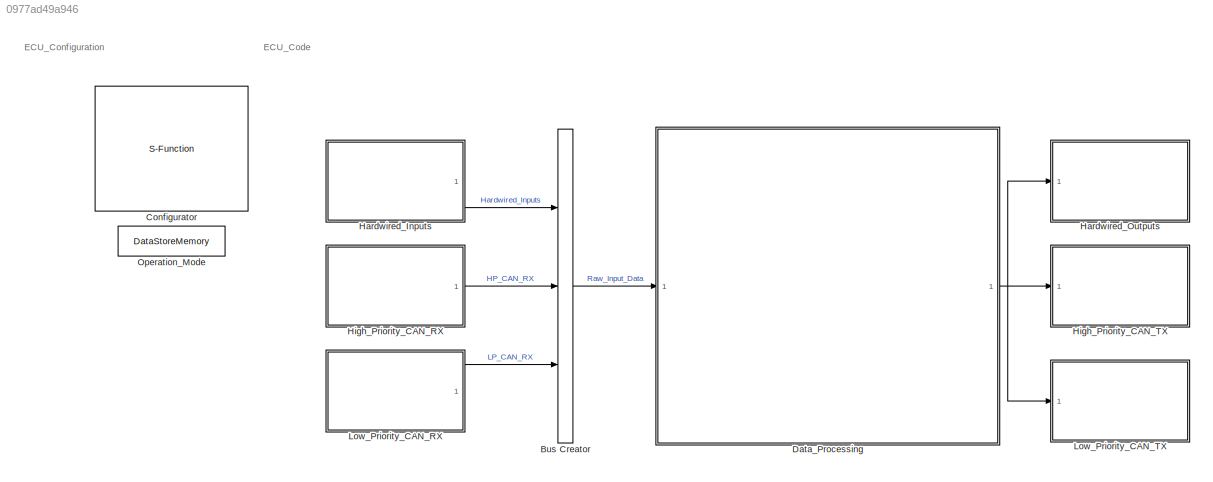
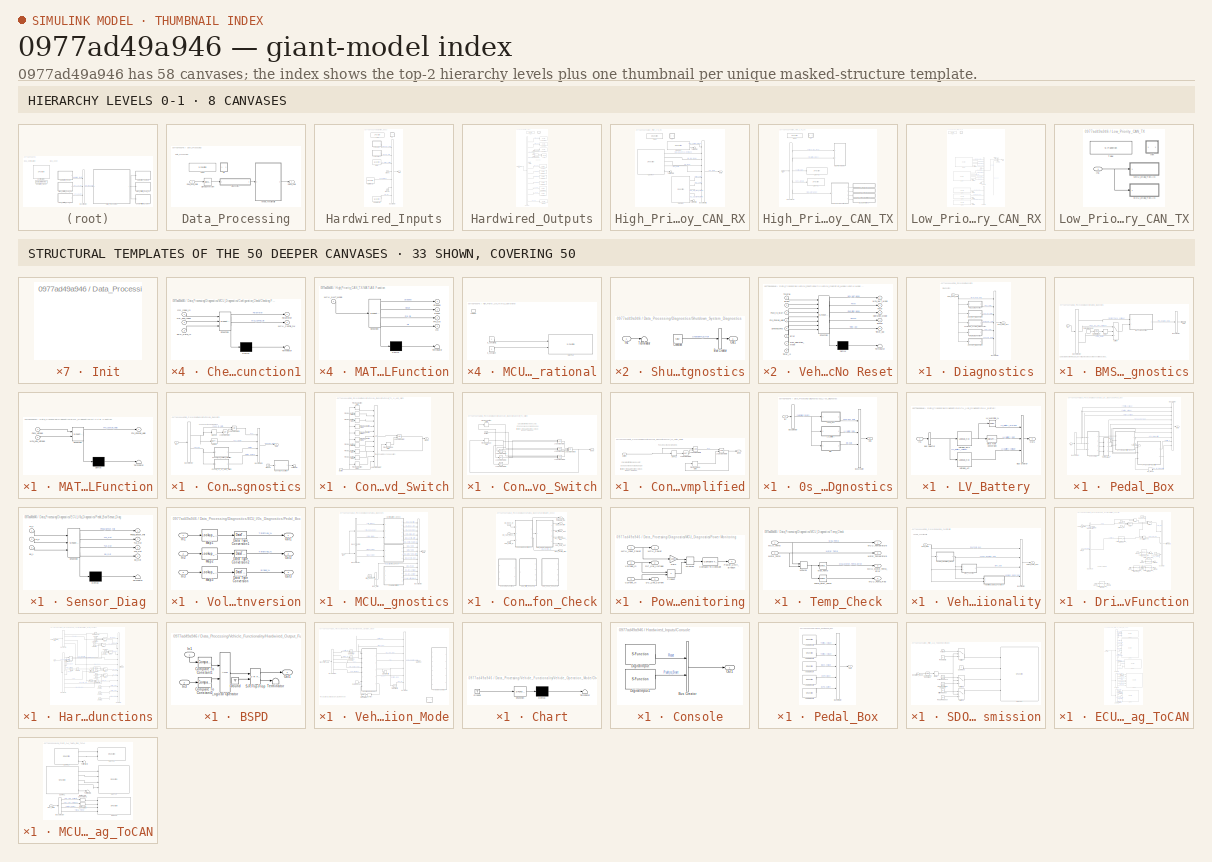
[diagram: thumbnail index - top-2 hierarchy levels (8 canvases) + 33 structural-template representatives of the remaining 50 canvases]
MODEL slx_0977ad49a946
KIND model
CONFIG AbsTol = auto
CONFIG EnableMultiTasking = off
CONFIG FixedStep = 0.0001
CONFIG MaxStep = auto
CONFIG MinStep = auto
CONFIG PostLoadFcn = model_init();
CONFIG RelTol = 1e-3
CONFIG SampleTimeConstraint = Unconstrained
CONFIG Solver = FixedStepDiscrete
CONFIG SolverName = FixedStepDiscrete
CONFIG StartTime = 0.0
CONFIG StopTime = inf
BLOCK [BusCreator] Bus Creator
  DisplayOption = bar
  InheritFromInputs = on
  Inputs = 3
  Ports = [3, 1]
BLOCK [S-Function] Configurator
  EnableBusSupport = off
  FunctionName = NsiSys_Configurator
  OpenFcn = NsiSys_Configurator_OpenFcn();
  Parameters = main,io,nbof_can,can,ccp,flash,nbof_lin,lin,tasks
  Ports = []
  SFcnIsStateOwnerBlock = off
  SFunctionDeploymentMode = off
BLOCK [SubSystem] Data_Processing
  OpenFcn = NsiSys_SubSystemTask_OpenFcn();
  Ports = [1, 1]
  RTWFcnName = Data_Processing
  RTWFcnNameOpts = User specified
  RTWFileName = FileTaskFcn
  RTWFileNameOpts = Use function name
  RTWSystemCode = Nonreusable function
  RequestExecContextInheritance = off
  SystemSampleTime = [0.05]
  TreatAsAtomicUnit = on
  Variant = off
BLOCK [SubSystem] Data_Processing/Diagnostics
  Ports = [1, 1]
  RequestExecContextInheritance = off
  Variant = off
BLOCK [SubSystem] Data_Processing/Diagnostics/BMS_Diagnostics
  Ports = [1, 1]
  RequestExecContextInheritance = off
  Variant = off
BLOCK [BusCreator] Data_Processing/Diagnostics/BMS_Diagnostics/Bus Creator
  DisplayOption = bar
  InheritFromInputs = on
  Inputs = 1
  Ports = [1, 1]
BLOCK [BusSelector] Data_Processing/Diagnostics/BMS_Diagnostics/Bus Selector
  OutputAsBus = off
  OutputSignals = LP_CAN_RX.BMS_Data.Instant_Pack_Voltage,HP_CAN_RX.MCU_DC_Link_Voltage,HP_CAN_RX.SDO_Data
  Ports = [1, 3]
BLOCK [Reference] Data_Processing/Diagnostics/BMS_Diagnostics/Compare To Constant  REF=simulink/Logic and Bit
Operations/Compare
To Constant
  Ports = [1, 1]
  SourceBlock = simulink/Logic and Bit\nOperations/Compare\nTo Constant
  SourceProductBaseCode = SL
  SourceProductName = Simulink
  SourceType = Compare To Constant
BLOCK [DataStoreRead] Data_Processing/Diagnostics/BMS_Diagnostics/Data Store Read
  DataStoreName = O_M
  Ports = [0, 1]
BLOCK [Delay] Data_Processing/Diagnostics/BMS_Diagnostics/Delay
  DelayLength = 10
  InitialCondition = 0
  InputPortMap = u0
  Ports = [1, 1]
BLOCK [Inport] Data_Processing/Diagnostics/BMS_Diagnostics/In1
  IconDisplay = Port number
BLOCK [SubSystem] Data_Processing/Diagnostics/BMS_Diagnostics/MATLAB Function
  ErrorFcn = Stateflow.Translate.translate
  PermitHierarchicalResolution = ExplicitOnly
  Ports = [2, 1]
  RequestExecContextInheritance = off
  SFBlockType = MATLAB Function
  TreatAsAtomicUnit = on
  Variant = off
BLOCK [Demux] Data_Processing/Diagnostics/BMS_Diagnostics/MATLAB Function/ Demux 
  Outputs = 1
  Ports = [1, 1]
BLOCK [S-Function] Data_Processing/Diagnostics/BMS_Diagnostics/MATLAB Function/ SFunction 
  EnableBusSupport = on
  FunctionName = sf_sfun
  PortCounts = [2 2]
  Ports = [2, 2]
  SFcnIsStateOwnerBlock = off
  SFunctionDeploymentMode = off
  Tag = Stateflow S-Function TBRe18_ECU_V7_AI 4
BLOCK [Terminator] Data_Processing/Diagnostics/BMS_Diagnostics/MATLAB Function/ Terminator 
BLOCK [Inport] Data_Processing/Diagnostics/BMS_Diagnostics/MATLAB Function/MCU_Link_Voltage
  IconDisplay = Port number
  Port = 2
BLOCK [Inport] Data_Processing/Diagnostics/BMS_Diagnostics/MATLAB Function/Pack_Voltage
  IconDisplay = Port number
BLOCK [Outport] Data_Processing/Diagnostics/BMS_Diagnostics/MATLAB Function/Pre_Charge_Hold
  IconDisplay = Port number
BLOCK [Outport] Data_Processing/Diagnostics/BMS_Diagnostics/Out1
  IconDisplay = Port number
BLOCK [Switch] Data_Processing/Diagnostics/BMS_Diagnostics/Switch
  Criteria = u2 > Threshold
  InputSameDT = off
  SaturateOnIntegerOverflow = off
BLOCK [BusCreator] Data_Processing/Diagnostics/Bus Creator
  DisplayOption = bar
  InheritFromInputs = on
  Inputs = 7
  Ports = [7, 1]
BLOCK [SubSystem] Data_Processing/Diagnostics/Console_Diagnostics
  Ports = [1, 1]
  RequestExecContextInheritance = off
  Variant = off
BLOCK [BusCreator] Data_Processing/Diagnostics/Console_Diagnostics/Bus Creator1
  DisplayOption = bar
  InheritFromInputs = on
  Inputs = 4
  Ports = [4, 1]
BLOCK [BusSelector] Data_Processing/Diagnostics/Console_Diagnostics/Bus Selector
  OutputAsBus = off
  OutputSignals = Hardwired_Inputs.Console_Data.Push_to_Start,Hardwired_Inputs.Console_Data.Reset
  Ports = [1, 2]
BLOCK [SubSystem] Data_Processing/Diagnostics/Console_Diagnostics/Convert_To_1s_Hold_Switch
  Ports = [1, 1]
  RequestExecContextInheritance = off
  Variant = off
BLOCK [Inport] Data_Processing/Diagnostics/Console_Diagnostics/Convert_To_1s_Hold_Switch/Button
  IconDisplay = Port number
BLOCK [Logic] Data_Processing/Diagnostics/Console_Diagnostics/Convert_To_1s_Hold_Switch/Logical Operator
  AllPortsSameDT = off
  Operator = XOR
  OutDataTypeStr = boolean
  Ports = [2, 1]
BLOCK [Logic] Data_Processing/Diagnostics/Console_Diagnostics/Convert_To_1s_Hold_Switch/Logical Operator7
  AllPortsSameDT = off
  Inputs = 11
  OutDataTypeStr = boolean
  Ports = [11, 1]
BLOCK [Outport] Data_Processing/Diagnostics/Console_Diagnostics/Convert_To_1s_Hold_Switch/Mode
  IconDisplay = Port number
BLOCK [Delay] Data_Processing/Diagnostics/Console_Diagnostics/Convert_To_1s_Hold_Switch/Previous Button State
  DelayLength = 10
  InitialCondition = initPos
  InputPortMap = u0
  Ports = [1, 1]
BLOCK [Delay] Data_Processing/Diagnostics/Console_Diagnostics/Convert_To_1s_Hold_Switch/Previous Button State1
  DelayLength = 9
  InitialCondition = initPos
  InputPortMap = u0
  Ports = [1, 1]
BLOCK [Delay] Data_Processing/Diagnostics/Console_Diagnostics/Convert_To_1s_Hold_Switch/Previous Button State2
  DelayLength = 8
  InitialCondition = initPos
  InputPortMap = u0
  Ports = [1, 1]
BLOCK [Delay] Data_Processing/Diagnostics/Console_Diagnostics/Convert_To_1s_Hold_Switch/Previous Button State3
  DelayLength = 7
  InitialCondition = initPos
  InputPortMap = u0
  Ports = [1, 1]
BLOCK [Delay] Data_Processing/Diagnostics/Console_Diagnostics/Convert_To_1s_Hold_Switch/Previous Button State4
  DelayLength = 6
  InitialCondition = initPos
  InputPortMap = u0
  Ports = [1, 1]
BLOCK [Delay] Data_Processing/Diagnostics/Console_Diagnostics/Convert_To_1s_Hold_Switch/Previous Button State5
  DelayLength = 5
  InitialCondition = initPos
  InputPortMap = u0
  Ports = [1, 1]
BLOCK [Delay] Data_Processing/Diagnostics/Console_Diagnostics/Convert_To_1s_Hold_Switch/Previous Button State6
  DelayLength = 4
  InitialCondition = initPos
  InputPortMap = u0
  Ports = [1, 1]
BLOCK [Delay] Data_Processing/Diagnostics/Console_Diagnostics/Convert_To_1s_Hold_Switch/Previous Button State7
  DelayLength = 3
  InitialCondition = initPos
  InputPortMap = u0
  Ports = [1, 1]
BLOCK [Delay] Data_Processing/Diagnostics/Console_Diagnostics/Convert_To_1s_Hold_Switch/Previous Button State8
  InitialCondition = initPos
  InputPortMap = u0
  Ports = [1, 1]
BLOCK [Delay] Data_Processing/Diagnostics/Console_Diagnostics/Convert_To_1s_Hold_Switch/Previous Button State9
  DelayLength = 1
  InitialCondition = initPos
  InputPortMap = u0
  Ports = [1, 1]
BLOCK [Delay] Data_Processing/Diagnostics/Console_Diagnostics/Convert_To_1s_Hold_Switch/Previous Mode State
  DelayLength = 1
  InitialCondition = false
  InputPortMap = u0
  Ports = [1, 1]
BLOCK [SubSystem] Data_Processing/Diagnostics/Console_Diagnostics/Convert_To_Switch
  Ports = [1, 1]
  RequestExecContextInheritance = off
  Variant = off
BLOCK [Inport] Data_Processing/Diagnostics/Console_Diagnostics/Convert_To_Switch/Button
  IconDisplay = Port number
BLOCK [Logic] Data_Processing/Diagnostics/Console_Diagnostics/Convert_To_Switch/Logical Operator
  AllPortsSameDT = off
  OutDataTypeStr = boolean
  Ports = [2, 1]
BLOCK [Logic] Data_Processing/Diagnostics/Console_Diagnostics/Convert_To_Switch/Logical Operator1
  AllPortsSameDT = off
  OutDataTypeStr = boolean
  Ports = [2, 1]
BLOCK [Logic] Data_Processing/Diagnostics/Console_Diagnostics/Convert_To_Switch/Logical Operator2
  AllPortsSameDT = off
  Inputs = 3
  OutDataTypeStr = boolean
  Ports = [3, 1]
BLOCK [Logic] Data_Processing/Diagnostics/Console_Diagnostics/Convert_To_Switch/Logical Operator3
  AllPortsSameDT = off
  Inputs = 3
  Operator = OR
  OutDataTypeStr = boolean
  Ports = [3, 1]
BLOCK [Logic] Data_Processing/Diagnostics/Console_Diagnostics/Convert_To_Switch/Logical Operator4
  AllPortsSameDT = off
  Operator = NOT
  OutDataTypeStr = boolean
  Ports = [1, 1]
BLOCK [Logic] Data_Processing/Diagnostics/Console_Diagnostics/Convert_To_Switch/Logical Operator5
  AllPortsSameDT = off
  Operator = NOT
  OutDataTypeStr = boolean
  Ports = [1, 1]
BLOCK [Logic] Data_Processing/Diagnostics/Console_Diagnostics/Convert_To_Switch/Logical Operator6
  AllPortsSameDT = off
  Operator = NOT
  OutDataTypeStr = boolean
  Ports = [1, 1]
BLOCK [Outport] Data_Processing/Diagnostics/Console_Diagnostics/Convert_To_Switch/Mode
  IconDisplay = Port number
BLOCK [Delay] Data_Processing/Diagnostics/Console_Diagnostics/Convert_To_Switch/Previous Button State
  DelayLength = 1
  InitialCondition = false
  InputPortMap = u0
  Ports = [1, 1]
BLOCK [Delay] Data_Processing/Diagnostics/Console_Diagnostics/Convert_To_Switch/Previous Mode State
  DelayLength = 1
  InitialCondition = initPos
  InputPortMap = u0
  Ports = [1, 1]
BLOCK [SubSystem] Data_Processing/Diagnostics/Console_Diagnostics/Convert_To_Switch_Simplified
  Ports = [1, 1]
  RequestExecContextInheritance = off
  Variant = off
BLOCK [Inport] Data_Processing/Diagnostics/Console_Diagnostics/Convert_To_Switch_Simplified/Button
  IconDisplay = Port number
BLOCK [Logic] Data_Processing/Diagnostics/Console_Diagnostics/Convert_To_Switch_Simplified/Logical Operator7
  AllPortsSameDT = off
  Operator = NOT
  OutDataTypeStr = boolean
  Ports = [1, 1]
BLOCK [Logic] Data_Processing/Diagnostics/Console_Diagnostics/Convert_To_Switch_Simplified/Logical Operator8
  AllPortsSameDT = off
  OutDataTypeStr = boolean
  Ports = [2, 1]
BLOCK [Logic] Data_Processing/Diagnostics/Console_Diagnostics/Convert_To_Switch_Simplified/Logical Operator9
  AllPortsSameDT = off
  Operator = XOR
  OutDataTypeStr = boolean
  Ports = [2, 1]
BLOCK [Outport] Data_Processing/Diagnostics/Console_Diagnostics/Convert_To_Switch_Simplified/Mode
  IconDisplay = Port number
BLOCK [Delay] Data_Processing/Diagnostics/Console_Diagnostics/Convert_To_Switch_Simplified/Previous Mode State
  DelayLength = 1
  InitialCondition = initPos
  InputPortMap = u0
  Ports = [1, 1]
BLOCK [Delay] Data_Processing/Diagnostics/Console_Diagnostics/Convert_To_Switch_Simplified/prvP2S
  DelayLength = 1
  InitialCondition = 0
  InputPortMap = u0
  Ports = [1, 1]
BLOCK [Ground] Data_Processing/Diagnostics/Console_Diagnostics/Ground
BLOCK [Inport] Data_Processing/Diagnostics/Console_Diagnostics/In1
  IconDisplay = Port number
BLOCK [Logic] Data_Processing/Diagnostics/Console_Diagnostics/Logical Operator
  AllPortsSameDT = off
  Operator = NOT
  OutDataTypeStr = boolean
  Ports = [1, 1]
BLOCK [Logic] Data_Processing/Diagnostics/Console_Diagnostics/Logical Operator1
  AllPortsSameDT = off
  OutDataTypeStr = boolean
  Ports = [2, 1]
BLOCK [DataTypeConversion] Data_Processing/Diagnostics/Console_Diagnostics/Nothing
  RndMeth = Floor
  SaturateOnIntegerOverflow = off
BLOCK [Outport] Data_Processing/Diagnostics/Console_Diagnostics/Out1
  IconDisplay = Port number
BLOCK [Terminator] Data_Processing/Diagnostics/Console_Diagnostics/Terminator
BLOCK [Delay] Data_Processing/Diagnostics/Console_Diagnostics/prvP2S
  DelayLength = 1
  InitialCondition = 0
  InputPortMap = u0
  Ports = [1, 1]
BLOCK [SubSystem] Data_Processing/Diagnostics/ECU_I//0s_Diagnostics
  Ports = [1, 1]
  RequestExecContextInheritance = off
  Variant = off
BLOCK [BusCreator] Data_Processing/Diagnostics/ECU_I//0s_Diagnostics/Bus Creator
  DisplayOption = bar
  InheritFromInputs = on
  Inputs = 4
  Ports = [4, 1]
BLOCK [BusSelector] Data_Processing/Diagnostics/ECU_I//0s_Diagnostics/Bus Selector
  OutputAsBus = off
  OutputSignals = Hardwired_Inputs
  Ports = [1, 1]
BLOCK [SubSystem] Data_Processing/Diagnostics/ECU_I//0s_Diagnostics/IMD
  Ports = [1, 1]
  RequestExecContextInheritance = off
  Variant = off
BLOCK [BusCreator] Data_Processing/Diagnostics/ECU_I//0s_Diagnostics/IMD/Bus Creator
  DisplayOption = bar
  InheritFromInputs = on
  Inputs = 1
  Ports = [1, 1]
BLOCK [Constant] Data_Processing/Diagnostics/ECU_I//0s_Diagnostics/IMD/Constant
  Value = false
BLOCK [Inport] Data_Processing/Diagnostics/ECU_I//0s_Diagnostics/IMD/In1
  IconDisplay = Port number
BLOCK [Outport] Data_Processing/Diagnostics/ECU_I//0s_Diagnostics/IMD/Out1
  IconDisplay = Port number
BLOCK [Terminator] Data_Processing/Diagnostics/ECU_I//0s_Diagnostics/IMD/Terminator
BLOCK [Inport] Data_Processing/Diagnostics/ECU_I//0s_Diagnostics/In1
  IconDisplay = Port number
BLOCK [SubSystem] Data_Processing/Diagnostics/ECU_I//0s_Diagnostics/LV_Battery
  Ports = [1, 1]
  RequestExecContextInheritance = off
  Variant = off
BLOCK [BusCreator] Data_Processing/Diagnostics/ECU_I//0s_Diagnostics/LV_Battery/Bus Creator
  DisplayOption = bar
  InheritFromInputs = on
  Inputs = 3
  Ports = [3, 1]
BLOCK [BusSelector] Data_Processing/Diagnostics/ECU_I//0s_Diagnostics/LV_Battery/Bus Selector
  OutputAsBus = off
  OutputSignals = LV_Battery_Voltage
  Ports = [1, 1]
BLOCK [DataTypeConversion] Data_Processing/Diagnostics/ECU_I//0s_Diagnostics/LV_Battery/Data Type Conversion
  OutDataTypeStr = uint8
  RndMeth = Floor
  SaturateOnIntegerOverflow = off
BLOCK [Inport] Data_Processing/Diagnostics/ECU_I//0s_Diagnostics/LV_Battery/In1
  IconDisplay = Port number
BLOCK [Reference] Data_Processing/Diagnostics/ECU_I//0s_Diagnostics/LV_Battery/LV_Warning_%  REF=simulink/Logic and Bit
Operations/Compare
To Constant
  Ports = [1, 1]
  SourceBlock = simulink/Logic and Bit\nOperations/Compare\nTo Constant
  SourceProductBaseCode = SL
  SourceProductName = Simulink
  SourceType = Compare To Constant
BLOCK [Outport] Data_Processing/Diagnostics/ECU_I//0s_Diagnostics/LV_Battery/Out1
  IconDisplay = Port number
BLOCK [Lookup_n-D] Data_Processing/Diagnostics/ECU_I//0s_Diagnostics/LV_Battery/Voltage_Act
  BreakpointsForDimension1 = [0,20000]
  ExtrapMethod = Clip
  InternalRulePriority = Speed
  NumberOfTableDimensions = 1
  Ports = [1, 1]
  RndMeth = Simplest
  Table = [500,33000]
  TableDataTypeStr = Inherit: Inherit from 'Table data'
  UseLastTableValue = on
BLOCK [Lookup_n-D] Data_Processing/Diagnostics/ECU_I//0s_Diagnostics/LV_Battery/Voltage_SOC 
  BreakpointsForDimension1 = [1600, 24000, 25800, 26000, 26400]
  ExtrapMethod = Clip
  InternalRulePriority = Speed
  NumberOfTableDimensions = 1
  Ports = [1, 1]
  RndMeth = Simplest
  Table = [0, 10, 20, 50, 100]
  TableDataTypeStr = Inherit: Inherit from 'Table data'
  UseLastTableValue = on
BLOCK [Outport] Data_Processing/Diagnostics/ECU_I//0s_Diagnostics/Out1
  IconDisplay = Port number
BLOCK [SubSystem] Data_Processing/Diagnostics/ECU_I//0s_Diagnostics/Pedal_Box
  Ports = [1, 1]
  RequestExecContextInheritance = off
  Variant = off
BLOCK [SubSystem] Data_Processing/Diagnostics/ECU_I//0s_Diagnostics/Pedal_Box/APPS and BP Plausibility
  ErrorFcn = Stateflow.Translate.translate
  PermitHierarchicalResolution = ExplicitOnly
  Ports = [3, 2]
  RequestExecContextInheritance = off
  SFBlockType = MATLAB Function
  TreatAsAtomicUnit = on
  Variant = off
BLOCK [Demux] Data_Processing/Diagnostics/ECU_I//0s_Diagnostics/Pedal_Box/APPS and BP Plausibility/ Demux 
  Outputs = 1
  Ports = [1, 1]
BLOCK [S-Function] Data_Processing/Diagnostics/ECU_I//0s_Diagnostics/Pedal_Box/APPS and BP Plausibility/ SFunction 
  EnableBusSupport = on
  FunctionName = sf_sfun
  PortCounts = [3 3]
  Ports = [3, 3]
  SFcnIsStateOwnerBlock = off
  SFunctionDeploymentMode = off
  Tag = Stateflow S-Function TBRe18_ECU_V7_AI 13
BLOCK [Terminator] Data_Processing/Diagnostics/ECU_I//0s_Diagnostics/Pedal_Box/APPS and BP Plausibility/ Terminator 
BLOCK [Outport] Data_Processing/Diagnostics/ECU_I//0s_Diagnostics/Pedal_Box/APPS and BP Plausibility/APPS_BP_Implausibility
  IconDisplay = Port number
  Port = 2
BLOCK [Inport] Data_Processing/Diagnostics/ECU_I//0s_Diagnostics/Pedal_Box/APPS and BP Plausibility/APPS_BP_Implausibility_Prv
  IconDisplay = Port number
  Port = 3
BLOCK [Inport] Data_Processing/Diagnostics/ECU_I//0s_Diagnostics/Pedal_Box/APPS and BP Plausibility/Brake_In
  IconDisplay = Port number
  Port = 2
BLOCK [Inport] Data_Processing/Diagnostics/ECU_I//0s_Diagnostics/Pedal_Box/APPS and BP Plausibility/Throttle_In
  IconDisplay = Port number
BLOCK [Outport] Data_Processing/Diagnostics/ECU_I//0s_Diagnostics/Pedal_Box/APPS and BP Plausibility/Throttle_Percentage
  IconDisplay = Port number
BLOCK [SubSystem] Data_Processing/Diagnostics/ECU_I//0s_Diagnostics/Pedal_Box/APPS_Implausibility_Check
  ErrorFcn = Stateflow.Translate.translate
  PermitHierarchicalResolution = ExplicitOnly
  Ports = [3, 2]
  RequestExecContextInheritance = off
  SFBlockType = MATLAB Function
  TreatAsAtomicUnit = on
  Variant = off
BLOCK [Demux] Data_Processing/Diagnostics/ECU_I//0s_Diagnostics/Pedal_Box/APPS_Implausibility_Check/ Demux 
  Outputs = 1
  Ports = [1, 1]
BLOCK [S-Function] Data_Processing/Diagnostics/ECU_I//0s_Diagnostics/Pedal_Box/APPS_Implausibility_Check/ SFunction 
  EnableBusSupport = on
  FunctionName = sf_sfun
  PortCounts = [3 3]
  Ports = [3, 3]
  SFcnIsStateOwnerBlock = off
  SFunctionDeploymentMode = off
  Tag = Stateflow S-Function TBRe18_ECU_V7_AI 12
BLOCK [Terminator] Data_Processing/Diagnostics/ECU_I//0s_Diagnostics/Pedal_Box/APPS_Implausibility_Check/ Terminator 
BLOCK [Outport] Data_Processing/Diagnostics/ECU_I//0s_Diagnostics/Pedal_Box/APPS_Implausibility_Check/APPS_Implausbility
  IconDisplay = Port number
BLOCK [Inport] Data_Processing/Diagnostics/ECU_I//0s_Diagnostics/Pedal_Box/APPS_Implausibility_Check/Pedal_Sensor_Fail
  IconDisplay = Port number
BLOCK [Inport] Data_Processing/Diagnostics/ECU_I//0s_Diagnostics/Pedal_Box/APPS_Implausibility_Check/Throttle1_Per
  IconDisplay = Port number
  Port = 2
BLOCK [Inport] Data_Processing/Diagnostics/ECU_I//0s_Diagnostics/Pedal_Box/APPS_Implausibility_Check/Throttle2_Per
  IconDisplay = Port number
  Port = 3
BLOCK [Outport] Data_Processing/Diagnostics/ECU_I//0s_Diagnostics/Pedal_Box/APPS_Implausibility_Check/Throttle_Percentage
  IconDisplay = Port number
  Port = 2
BLOCK [BusCreator] Data_Processing/Diagnostics/ECU_I//0s_Diagnostics/Pedal_Box/Bus Creator
  DisplayOption = bar
  InheritFromInputs = on
  Inputs = 10
  Ports = [10, 1]
BLOCK [BusSelector] Data_Processing/Diagnostics/ECU_I//0s_Diagnostics/Pedal_Box/Bus Selector
  OutputAsBus = off
  OutputSignals = Pedal_Box_Data.Throttle1_Voltage,Pedal_Box_Data.Throttle2_Voltage,Pedal_Box_Data.Brake_Voltage
  Ports = [1, 3]
BLOCK [Ground] Data_Processing/Diagnostics/ECU_I//0s_Diagnostics/Pedal_Box/Ground
BLOCK [Inport] Data_Processing/Diagnostics/ECU_I//0s_Diagnostics/Pedal_Box/In1
  IconDisplay = Port number
BLOCK [Outport] Data_Processing/Diagnostics/ECU_I//0s_Diagnostics/Pedal_Box/Out1
  IconDisplay = Port number
BLOCK [SubSystem] Data_Processing/Diagnostics/ECU_I//0s_Diagnostics/Pedal_Box/Sensor_Diag
  ErrorFcn = Stateflow.Translate.translate
  PermitHierarchicalResolution = ExplicitOnly
  Ports = [3, 4]
  RequestExecContextInheritance = off
  SFBlockType = MATLAB Function
  TreatAsAtomicUnit = on
  Variant = off
BLOCK [Demux] Data_Processing/Diagnostics/ECU_I//0s_Diagnostics/Pedal_Box/Sensor_Diag/ Demux 
  Outputs = 1
  Ports = [1, 1]
BLOCK [S-Function] Data_Processing/Diagnostics/ECU_I//0s_Diagnostics/Pedal_Box/Sensor_Diag/ SFunction 
  EnableBusSupport = on
  FunctionName = sf_sfun
  PortCounts = [3 5]
  Ports = [3, 5]
  SFcnIsStateOwnerBlock = off
  SFunctionDeploymentMode = off
  Tag = Stateflow S-Function TBRe18_ECU_V7_AI 11
BLOCK [Terminator] Data_Processing/Diagnostics/ECU_I//0s_Diagnostics/Pedal_Box/Sensor_Diag/ Terminator 
BLOCK [Inport] Data_Processing/Diagnostics/ECU_I//0s_Diagnostics/Pedal_Box/Sensor_Diag/BV_1
  IconDisplay = Port number
  Port = 3
BLOCK [Outport] Data_Processing/Diagnostics/ECU_I//0s_Diagnostics/Pedal_Box/Sensor_Diag/BV_Out
  IconDisplay = Port number
  Port = 4
BLOCK [Outport] Data_Processing/Diagnostics/ECU_I//0s_Diagnostics/Pedal_Box/Sensor_Diag/Pedal_Sensor_Fail
  IconDisplay = Port number
BLOCK [Outport] Data_Processing/Diagnostics/ECU_I//0s_Diagnostics/Pedal_Box/Sensor_Diag/TV1_Out
  IconDisplay = Port number
  Port = 2
BLOCK [Outport] Data_Processing/Diagnostics/ECU_I//0s_Diagnostics/Pedal_Box/Sensor_Diag/TV2_Out
  IconDisplay = Port number
  Port = 3
BLOCK [Inport] Data_Processing/Diagnostics/ECU_I//0s_Diagnostics/Pedal_Box/Sensor_Diag/TV_1
  IconDisplay = Port number
BLOCK [Inport] Data_Processing/Diagnostics/ECU_I//0s_Diagnostics/Pedal_Box/Sensor_Diag/TV_2
  IconDisplay = Port number
  Port = 2
BLOCK [Terminator] Data_Processing/Diagnostics/ECU_I//0s_Diagnostics/Pedal_Box/Terminator
BLOCK [SubSystem] Data_Processing/Diagnostics/ECU_I//0s_Diagnostics/Pedal_Box/Voltage_to_% Conversion
  Ports = [3, 3]
  RequestExecContextInheritance = off
  Variant = off
BLOCK [DataTypeConversion] Data_Processing/Diagnostics/ECU_I//0s_Diagnostics/Pedal_Box/Voltage_to_% Conversion/Data Type Conversion
  OutDataTypeStr = uint8
  RndMeth = Floor
  SaturateOnIntegerOverflow = off
BLOCK [DataTypeConversion] Data_Processing/Diagnostics/ECU_I//0s_Diagnostics/Pedal_Box/Voltage_to_% Conversion/Data Type Conversion1
  OutDataTypeStr = uint8
  RndMeth = Floor
  SaturateOnIntegerOverflow = off
BLOCK [DataTypeConversion] Data_Processing/Diagnostics/ECU_I//0s_Diagnostics/Pedal_Box/Voltage_to_% Conversion/Data Type Conversion2
  OutDataTypeStr = uint8
  RndMeth = Floor
  SaturateOnIntegerOverflow = off
BLOCK [Inport] Data_Processing/Diagnostics/ECU_I//0s_Diagnostics/Pedal_Box/Voltage_to_% Conversion/In1
  IconDisplay = Port number
BLOCK [Inport] Data_Processing/Diagnostics/ECU_I//0s_Diagnostics/Pedal_Box/Voltage_to_% Conversion/In2
  IconDisplay = Port number
  Port = 2
BLOCK [Inport] Data_Processing/Diagnostics/ECU_I//0s_Diagnostics/Pedal_Box/Voltage_to_% Conversion/In3
  IconDisplay = Port number
  Port = 3
BLOCK [Lookup_n-D] Data_Processing/Diagnostics/ECU_I//0s_Diagnostics/Pedal_Box/Voltage_to_% Conversion/Map1
  BreakpointsForDimension1 = [5170,6500]
  ExtrapMethod = Clip
  InternalRulePriority = Speed
  NumberOfTableDimensions = 1
  Ports = [1, 1]
  RndMeth = Simplest
  Table = [0,100]
  UseLastTableValue = on
BLOCK [Lookup_n-D] Data_Processing/Diagnostics/ECU_I//0s_Diagnostics/Pedal_Box/Voltage_to_% Conversion/Map2
  BreakpointsForDimension1 = [6500,8000]
  ExtrapMethod = Clip
  InternalRulePriority = Speed
  NumberOfTableDimensions = 1
  Ports = [1, 1]
  RndMeth = Simplest
  Table = [0,100]
  UseLastTableValue = on
BLOCK [Lookup_n-D] Data_Processing/Diagnostics/ECU_I//0s_Diagnostics/Pedal_Box/Voltage_to_% Conversion/Map3
  BreakpointsForDimension1 = [1300,5600]
  ExtrapMethod = Clip
  InternalRulePriority = Speed
  NumberOfTableDimensions = 1
  Ports = [1, 1]
  RndMeth = Simplest
  Table = [0,100]
  UseLastTableValue = on
BLOCK [Outport] Data_Processing/Diagnostics/ECU_I//0s_Diagnostics/Pedal_Box/Voltage_to_% Conversion/Out1
  IconDisplay = Port number
BLOCK [Outport] Data_Processing/Diagnostics/ECU_I//0s_Diagnostics/Pedal_Box/Voltage_to_% Conversion/Out2
  IconDisplay = Port number
  Port = 2
BLOCK [Outport] Data_Processing/Diagnostics/ECU_I//0s_Diagnostics/Pedal_Box/Voltage_to_% Conversion/Out3
  IconDisplay = Port number
  Port = 3
BLOCK [Delay] Data_Processing/Diagnostics/ECU_I//0s_Diagnostics/Pedal_Box/prv_BSPD
  DelayLength = 1
  InitialCondition = 0
  InputPortMap = u0
  Ports = [1, 1]
BLOCK [Outport] Data_Processing/Diagnostics/Input_Data_Bus
  IconDisplay = Port number
BLOCK [SubSystem] Data_Processing/Diagnostics/MCU_Diagnostics
  Ports = [1, 1]
  RequestExecContextInheritance = off
  Variant = off
BLOCK [BusCreator] Data_Processing/Diagnostics/MCU_Diagnostics/Bus Creator
  DisplayOption = bar
  InheritFromInputs = on
  Inputs = 15
  Ports = [15, 1]
BLOCK [BusSelector] Data_Processing/Diagnostics/MCU_Diagnostics/Bus Selector
  OutputAsBus = off
  OutputSignals = HP_CAN_RX.Motor_Temp,HP_CAN_RX.MCU_Temp
  Ports = [1, 2]
BLOCK [BusSelector] Data_Processing/Diagnostics/MCU_Diagnostics/Bus Selector1
  OutputAsBus = off
  OutputSignals = HP_CAN_RX.OD_Index,HP_CAN_RX.OD_Sub_Index,HP_CAN_RX.SDO_Data
  Ports = [1, 3]
BLOCK [SubSystem] Data_Processing/Diagnostics/MCU_Diagnostics/Configuration_Check
  Commented = on
  Ports = [3, 6]
  RequestExecContextInheritance = off
  Variant = off
BLOCK [SubSystem] Data_Processing/Diagnostics/MCU_Diagnostics/Configuration_Check/Checking Function1
  Commented = on
  ErrorFcn = Stateflow.Translate.translate
  PermitHierarchicalResolution = ExplicitOnly
  Ports = [3, 2]
  RequestExecContextInheritance = off
  SFBlockType = MATLAB Function
  TreatAsAtomicUnit = on
  Variant = off
BLOCK [Demux] Data_Processing/Diagnostics/MCU_Diagnostics/Configuration_Check/Checking Function1/ Demux 
  Outputs = 1
  Ports = [1, 1]
BLOCK [S-Function] Data_Processing/Diagnostics/MCU_Diagnostics/Configuration_Check/Checking Function1/ SFunction 
  EnableBusSupport = on
  FunctionName = sf_sfun
  PortCounts = [3 3]
  Ports = [3, 3]
  SFcnIsStateOwnerBlock = off
  SFunctionDeploymentMode = off
  Tag = Stateflow S-Function TBRe18_ECU_V7_AI 5
BLOCK [Terminator] Data_Processing/Diagnostics/MCU_Diagnostics/Configuration_Check/Checking Function1/ Terminator 
BLOCK [Outport] Data_Processing/Diagnostics/MCU_Diagnostics/Configuration_Check/Checking Function1/MCU_Config_Ok
  IconDisplay = Port number
  Port = 2
BLOCK [Inport] Data_Processing/Diagnostics/MCU_Diagnostics/Configuration_Check/Checking Function1/OD_Index_In
  IconDisplay = Port number
BLOCK [Inport] Data_Processing/Diagnostics/MCU_Diagnostics/Configuration_Check/Checking Function1/OD_Sub_Index
  IconDisplay = Port number
  Port = 2
BLOCK [Outport] Data_Processing/Diagnostics/MCU_Diagnostics/Configuration_Check/Checking Function1/Parameter
  IconDisplay = Port number
BLOCK [Inport] Data_Processing/Diagnostics/MCU_Diagnostics/Configuration_Check/Checking Function1/SDO_Data_In
  IconDisplay = Port number
  Port = 3
BLOCK [SubSystem] Data_Processing/Diagnostics/MCU_Diagnostics/Configuration_Check/Checking Function2
  ErrorFcn = Stateflow.Translate.translate
  PermitHierarchicalResolution = ExplicitOnly
  Ports = [3, 2]
  RequestExecContextInheritance = off
  SFBlockType = MATLAB Function
  TreatAsAtomicUnit = on
  Variant = off
BLOCK [Demux] Data_Processing/Diagnostics/MCU_Diagnostics/Configuration_Check/Checking Function2/ Demux 
  Outputs = 1
  Ports = [1, 1]
BLOCK [S-Function] Data_Processing/Diagnostics/MCU_Diagnostics/Configuration_Check/Checking Function2/ SFunction 
  EnableBusSupport = on
  FunctionName = sf_sfun
  PortCounts = [3 3]
  Ports = [3, 3]
  SFcnIsStateOwnerBlock = off
  SFunctionDeploymentMode = off
  Tag = Stateflow S-Function TBRe18_ECU_V7_AI 8
BLOCK [Terminator] Data_Processing/Diagnostics/MCU_Diagnostics/Configuration_Check/Checking Function2/ Terminator 
BLOCK [Outport] Data_Processing/Diagnostics/MCU_Diagnostics/Configuration_Check/Checking Function2/MCU_Config_Error
  IconDisplay = Port number
  Port = 2
BLOCK [Inport] Data_Processing/Diagnostics/MCU_Diagnostics/Configuration_Check/Checking Function2/OD_Index
  IconDisplay = Port number
BLOCK [Inport] Data_Processing/Diagnostics/MCU_Diagnostics/Configuration_Check/Checking Function2/OD_Sub_Index
  IconDisplay = Port number
  Port = 2
BLOCK [Outport] Data_Processing/Diagnostics/MCU_Diagnostics/Configuration_Check/Checking Function2/Parameter
  IconDisplay = Port number
BLOCK [Inport] Data_Processing/Diagnostics/MCU_Diagnostics/Configuration_Check/Checking Function2/SDO_Data
  IconDisplay = Port number
  Port = 3
BLOCK [Outport] Data_Processing/Diagnostics/MCU_Diagnostics/Configuration_Check/MCU_Config_Error
  IconDisplay = Port number
  Port = 5
BLOCK [Outport] Data_Processing/Diagnostics/MCU_Diagnostics/Configuration_Check/MCU_Config_Parameter_No
  IconDisplay = Port number
  Port = 6
BLOCK [Inport] Data_Processing/Diagnostics/MCU_Diagnostics/Configuration_Check/OD_Index_In
  IconDisplay = Port number
BLOCK [Outport] Data_Processing/Diagnostics/MCU_Diagnostics/Configuration_Check/OD_Index_Out
  IconDisplay = Port number
  Port = 2
BLOCK [Inport] Data_Processing/Diagnostics/MCU_Diagnostics/Configuration_Check/OD_Sub_Index_In
  IconDisplay = Port number
  Port = 2
BLOCK [Outport] Data_Processing/Diagnostics/MCU_Diagnostics/Configuration_Check/OD_Sub_Index_Out
  IconDisplay = Port number
  Port = 3
BLOCK [Inport] Data_Processing/Diagnostics/MCU_Diagnostics/Configuration_Check/SDO_Data_In
  IconDisplay = Port number
  Port = 3
BLOCK [Outport] Data_Processing/Diagnostics/MCU_Diagnostics/Configuration_Check/SDO_Data_Out
  IconDisplay = Port number
  Port = 4
BLOCK [SubSystem] Data_Processing/Diagnostics/MCU_Diagnostics/Configuration_Check/SDO_Read_Request
  ErrorFcn = Stateflow.Translate.translate
  PermitHierarchicalResolution = ExplicitOnly
  Ports = [1, 4]
  RequestExecContextInheritance = off
  SFBlockType = MATLAB Function
  TreatAsAtomicUnit = on
  Variant = off
BLOCK [Demux] Data_Processing/Diagnostics/MCU_Diagnostics/Configuration_Check/SDO_Read_Request/ Demux 
  Outputs = 1
  Ports = [1, 1]
BLOCK [S-Function] Data_Processing/Diagnostics/MCU_Diagnostics/Configuration_Check/SDO_Read_Request/ SFunction 
  EnableBusSupport = on
  FunctionName = sf_sfun
  PortCounts = [1 5]
  Ports = [1, 5]
  SFcnIsStateOwnerBlock = off
  SFunctionDeploymentMode = off
  Tag = Stateflow S-Function TBRe18_ECU_V7_AI 7
BLOCK [Terminator] Data_Processing/Diagnostics/MCU_Diagnostics/Configuration_Check/SDO_Read_Request/ Terminator 
BLOCK [Outport] Data_Processing/Diagnostics/MCU_Diagnostics/Configuration_Check/SDO_Read_Request/OD_Index_Out
  IconDisplay = Port number
  Port = 2
BLOCK [Outport] Data_Processing/Diagnostics/MCU_Diagnostics/Configuration_Check/SDO_Read_Request/OD_Sub_Index_Out
  IconDisplay = Port number
  Port = 3
BLOCK [Inport] Data_Processing/Diagnostics/MCU_Diagnostics/Configuration_Check/SDO_Read_Request/Parameter
  IconDisplay = Port number
BLOCK [Outport] Data_Processing/Diagnostics/MCU_Diagnostics/Configuration_Check/SDO_Read_Request/SDO_Data_Out
  IconDisplay = Port number
  Port = 4
BLOCK [Outport] Data_Processing/Diagnostics/MCU_Diagnostics/Configuration_Check/SDO_Read_Request/SDO_Specifier
  IconDisplay = Port number
BLOCK [SubSystem] Data_Processing/Diagnostics/MCU_Diagnostics/Configuration_Check/SDO_Read_Request1
  Commented = on
  ErrorFcn = Stateflow.Translate.translate
  PermitHierarchicalResolution = ExplicitOnly
  Ports = [1, 4]
  RequestExecContextInheritance = off
  SFBlockType = MATLAB Function
  TreatAsAtomicUnit = on
  Variant = off
BLOCK [Demux] Data_Processing/Diagnostics/MCU_Diagnostics/Configuration_Check/SDO_Read_Request1/ Demux 
  Outputs = 1
  Ports = [1, 1]
BLOCK [S-Function] Data_Processing/Diagnostics/MCU_Diagnostics/Configuration_Check/SDO_Read_Request1/ SFunction 
  EnableBusSupport = on
  FunctionName = sf_sfun
  PortCounts = [1 5]
  Ports = [1, 5]
  SFcnIsStateOwnerBlock = off
  SFunctionDeploymentMode = off
  Tag = Stateflow S-Function TBRe18_ECU_V7_AI 9
BLOCK [Terminator] Data_Processing/Diagnostics/MCU_Diagnostics/Configuration_Check/SDO_Read_Request1/ Terminator 
BLOCK [Outport] Data_Processing/Diagnostics/MCU_Diagnostics/Configuration_Check/SDO_Read_Request1/OD_Index_Out
  IconDisplay = Port number
  Port = 2
BLOCK [Outport] Data_Processing/Diagnostics/MCU_Diagnostics/Configuration_Check/SDO_Read_Request1/OD_Sub_Index_Out
  IconDisplay = Port number
  Port = 3
BLOCK [Inport] Data_Processing/Diagnostics/MCU_Diagnostics/Configuration_Check/SDO_Read_Request1/Parameter
  IconDisplay = Port number
BLOCK [Outport] Data_Processing/Diagnostics/MCU_Diagnostics/Configuration_Check/SDO_Read_Request1/SDO_Data_Out
  IconDisplay = Port number
  Port = 4
BLOCK [Outport] Data_Processing/Diagnostics/MCU_Diagnostics/Configuration_Check/SDO_Read_Request1/SDO_Specifier
  IconDisplay = Port number
BLOCK [Outport] Data_Processing/Diagnostics/MCU_Diagnostics/Configuration_Check/SDO_Specifier
  IconDisplay = Port number
BLOCK [SubSystem] Data_Processing/Diagnostics/MCU_Diagnostics/Configuration_Check/SDO_Write_Request1
  Commented = on
  ErrorFcn = Stateflow.Translate.translate
  PermitHierarchicalResolution = ExplicitOnly
  Ports = [1, 4]
  RequestExecContextInheritance = off
  SFBlockType = MATLAB Function
  TreatAsAtomicUnit = on
  Variant = off
BLOCK [Demux] Data_Processing/Diagnostics/MCU_Diagnostics/Configuration_Check/SDO_Write_Request1/ Demux 
  Outputs = 1
  Ports = [1, 1]
BLOCK [S-Function] Data_Processing/Diagnostics/MCU_Diagnostics/Configuration_Check/SDO_Write_Request1/ SFunction 
  EnableBusSupport = on
  FunctionName = sf_sfun
  PortCounts = [1 5]
  Ports = [1, 5]
  SFcnIsStateOwnerBlock = off
  SFunctionDeploymentMode = off
  Tag = Stateflow S-Function TBRe18_ECU_V7_AI 6
BLOCK [Terminator] Data_Processing/Diagnostics/MCU_Diagnostics/Configuration_Check/SDO_Write_Request1/ Terminator 
BLOCK [Outport] Data_Processing/Diagnostics/MCU_Diagnostics/Configuration_Check/SDO_Write_Request1/OD_Index_Out
  IconDisplay = Port number
  Port = 2
BLOCK [Outport] Data_Processing/Diagnostics/MCU_Diagnostics/Configuration_Check/SDO_Write_Request1/OD_Sub_Index_Out
  IconDisplay = Port number
  Port = 3
BLOCK [Inport] Data_Processing/Diagnostics/MCU_Diagnostics/Configuration_Check/SDO_Write_Request1/Parameter
  IconDisplay = Port number
BLOCK [Outport] Data_Processing/Diagnostics/MCU_Diagnostics/Configuration_Check/SDO_Write_Request1/SDO_Data_Out
  IconDisplay = Port number
  Port = 4
BLOCK [Outport] Data_Processing/Diagnostics/MCU_Diagnostics/Configuration_Check/SDO_Write_Request1/SDO_Specifier
  IconDisplay = Port number
BLOCK [Reference] Data_Processing/Diagnostics/MCU_Diagnostics/Error_Check  REF=simulink/Logic and Bit
Operations/Compare
To Zero
  Commented = on
  Ports = [1, 1]
  SourceBlock = simulink/Logic and Bit\nOperations/Compare\nTo Zero
  SourceProductBaseCode = SL
  SourceProductName = Simulink
  SourceType = Compare To Zero
BLOCK [Inport] Data_Processing/Diagnostics/MCU_Diagnostics/In1
  IconDisplay = Port number
BLOCK [Logic] Data_Processing/Diagnostics/MCU_Diagnostics/MCU_Error
  AllPortsSameDT = off
  Commented = on
  Operator = OR
  OutDataTypeStr = boolean
  Ports = [2, 1]
BLOCK [Outport] Data_Processing/Diagnostics/MCU_Diagnostics/Out1
  IconDisplay = Port number
BLOCK [SubSystem] Data_Processing/Diagnostics/MCU_Diagnostics/Power Monitoring
  Commented = on
  Ports = [3, 4]
  RequestExecContextInheritance = off
  Variant = off
BLOCK [Reference] Data_Processing/Diagnostics/MCU_Diagnostics/Power Monitoring/Compare To Constant  REF=simulink/Logic and Bit
Operations/Compare
To Constant
  Ports = [1, 1]
  SourceBlock = simulink/Logic and Bit\nOperations/Compare\nTo Constant
  SourceProductBaseCode = SL
  SourceProductName = Simulink
  SourceType = Compare To Constant
BLOCK [Inport] Data_Processing/Diagnostics/MCU_Diagnostics/Power Monitoring/Current_In
  IconDisplay = Port number
  Port = 3
BLOCK [Outport] Data_Processing/Diagnostics/MCU_Diagnostics/Power Monitoring/DC_Link_Current
  IconDisplay = Port number
  Port = 3
BLOCK [Outport] Data_Processing/Diagnostics/MCU_Diagnostics/Power Monitoring/DC_Link_Voltage
  IconDisplay = Port number
  Port = 2
BLOCK [Gain] Data_Processing/Diagnostics/MCU_Diagnostics/Power Monitoring/Gain
  Gain = 1000
  OutDataTypeStr = Inherit: Inherit via internal rule
  ParamDataTypeStr = Inherit: Inherit via internal rule
  SaturateOnIntegerOverflow = off
BLOCK [Inport] Data_Processing/Diagnostics/MCU_Diagnostics/Power Monitoring/MCU_Input_Power
  IconDisplay = Port number
BLOCK [Outport] Data_Processing/Diagnostics/MCU_Diagnostics/Power Monitoring/MCU_Power
  IconDisplay = Port number
BLOCK [MinMax] Data_Processing/Diagnostics/MCU_Diagnostics/Power Monitoring/MinMax
  Function = max
  InputSameDT = off
  Inputs = 2
  Ports = [2, 1]
  SaturateOnIntegerOverflow = off
BLOCK [Outport] Data_Processing/Diagnostics/MCU_Diagnostics/Power Monitoring/Power_Limit_Breach
  IconDisplay = Port number
  Port = 4
BLOCK [Product] Data_Processing/Diagnostics/MCU_Diagnostics/Power Monitoring/Product
  InputSameDT = off
  OutDataTypeStr = Inherit: Inherit via internal rule
  Ports = [2, 1]
  RndMeth = Floor
  SaturateOnIntegerOverflow = off
BLOCK [Inport] Data_Processing/Diagnostics/MCU_Diagnostics/Power Monitoring/Voltage_In
  IconDisplay = Port number
  Port = 2
BLOCK [SubSystem] Data_Processing/Diagnostics/MCU_Diagnostics/Temp_Check
  Ports = [2, 4]
  RequestExecContextInheritance = off
  Variant = off
BLOCK [Outport] Data_Processing/Diagnostics/MCU_Diagnostics/Temp_Check/MCU_Motor_Temp_Error
  IconDisplay = Port number
  Port = 3
BLOCK [Outport] Data_Processing/Diagnostics/MCU_Diagnostics/Temp_Check/MCU_Pump_Req
  IconDisplay = Port number
  Port = 4
BLOCK [Inport] Data_Processing/Diagnostics/MCU_Diagnostics/Temp_Check/MCU_Temp
  IconDisplay = Port number
BLOCK [Outport] Data_Processing/Diagnostics/MCU_Diagnostics/Temp_Check/MCU_Temperature
  IconDisplay = Port number
BLOCK [Reference] Data_Processing/Diagnostics/MCU_Diagnostics/Temp_Check/Max_Temp  REF=simulink/Logic and Bit
Operations/Compare
To Constant
  Ports = [1, 1]
  SourceBlock = simulink/Logic and Bit\nOperations/Compare\nTo Constant
  SourceProductBaseCode = SL
  SourceProductName = Simulink
  SourceType = Compare To Constant
BLOCK [MinMax] Data_Processing/Diagnostics/MCU_Diagnostics/Temp_Check/MinMax
  Function = max
  InputSameDT = off
  Inputs = 2
  Ports = [2, 1]
  SaturateOnIntegerOverflow = off
BLOCK [Inport] Data_Processing/Diagnostics/MCU_Diagnostics/Temp_Check/Motor_Temp
  IconDisplay = Port number
  Port = 2
BLOCK [Outport] Data_Processing/Diagnostics/MCU_Diagnostics/Temp_Check/Motor_Temperature
  IconDisplay = Port number
  Port = 2
BLOCK [Reference] Data_Processing/Diagnostics/MCU_Diagnostics/Temp_Check/Pump_Start_Temp  REF=simulink/Logic and Bit
Operations/Compare
To Constant
  Ports = [1, 1]
  SourceBlock = simulink/Logic and Bit\nOperations/Compare\nTo Constant
  SourceProductBaseCode = SL
  SourceProductName = Simulink
  SourceType = Compare To Constant
BLOCK [Inport] Data_Processing/Diagnostics/Raw_Input_Data
  IconDisplay = Port number
BLOCK [SubSystem] Data_Processing/Diagnostics/Shutdown_System_Diagnostics
  Ports = [1, 1]
  RequestExecContextInheritance = off
  Variant = off
BLOCK [BusCreator] Data_Processing/Diagnostics/Shutdown_System_Diagnostics/Bus Creator
  DisplayOption = bar
  InheritFromInputs = on
  Inputs = 1
  Ports = [1, 1]
BLOCK [Constant] Data_Processing/Diagnostics/Shutdown_System_Diagnostics/Constant
  Value = false
BLOCK [Inport] Data_Processing/Diagnostics/Shutdown_System_Diagnostics/In1
  IconDisplay = Port number
BLOCK [Outport] Data_Processing/Diagnostics/Shutdown_System_Diagnostics/Out1
  IconDisplay = Port number
BLOCK [Terminator] Data_Processing/Diagnostics/Shutdown_System_Diagnostics/Terminator
BLOCK [SubSystem] Data_Processing/Init
  CopyFcn = cccopyfcn(gcb)
  OpenFcn = ccopenfcn('System Initialize Function')
  Ports = []
  RequestExecContextInheritance = off
  Variant = off
BLOCK [Outport] Data_Processing/Output_Data
  IconDisplay = Port number
BLOCK [Inport] Data_Processing/Raw_Input_Data
  IconDisplay = Port number
BLOCK [SignalConversion] Data_Processing/Signal Conversion
  OverrideOpt = off
BLOCK [S-Function] Data_Processing/Task
  EnableBusSupport = off
  FunctionName = NsiSys_TaskREF
  OpenFcn = NsiSys_Task_OpenFcn();
  Parameters = task_initialised,task_periodic, task_sampletime,task_name,task_event,task_offset
  Ports = []
  SFcnIsStateOwnerBlock = off
  SFunctionDeploymentMode = off
BLOCK [SubSystem] Data_Processing/Vehicle_Functionality
  Ports = [1, 1]
  RequestExecContextInheritance = off
  Variant = off
BLOCK [BusCreator] Data_Processing/Vehicle_Functionality/Bus Creator
  DisplayOption = bar
  InheritFromInputs = on
  Inputs = 4
  Ports = [4, 1]
BLOCK [SubSystem] Data_Processing/Vehicle_Functionality/Drive_Function
  Ports = [2, 1]
  RequestExecContextInheritance = off
  Variant = off
BLOCK [BusCreator] Data_Processing/Vehicle_Functionality/Drive_Function/Bus Creator
  DisplayOption = bar
  InheritFromInputs = on
  Inputs = 3
  Ports = [3, 1]
BLOCK [BusSelector] Data_Processing/Vehicle_Functionality/Drive_Function/Bus Selector
  OutputAsBus = off
  OutputSignals = ECU_IO_Data.Pedal_Box_Data.Throttle_%
  Ports = [1, 1]
BLOCK [BusSelector] Data_Processing/Vehicle_Functionality/Drive_Function/Bus Selector1
  OutputAsBus = off
  OutputSignals = PWM,Operation_Mode
  Ports = [1, 2]
BLOCK [Inport] Data_Processing/Vehicle_Functionality/Drive_Function/Data_In
  IconDisplay = Port number
  Port = 2
BLOCK [Delay] Data_Processing/Vehicle_Functionality/Drive_Function/Delay
  DelayLength = 5
  ExternalReset = Falling
  InputPortMap = u0,r5
  Ports = [2, 1]
BLOCK [Outport] Data_Processing/Vehicle_Functionality/Drive_Function/Drive_Data
  IconDisplay = Port number
BLOCK [Constant] Data_Processing/Vehicle_Functionality/Drive_Function/ENABLE_ PWM
  OutDataTypeStr = uint16
  Value = 15
BLOCK [Ground] Data_Processing/Vehicle_Functionality/Drive_Function/Ground
BLOCK [Ground] Data_Processing/Vehicle_Functionality/Drive_Function/Ground1
BLOCK [Ground] Data_Processing/Vehicle_Functionality/Drive_Function/Ground2
BLOCK [Ground] Data_Processing/Vehicle_Functionality/Drive_Function/Ground3
BLOCK [Ground] Data_Processing/Vehicle_Functionality/Drive_Function/Ground4
BLOCK [Product] Data_Processing/Vehicle_Functionality/Drive_Function/OnlyDriveWhenPWMOn
  InputSameDT = off
  OutDataTypeStr = int16
  Ports = [2, 1]
  RndMeth = Floor
  SaturateOnIntegerOverflow = off
BLOCK [Constant] Data_Processing/Vehicle_Functionality/Drive_Function/PWM_OFF
  OutDataTypeStr = uint16
  Value = 6
BLOCK [Switch] Data_Processing/Vehicle_Functionality/Drive_Function/Switch
  Criteria = u2 ~= 0
  InputSameDT = off
  OutDataTypeStr = uint16
  SaturateOnIntegerOverflow = off
BLOCK [Switch] Data_Processing/Vehicle_Functionality/Drive_Function/Switch1
  Criteria = u2 ~= 0
  InputSameDT = off
  OutDataTypeStr = uint16
  SaturateOnIntegerOverflow = off
BLOCK [Constant] Data_Processing/Vehicle_Functionality/Drive_Function/Switched_ON
  OutDataTypeStr = uint16
  Value = 0
BLOCK [Constant] Data_Processing/Vehicle_Functionality/Drive_Function/Sync_Command 
  OutDataTypeStr = uint8
  SampleTime = -1
  Value = 0
BLOCK [Terminator] Data_Processing/Vehicle_Functionality/Drive_Function/Terminator
BLOCK [Terminator] Data_Processing/Vehicle_Functionality/Drive_Function/Terminator1
BLOCK [Terminator] Data_Processing/Vehicle_Functionality/Drive_Function/Terminator2
BLOCK [Terminator] Data_Processing/Vehicle_Functionality/Drive_Function/Terminator3
BLOCK [Terminator] Data_Processing/Vehicle_Functionality/Drive_Function/Terminator4
BLOCK [Terminator] Data_Processing/Vehicle_Functionality/Drive_Function/Terminator5
BLOCK [Lookup_n-D] Data_Processing/Vehicle_Functionality/Drive_Function/Throttle_Torque_Map_Max1000_1
  BreakpointsForDimension1 = [0,30,75,95,100]
  ExtrapMethod = Clip
  InternalRulePriority = Speed
  NumberOfTableDimensions = 1
  OutDataTypeStr = uint16
  Ports = [1, 1]
  RndMeth = Simplest
  Table = [0,100,650,800,1000]
  UseLastTableValue = on
BLOCK [Lookup_n-D] Data_Processing/Vehicle_Functionality/Drive_Function/Throttle_Torque_Map_Max1000_2
  BreakpointsForDimension1 = [0,30,75,95,100]
  ExtrapMethod = Clip
  InternalRulePriority = Speed
  NumberOfTableDimensions = 1
  OutDataTypeStr = uint16
  Ports = [1, 1]
  RndMeth = Simplest
  Table = [0,100,650,800,1000]
  UseLastTableValue = on
BLOCK [Lookup_n-D] Data_Processing/Vehicle_Functionality/Drive_Function/Throttle_Torque_Map_Max250
  BreakpointsForDimension1 = [0,30,75,100]
  ExtrapMethod = Clip
  InternalRulePriority = Speed
  NumberOfTableDimensions = 1
  OutDataTypeStr = int16
  Ports = [1, 1]
  RndMeth = Simplest
  Table = [0,15,200,250]
  UseLastTableValue = on
BLOCK [Lookup_n-D] Data_Processing/Vehicle_Functionality/Drive_Function/Throttle_Torque_Map_Max500
  BreakpointsForDimension1 = [0,30,75,100]
  ExtrapMethod = Clip
  InternalRulePriority = Speed
  NumberOfTableDimensions = 1
  OutDataTypeStr = int16
  Ports = [1, 1]
  RndMeth = Simplest
  Table = [0,30,400,500]
  UseLastTableValue = on
BLOCK [Lookup_n-D] Data_Processing/Vehicle_Functionality/Drive_Function/Throttle_Torque_Map_Max750
  BreakpointsForDimension1 = [0,30,75,100]
  ExtrapMethod = Clip
  InternalRulePriority = Speed
  NumberOfTableDimensions = 1
  OutDataTypeStr = uint16
  Ports = [1, 1]
  RndMeth = Simplest
  Table = [0,100,600,750]
  UseLastTableValue = on
BLOCK [Lookup_n-D] Data_Processing/Vehicle_Functionality/Drive_Function/Throttle_Torque_Map_Steped
  BreakpointsForDimension1 = [0,20,40,60,70,90,100]
  ExtrapMethod = Clip
  InternalRulePriority = Speed
  NumberOfTableDimensions = 1
  OutDataTypeStr = uint16
  Ports = [1, 1]
  RndMeth = Simplest
  Table = [0,90,500,500,800,800,1000]
  UseLastTableValue = on
BLOCK [Inport] Data_Processing/Vehicle_Functionality/Drive_Function/Vehicle_Operation_Data
  IconDisplay = Port number
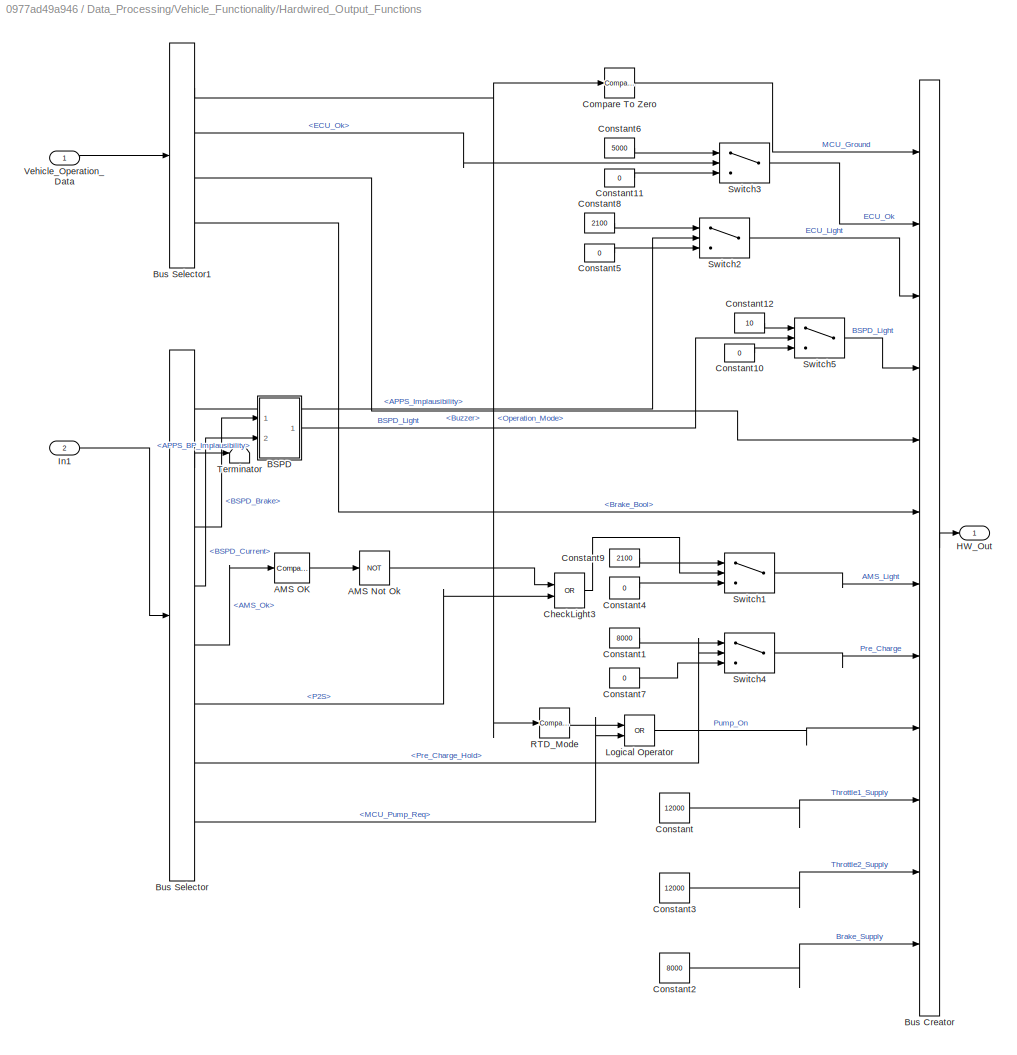
BLOCK [SubSystem] Data_Processing/Vehicle_Functionality/Hardwired_Output_Functions
  Ports = [2, 1]
  RequestExecContextInheritance = off
  Variant = off
BLOCK [Logic] Data_Processing/Vehicle_Functionality/Hardwired_Output_Functions/AMS Not Ok
  AllPortsSameDT = off
  Operator = NOT
  OutDataTypeStr = boolean
  Ports = [1, 1]
BLOCK [Reference] Data_Processing/Vehicle_Functionality/Hardwired_Output_Functions/AMS OK  REF=simulink/Logic and Bit
Operations/Compare
To Constant
  Ports = [1, 1]
  SourceBlock = simulink/Logic and Bit\nOperations/Compare\nTo Constant
  SourceProductBaseCode = SL
  SourceProductName = Simulink
  SourceType = Compare To Constant
BLOCK [SubSystem] Data_Processing/Vehicle_Functionality/Hardwired_Output_Functions/BSPD
  Ports = [2, 1]
  RequestExecContextInheritance = off
  Variant = off
BLOCK [Reference] Data_Processing/Vehicle_Functionality/Hardwired_Output_Functions/BSPD/Compare To Constant1  REF=simulink/Logic and Bit
Operations/Compare
To Constant
  Ports = [1, 1]
  SourceBlock = simulink/Logic and Bit\nOperations/Compare\nTo Constant
  SourceProductBaseCode = SL
  SourceProductName = Simulink
  SourceType = Compare To Constant
BLOCK [Reference] Data_Processing/Vehicle_Functionality/Hardwired_Output_Functions/BSPD/Compare To Constant2  REF=simulink/Logic and Bit
Operations/Compare
To Constant
  Ports = [1, 1]
  SourceBlock = simulink/Logic and Bit\nOperations/Compare\nTo Constant
  SourceProductBaseCode = SL
  SourceProductName = Simulink
  SourceType = Compare To Constant
BLOCK [Ground] Data_Processing/Vehicle_Functionality/Hardwired_Output_Functions/BSPD/Ground
BLOCK [Inport] Data_Processing/Vehicle_Functionality/Hardwired_Output_Functions/BSPD/In1
  IconDisplay = Port number
BLOCK [Inport] Data_Processing/Vehicle_Functionality/Hardwired_Output_Functions/BSPD/In3
  IconDisplay = Port number
  Port = 2
BLOCK [Logic] Data_Processing/Vehicle_Functionality/Hardwired_Output_Functions/BSPD/Logical Operator
  AllPortsSameDT = off
  OutDataTypeStr = boolean
  Ports = [2, 1]
BLOCK [Outport] Data_Processing/Vehicle_Functionality/Hardwired_Output_Functions/BSPD/Out1
  IconDisplay = Port number
BLOCK [Reference] Data_Processing/Vehicle_Functionality/Hardwired_Output_Functions/BSPD/S-R Flip-Flop  REF=simulink_extras/Flip Flops/S-R
Flip-Flop
  Ports = [2, 2]
  SourceBlock = simulink_extras/Flip Flops/S-R\nFlip-Flop
  SourceProductBaseCode = SL
  SourceProductName = Simulink
  SourceType = SRFlipFlop
BLOCK [Terminator] Data_Processing/Vehicle_Functionality/Hardwired_Output_Functions/BSPD/Terminator
BLOCK [BusCreator] Data_Processing/Vehicle_Functionality/Hardwired_Output_Functions/Bus Creator
  DisplayOption = bar
  InheritFromInputs = on
  Inputs = 12
  Ports = [12, 1]
BLOCK [BusSelector] Data_Processing/Vehicle_Functionality/Hardwired_Output_Functions/Bus Selector
  OutputAsBus = off
  OutputSignals = ECU_IO_Data.Pedal_Box_Data.APPS_Implausibility,ECU_IO_Data.Pedal_Box_Data.APPS_BP_Implausibility,Raw_Input_Data.Hardwired_Inputs.Pedal_Box_Data.BSPD_Brake,Raw_Input_Data.Hardwired_Inputs.Pedal_Box_Data.BSPD_Current,Raw_Input_Data.Hardwired_Inputs.AMS_Ok,Console_Data.P2S,BMS_Data.Pre_Charge_Hold,MCU_Data.MCU_Pump_Req
  Ports = [1, 8]
BLOCK [BusSelector] Data_Processing/Vehicle_Functionality/Hardwired_Output_Functions/Bus Selector1
  OutputAsBus = off
  OutputSignals = Operation_Mode,ECU_Ok,Buzzer,Brake_Bool
  Ports = [1, 4]
BLOCK [Logic] Data_Processing/Vehicle_Functionality/Hardwired_Output_Functions/CheckLight3
  AllPortsSameDT = off
  Operator = OR
  OutDataTypeStr = boolean
  Ports = [2, 1]
BLOCK [Reference] Data_Processing/Vehicle_Functionality/Hardwired_Output_Functions/Compare To Zero  REF=simulink/Logic and Bit
Operations/Compare
To Zero
  Ports = [1, 1]
  SourceBlock = simulink/Logic and Bit\nOperations/Compare\nTo Zero
  SourceProductBaseCode = SL
  SourceProductName = Simulink
  SourceType = Compare To Zero
BLOCK [Constant] Data_Processing/Vehicle_Functionality/Hardwired_Output_Functions/Constant
  OutDataTypeStr = uint16
  Value = 12000
BLOCK [Constant] Data_Processing/Vehicle_Functionality/Hardwired_Output_Functions/Constant1
  OutDataTypeStr = Inherit: Inherit via back propagation
  Value = 8000
BLOCK [Constant] Data_Processing/Vehicle_Functionality/Hardwired_Output_Functions/Constant10
  OutDataTypeStr = uint16
  Value = 0
BLOCK [Constant] Data_Processing/Vehicle_Functionality/Hardwired_Output_Functions/Constant11
  OutDataTypeStr = uint16
  Value = 0
BLOCK [Constant] Data_Processing/Vehicle_Functionality/Hardwired_Output_Functions/Constant12
  OutDataTypeStr = uint16
  Value = 10
BLOCK [Constant] Data_Processing/Vehicle_Functionality/Hardwired_Output_Functions/Constant2
  OutDataTypeStr = uint16
  Value = 8000
BLOCK [Constant] Data_Processing/Vehicle_Functionality/Hardwired_Output_Functions/Constant3
  OutDataTypeStr = uint16
  Value = 12000
BLOCK [Constant] Data_Processing/Vehicle_Functionality/Hardwired_Output_Functions/Constant4
  OutDataTypeStr = uint16
  Value = 0
BLOCK [Constant] Data_Processing/Vehicle_Functionality/Hardwired_Output_Functions/Constant5
  OutDataTypeStr = uint16
  Value = 0
BLOCK [Constant] Data_Processing/Vehicle_Functionality/Hardwired_Output_Functions/Constant6
  OutDataTypeStr = uint16
  Value = 5000
BLOCK [Constant] Data_Processing/Vehicle_Functionality/Hardwired_Output_Functions/Constant7
  OutDataTypeStr = Inherit: Inherit via back propagation
  Value = 0
BLOCK [Constant] Data_Processing/Vehicle_Functionality/Hardwired_Output_Functions/Constant8
  OutDataTypeStr = uint16
  Value = 2100
BLOCK [Constant] Data_Processing/Vehicle_Functionality/Hardwired_Output_Functions/Constant9
  OutDataTypeStr = uint16
  Value = 2100
BLOCK [Outport] Data_Processing/Vehicle_Functionality/Hardwired_Output_Functions/HW_Out
  IconDisplay = Port number
BLOCK [Inport] Data_Processing/Vehicle_Functionality/Hardwired_Output_Functions/In1
  IconDisplay = Port number
  Port = 2
BLOCK [Logic] Data_Processing/Vehicle_Functionality/Hardwired_Output_Functions/Logical Operator
  AllPortsSameDT = off
  Operator = OR
  OutDataTypeStr = boolean
  Ports = [2, 1]
BLOCK [Reference] Data_Processing/Vehicle_Functionality/Hardwired_Output_Functions/RTD_Mode  REF=simulink/Logic and Bit
Operations/Compare
To Constant
  Ports = [1, 1]
  SourceBlock = simulink/Logic and Bit\nOperations/Compare\nTo Constant
  SourceProductBaseCode = SL
  SourceProductName = Simulink
  SourceType = Compare To Constant
BLOCK [Switch] Data_Processing/Vehicle_Functionality/Hardwired_Output_Functions/Switch1
  Criteria = u2 > Threshold
  InputSameDT = off
  OutDataTypeStr = uint16
  SaturateOnIntegerOverflow = off
BLOCK [Switch] Data_Processing/Vehicle_Functionality/Hardwired_Output_Functions/Switch2
  Criteria = u2 > Threshold
  InputSameDT = off
  SaturateOnIntegerOverflow = off
BLOCK [Switch] Data_Processing/Vehicle_Functionality/Hardwired_Output_Functions/Switch3
  Criteria = u2 > Threshold
  InputSameDT = off
  SaturateOnIntegerOverflow = off
BLOCK [Switch] Data_Processing/Vehicle_Functionality/Hardwired_Output_Functions/Switch4
  Criteria = u2 > Threshold
  InputSameDT = off
  OutDataTypeStr = uint16
  SaturateOnIntegerOverflow = off
BLOCK [Switch] Data_Processing/Vehicle_Functionality/Hardwired_Output_Functions/Switch5
  Criteria = u2 > Threshold
  InputSameDT = off
  SaturateOnIntegerOverflow = off
BLOCK [Terminator] Data_Processing/Vehicle_Functionality/Hardwired_Output_Functions/Terminator
BLOCK [Inport] Data_Processing/Vehicle_Functionality/Hardwired_Output_Functions/Vehicle_Operation_Data
  IconDisplay = Port number
BLOCK [Inport] Data_Processing/Vehicle_Functionality/Input_Data
  IconDisplay = Port number
BLOCK [Outport] Data_Processing/Vehicle_Functionality/Output_Data_Bus
  IconDisplay = Port number
BLOCK [SubSystem] Data_Processing/Vehicle_Functionality/Vehicle_Operation_Mode
  Ports = [1, 1]
  RequestExecContextInheritance = off
  Variant = off
BLOCK [BusCreator] Data_Processing/Vehicle_Functionality/Vehicle_Operation_Mode/Bus Creator
  DisplayOption = bar
  InheritFromInputs = on
  Inputs = 7
  Ports = [7, 1]
BLOCK [BusSelector] Data_Processing/Vehicle_Functionality/Vehicle_Operation_Mode/Bus Selector1
  OutputAsBus = off
  OutputSignals = ECU_IO_Data.Pedal_Box_Data.Throttle_%,ECU_IO_Data.Pedal_Box_Data.Brake_%,Console_Data.P2S,BMS_Data.Pre_Charge_Hold,Raw_Input_Data.Hardwired_Inputs.Console_Data.Push_to_Start,Raw_Input_Data.Hardwired_Inputs.RTD_Driverless
  Ports = [1, 6]
BLOCK [SubSystem] Data_Processing/Vehicle_Functionality/Vehicle_Operation_Mode/Chart
  Commented = on
  ErrorFcn = Stateflow.Translate.translate
  PermitHierarchicalResolution = ExplicitOnly
  Ports = []
  RequestExecContextInheritance = off
  SFBlockType = Chart
  TreatAsAtomicUnit = on
  Variant = off
BLOCK [Demux] Data_Processing/Vehicle_Functionality/Vehicle_Operation_Mode/Chart/ Demux 
  Outputs = 1
  Ports = [1, 1]
BLOCK [Ground] Data_Processing/Vehicle_Functionality/Vehicle_Operation_Mode/Chart/ Ground 
BLOCK [S-Function] Data_Processing/Vehicle_Functionality/Vehicle_Operation_Mode/Chart/ SFunction 
  EnableBusSupport = on
  FunctionName = sf_sfun
  PortCounts = [1 1]
  Ports = [1, 1]
  SFcnIsStateOwnerBlock = off
  SFunctionDeploymentMode = off
  Tag = Stateflow S-Function TBRe18_ECU_V7_AI 15
BLOCK [Terminator] Data_Processing/Vehicle_Functionality/Vehicle_Operation_Mode/Chart/ Terminator 
BLOCK [Reference] Data_Processing/Vehicle_Functionality/Vehicle_Operation_Mode/Compare To Constant  REF=simulink/Logic and Bit
Operations/Compare
To Constant
  Ports = [1, 1]
  SourceBlock = simulink/Logic and Bit\nOperations/Compare\nTo Constant
  SourceProductBaseCode = SL
  SourceProductName = Simulink
  SourceType = Compare To Constant
BLOCK [Reference] Data_Processing/Vehicle_Functionality/Vehicle_Operation_Mode/Compare To Constant1  REF=simulink/Logic and Bit
Operations/Compare
To Constant
  Ports = [1, 1]
  SourceBlock = simulink/Logic and Bit\nOperations/Compare\nTo Constant
  SourceProductBaseCode = SL
  SourceProductName = Simulink
  SourceType = Compare To Constant
BLOCK [Reference] Data_Processing/Vehicle_Functionality/Vehicle_Operation_Mode/Compare To Constant2  REF=simulink/Logic and Bit
Operations/Compare
To Constant
  Ports = [1, 1]
  SourceBlock = simulink/Logic and Bit\nOperations/Compare\nTo Constant
  SourceProductBaseCode = SL
  SourceProductName = Simulink
  SourceType = Compare To Constant
BLOCK [DataStoreRead] Data_Processing/Vehicle_Functionality/Vehicle_Operation_Mode/Data Store Read1
  DataStoreName = O_M
  Ports = [0, 1]
BLOCK [DataStoreWrite] Data_Processing/Vehicle_Functionality/Vehicle_Operation_Mode/Data Store Write
  DataStoreName = O_M
  Ports = [1]
BLOCK [DataTypeConversion] Data_Processing/Vehicle_Functionality/Vehicle_Operation_Mode/Data Type Conversion
  OutDataTypeStr = double
  RndMeth = Floor
  SaturateOnIntegerOverflow = off
BLOCK [Outport] Data_Processing/Vehicle_Functionality/Vehicle_Operation_Mode/Data_Out
  IconDisplay = Port number
BLOCK [Inport] Data_Processing/Vehicle_Functionality/Vehicle_Operation_Mode/Diagnostic_Data
  IconDisplay = Port number
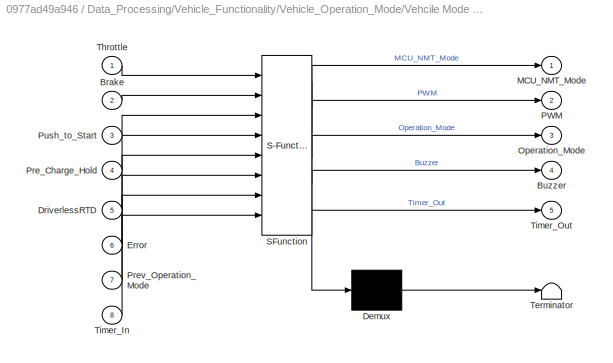
BLOCK [SubSystem] Data_Processing/Vehicle_Functionality/Vehicle_Operation_Mode/Vehcile Mode No Reset
  ErrorFcn = Stateflow.Translate.translate
  PermitHierarchicalResolution = ExplicitOnly
  Ports = [8, 5]
  RequestExecContextInheritance = off
  SFBlockType = MATLAB Function
  TreatAsAtomicUnit = on
  Variant = off
BLOCK [Demux] Data_Processing/Vehicle_Functionality/Vehicle_Operation_Mode/Vehcile Mode No Reset/ Demux 
  Outputs = 1
  Ports = [1, 1]
BLOCK [S-Function] Data_Processing/Vehicle_Functionality/Vehicle_Operation_Mode/Vehcile Mode No Reset/ SFunction 
  EnableBusSupport = on
  FunctionName = sf_sfun
  PortCounts = [8 6]
  Ports = [8, 6]
  SFcnIsStateOwnerBlock = off
  SFunctionDeploymentMode = off
  Tag = Stateflow S-Function TBRe18_ECU_V7_AI 14
BLOCK [Terminator] Data_Processing/Vehicle_Functionality/Vehicle_Operation_Mode/Vehcile Mode No Reset/ Terminator 
BLOCK [Inport] Data_Processing/Vehicle_Functionality/Vehicle_Operation_Mode/Vehcile Mode No Reset/Brake
  IconDisplay = Port number
  Port = 2
BLOCK [Outport] Data_Processing/Vehicle_Functionality/Vehicle_Operation_Mode/Vehcile Mode No Reset/Buzzer
  IconDisplay = Port number
  Port = 4
BLOCK [Inport] Data_Processing/Vehicle_Functionality/Vehicle_Operation_Mode/Vehcile Mode No Reset/DriverlessRTD
  IconDisplay = Port number
  Port = 5
BLOCK [Inport] Data_Processing/Vehicle_Functionality/Vehicle_Operation_Mode/Vehcile Mode No Reset/Error
  IconDisplay = Port number
  Port = 6
BLOCK [Outport] Data_Processing/Vehicle_Functionality/Vehicle_Operation_Mode/Vehcile Mode No Reset/MCU_NMT_Mode
  IconDisplay = Port number
BLOCK [Outport] Data_Processing/Vehicle_Functionality/Vehicle_Operation_Mode/Vehcile Mode No Reset/Operation_Mode
  IconDisplay = Port number
  Port = 3
BLOCK [Outport] Data_Processing/Vehicle_Functionality/Vehicle_Operation_Mode/Vehcile Mode No Reset/PWM
  IconDisplay = Port number
  Port = 2
BLOCK [Inport] Data_Processing/Vehicle_Functionality/Vehicle_Operation_Mode/Vehcile Mode No Reset/Pre_Charge_Hold
  IconDisplay = Port number
  Port = 4
BLOCK [Inport] Data_Processing/Vehicle_Functionality/Vehicle_Operation_Mode/Vehcile Mode No Reset/Prev_Operation_Mode
  IconDisplay = Port number
  Port = 7
BLOCK [Inport] Data_Processing/Vehicle_Functionality/Vehicle_Operation_Mode/Vehcile Mode No Reset/Push_to_Start
  IconDisplay = Port number
  Port = 3
BLOCK [Inport] Data_Processing/Vehicle_Functionality/Vehicle_Operation_Mode/Vehcile Mode No Reset/Throttle
  IconDisplay = Port number
BLOCK [Inport] Data_Processing/Vehicle_Functionality/Vehicle_Operation_Mode/Vehcile Mode No Reset/Timer_In
  IconDisplay = Port number
  Port = 8
BLOCK [Outport] Data_Processing/Vehicle_Functionality/Vehicle_Operation_Mode/Vehcile Mode No Reset/Timer_Out
  IconDisplay = Port number
  Port = 5
BLOCK [SubSystem] Data_Processing/Vehicle_Functionality/Vehicle_Operation_Mode/Vehical Mode Selection
  Commented = on
  ErrorFcn = Stateflow.Translate.translate
  PermitHierarchicalResolution = ExplicitOnly
  Ports = [8, 5]
  RequestExecContextInheritance = off
  SFBlockType = MATLAB Function
  TreatAsAtomicUnit = on
  Variant = off
BLOCK [Demux] Data_Processing/Vehicle_Functionality/Vehicle_Operation_Mode/Vehical Mode Selection/ Demux 
  Outputs = 1
  Ports = [1, 1]
BLOCK [S-Function] Data_Processing/Vehicle_Functionality/Vehicle_Operation_Mode/Vehical Mode Selection/ SFunction 
  EnableBusSupport = on
  FunctionName = sf_sfun
  PortCounts = [8 6]
  Ports = [8, 6]
  SFcnIsStateOwnerBlock = off
  SFunctionDeploymentMode = off
  Tag = Stateflow S-Function TBRe18_ECU_V7_AI 2
BLOCK [Terminator] Data_Processing/Vehicle_Functionality/Vehicle_Operation_Mode/Vehical Mode Selection/ Terminator 
BLOCK [Inport] Data_Processing/Vehicle_Functionality/Vehicle_Operation_Mode/Vehical Mode Selection/Brake
  IconDisplay = Port number
  Port = 2
BLOCK [Outport] Data_Processing/Vehicle_Functionality/Vehicle_Operation_Mode/Vehical Mode Selection/Buzzer
  IconDisplay = Port number
  Port = 4
BLOCK [Inport] Data_Processing/Vehicle_Functionality/Vehicle_Operation_Mode/Vehical Mode Selection/Buzzer_Timer_In
  IconDisplay = Port number
  Port = 7
BLOCK [Outport] Data_Processing/Vehicle_Functionality/Vehicle_Operation_Mode/Vehical Mode Selection/Buzzer_Timer_Out
  IconDisplay = Port number
  Port = 5
BLOCK [Inport] Data_Processing/Vehicle_Functionality/Vehicle_Operation_Mode/Vehical Mode Selection/Error
  IconDisplay = Port number
  Port = 5
BLOCK [Outport] Data_Processing/Vehicle_Functionality/Vehicle_Operation_Mode/Vehical Mode Selection/MCU_NMT_Mode
  IconDisplay = Port number
BLOCK [Outport] Data_Processing/Vehicle_Functionality/Vehicle_Operation_Mode/Vehical Mode Selection/Operation_Mode
  IconDisplay = Port number
  Port = 3
BLOCK [Outport] Data_Processing/Vehicle_Functionality/Vehicle_Operation_Mode/Vehical Mode Selection/PWM
  IconDisplay = Port number
  Port = 2
BLOCK [Inport] Data_Processing/Vehicle_Functionality/Vehicle_Operation_Mode/Vehical Mode Selection/Precharge_Hold
  IconDisplay = Port number
  Port = 8
BLOCK [Inport] Data_Processing/Vehicle_Functionality/Vehicle_Operation_Mode/Vehical Mode Selection/Prev_Operation_Mode
  IconDisplay = Port number
  Port = 6
BLOCK [Inport] Data_Processing/Vehicle_Functionality/Vehicle_Operation_Mode/Vehical Mode Selection/Push_to_Start
  IconDisplay = Port number
  Port = 4
BLOCK [Inport] Data_Processing/Vehicle_Functionality/Vehicle_Operation_Mode/Vehical Mode Selection/Reset
  IconDisplay = Port number
  Port = 3
BLOCK [Inport] Data_Processing/Vehicle_Functionality/Vehicle_Operation_Mode/Vehical Mode Selection/Throttle
  IconDisplay = Port number
BLOCK [Delay] Data_Processing/Vehicle_Functionality/Vehicle_Operation_Mode/prv_Timer
  DelayLength = 1
  InitialCondition = 0
  InputPortMap = u0
  Ports = [1, 1]
BLOCK [SubSystem] Hardwired_Inputs
  OpenFcn = NsiSys_SubSystemTask_OpenFcn();
  Ports = [0, 1]
  RTWFcnName = Hardwired_Inputs
  RTWFcnNameOpts = User specified
  RTWFileName = FileTaskFcn
  RTWFileNameOpts = Use function name
  RTWSystemCode = Nonreusable function
  RequestExecContextInheritance = off
  SystemSampleTime = [0.05]
  TreatAsAtomicUnit = on
  Variant = off
BLOCK [S-Function] Hardwired_Inputs/AnalogInput2
  EnableBusSupport = off
  FunctionName = NsiIo_AnalogInput
  OpenFcn = NsiIo_AnalogInput_OpenFcn();
  Parameters = channel
  Ports = [0, 1]
  SFcnIsStateOwnerBlock = off
  SFunctionDeploymentMode = off
BLOCK [BusCreator] Hardwired_Inputs/Bus Creator
  DisplayOption = bar
  InheritFromInputs = on
  Inputs = 7
  Ports = [7, 1]
BLOCK [SubSystem] Hardwired_Inputs/Console
  Ports = [0, 1]
  RequestExecContextInheritance = off
  Variant = off
BLOCK [BusCreator] Hardwired_Inputs/Console/Bus Creator
  DisplayOption = bar
  InheritFromInputs = on
  Inputs = 2
  Ports = [2, 1]
BLOCK [S-Function] Hardwired_Inputs/Console/DigitalInput
  EnableBusSupport = off
  FunctionName = NsiIo_DigitalInput
  OpenFcn = NsiIo_DigitalInput_OpenFcn();
  Parameters = channel,is_trigger,typeof_trigger,is_wakeup,wakeup_level
  Ports = [0, 1]
  SFcnIsStateOwnerBlock = off
  SFunctionDeploymentMode = off
BLOCK [S-Function] Hardwired_Inputs/Console/DigitalInput1
  EnableBusSupport = off
  FunctionName = NsiIo_DigitalInput
  OpenFcn = NsiIo_DigitalInput_OpenFcn();
  Parameters = channel,is_trigger,typeof_trigger,is_wakeup,wakeup_level
  Ports = [0, 1]
  SFcnIsStateOwnerBlock = off
  SFunctionDeploymentMode = off
BLOCK [Outport] Hardwired_Inputs/Console/Out1
  IconDisplay = Port number
BLOCK [S-Function] Hardwired_Inputs/DigitalInput1
  EnableBusSupport = off
  FunctionName = NsiIo_DigitalInput
  OpenFcn = NsiIo_DigitalInput_OpenFcn();
  Parameters = channel,is_trigger,typeof_trigger,is_wakeup,wakeup_level
  Ports = [0, 1]
  SFcnIsStateOwnerBlock = off
  SFunctionDeploymentMode = off
BLOCK [Ground] Hardwired_Inputs/Ground
BLOCK [Ground] Hardwired_Inputs/Ground1
BLOCK [SubSystem] Hardwired_Inputs/Init
  CopyFcn = cccopyfcn(gcb)
  OpenFcn = ccopenfcn('System Initialize Function')
  Ports = []
  RequestExecContextInheritance = off
  Variant = off
BLOCK [Outport] Hardwired_Inputs/Out1
  IconDisplay = Port number
BLOCK [SubSystem] Hardwired_Inputs/Pedal_Box
  Ports = [0, 1]
  RequestExecContextInheritance = off
  Variant = off
BLOCK [S-Function] Hardwired_Inputs/Pedal_Box/AnalogInput5
  EnableBusSupport = off
  FunctionName = NsiIo_AnalogInput
  OpenFcn = NsiIo_AnalogInput_OpenFcn();
  Parameters = channel
  Ports = [0, 1]
  SFcnIsStateOwnerBlock = off
  SFunctionDeploymentMode = off
BLOCK [S-Function] Hardwired_Inputs/Pedal_Box/AnalogInput6
  EnableBusSupport = off
  FunctionName = NsiIo_AnalogInput
  OpenFcn = NsiIo_AnalogInput_OpenFcn();
  Parameters = channel
  Ports = [0, 1]
  SFcnIsStateOwnerBlock = off
  SFunctionDeploymentMode = off
BLOCK [S-Function] Hardwired_Inputs/Pedal_Box/AnalogInput7
  EnableBusSupport = off
  FunctionName = NsiIo_AnalogInput
  OpenFcn = NsiIo_AnalogInput_OpenFcn();
  Parameters = channel
  Ports = [0, 1]
  SFcnIsStateOwnerBlock = off
  SFunctionDeploymentMode = off
BLOCK [S-Function] Hardwired_Inputs/Pedal_Box/AnalogInput8
  EnableBusSupport = off
  FunctionName = NsiIo_AnalogInput
  OpenFcn = NsiIo_AnalogInput_OpenFcn();
  Parameters = channel
  Ports = [0, 1]
  SFcnIsStateOwnerBlock = off
  SFunctionDeploymentMode = off
BLOCK [S-Function] Hardwired_Inputs/Pedal_Box/AnalogInput9
  EnableBusSupport = off
  FunctionName = NsiIo_AnalogInput
  OpenFcn = NsiIo_AnalogInput_OpenFcn();
  Parameters = channel
  Ports = [0, 1]
  SFcnIsStateOwnerBlock = off
  SFunctionDeploymentMode = off
BLOCK [BusCreator] Hardwired_Inputs/Pedal_Box/Bus Creator
  DisplayOption = bar
  InheritFromInputs = on
  Inputs = 5
  Ports = [5, 1]
BLOCK [Outport] Hardwired_Inputs/Pedal_Box/Out1
  IconDisplay = Port number
BLOCK [S-Function] Hardwired_Inputs/Task
  EnableBusSupport = off
  FunctionName = NsiSys_TaskREF
  OpenFcn = NsiSys_Task_OpenFcn();
  Parameters = task_initialised,task_periodic, task_sampletime,task_name,task_event,task_offset
  Ports = []
  SFcnIsStateOwnerBlock = off
  SFunctionDeploymentMode = off
BLOCK [S-Function] Hardwired_Inputs/VBat
  EnableBusSupport = off
  FunctionName = NsiIo_Vbat
  OpenFcn = NsiIo_Vbat_OpenFcn();
  Ports = [0, 1]
  SFcnIsStateOwnerBlock = off
  SFunctionDeploymentMode = off
BLOCK [SubSystem] Hardwired_Outputs
  OpenFcn = NsiSys_SubSystemTask_OpenFcn();
  Ports = [1]
  RTWFcnName = Hardwired_Outputs
  RTWFcnNameOpts = User specified
  RTWFileName = FileTaskFcn
  RTWFileNameOpts = Use function name
  RTWSystemCode = Nonreusable function
  RequestExecContextInheritance = off
  SystemSampleTime = [0.1]
  TreatAsAtomicUnit = on
  Variant = off
BLOCK [S-Function] Hardwired_Outputs/AnalogOutput10
  Description = fsgqsdgqsgqsqs\nqdsjfhkqfkqsd
  EnableBusSupport = off
  FunctionName = NsiIo_AnalogOutput
  OpenFcn = NsiIo_AnalogOutput_OpenFcn();
  Parameters = Channel,Feedback
  Ports = [1]
  SFcnIsStateOwnerBlock = off
  SFunctionDeploymentMode = off
BLOCK [S-Function] Hardwired_Outputs/AnalogOutput11
  Description = fsgqsdgqsgqsqs\nqdsjfhkqfkqsd
  EnableBusSupport = off
  FunctionName = NsiIo_AnalogOutput
  OpenFcn = NsiIo_AnalogOutput_OpenFcn();
  Parameters = Channel,Feedback
  Ports = [1]
  SFcnIsStateOwnerBlock = off
  SFunctionDeploymentMode = off
BLOCK [S-Function] Hardwired_Outputs/AnalogOutput12
  Description = fsgqsdgqsgqsqs\nqdsjfhkqfkqsd
  EnableBusSupport = off
  FunctionName = NsiIo_AnalogOutput
  OpenFcn = NsiIo_AnalogOutput_OpenFcn();
  Parameters = Channel,Feedback
  Ports = [1]
  SFcnIsStateOwnerBlock = off
  SFunctionDeploymentMode = off
BLOCK [S-Function] Hardwired_Outputs/AnalogOutput3
  Description = fsgqsdgqsgqsqs\nqdsjfhkqfkqsd
  EnableBusSupport = off
  FunctionName = NsiIo_AnalogOutput
  OpenFcn = NsiIo_AnalogOutput_OpenFcn();
  Parameters = Channel,Feedback
  Ports = [1]
  SFcnIsStateOwnerBlock = off
  SFunctionDeploymentMode = off
BLOCK [S-Function] Hardwired_Outputs/AnalogOutput5
  Description = fsgqsdgqsgqsqs\nqdsjfhkqfkqsd
  EnableBusSupport = off
  FunctionName = NsiIo_AnalogOutput
  OpenFcn = NsiIo_AnalogOutput_OpenFcn();
  Parameters = Channel,Feedback
  Ports = [1]
  SFcnIsStateOwnerBlock = off
  SFunctionDeploymentMode = off
BLOCK [S-Function] Hardwired_Outputs/AnalogOutput9
  Description = fsgqsdgqsgqsqs\nqdsjfhkqfkqsd
  EnableBusSupport = off
  FunctionName = NsiIo_AnalogOutput
  OpenFcn = NsiIo_AnalogOutput_OpenFcn();
  Parameters = Channel,Feedback
  Ports = [1]
  SFcnIsStateOwnerBlock = off
  SFunctionDeploymentMode = off
BLOCK [BusSelector] Hardwired_Outputs/Bus Selector
  OutputAsBus = off
  OutputSignals = Hardwired_Output_Data.Throttle1_Supply,Hardwired_Output_Data.Throttle2_Supply,Hardwired_Output_Data.ECU_Light,Hardwired_Output_Data.BSPD_Light,Hardwired_Output_Data.AMS_Light,Hardwired_Output_Data.Brake_Supply,Vehicle_Operation_Data.Buzzer,Hardwired_Output_Data.MCU_Ground,Hardwired_Output_Data.Pump_On,Hardwired_Output_Data.Pre_Charge,Hardwired_Output_Data.ECU_Ok,Vehicle_Operation_Data.Brake_Bool
  Ports = [1, 12]
BLOCK [Constant] Hardwired_Outputs/Constant
  OutDataTypeStr = uint32
  Value = 10000
BLOCK [Inport] Hardwired_Outputs/Data Processing Data
  IconDisplay = Port number
BLOCK [DataTypeConversion] Hardwired_Outputs/Data Type Conversion
  RndMeth = Floor
  SaturateOnIntegerOverflow = off
BLOCK [DataTypeConversion] Hardwired_Outputs/Data Type Conversion1
  RndMeth = Floor
  SaturateOnIntegerOverflow = off
BLOCK [S-Function] Hardwired_Outputs/DigitalOutput
  EnableBusSupport = off
  FunctionName = NsiIo_DigitalOutput
  OpenFcn = NsiIo_DigitalOutput_OpenFcn();
  Parameters = channel,side,feedback
  Ports = [1]
  SFcnIsStateOwnerBlock = off
  SFunctionDeploymentMode = off
BLOCK [S-Function] Hardwired_Outputs/DigitalOutput1
  EnableBusSupport = off
  FunctionName = NsiIo_DigitalOutput
  OpenFcn = NsiIo_DigitalOutput_OpenFcn();
  Parameters = channel,side,feedback
  Ports = [1]
  SFcnIsStateOwnerBlock = off
  SFunctionDeploymentMode = off
BLOCK [S-Function] Hardwired_Outputs/DigitalOutput2
  EnableBusSupport = off
  FunctionName = NsiIo_DigitalOutput
  OpenFcn = NsiIo_DigitalOutput_OpenFcn();
  Parameters = channel,side,feedback
  Ports = [1]
  SFcnIsStateOwnerBlock = off
  SFunctionDeploymentMode = off
BLOCK [S-Function] Hardwired_Outputs/DigitalOutput3
  EnableBusSupport = off
  FunctionName = NsiIo_DigitalOutput
  OpenFcn = NsiIo_DigitalOutput_OpenFcn();
  Parameters = channel,side,feedback
  Ports = [1]
  SFcnIsStateOwnerBlock = off
  SFunctionDeploymentMode = off
BLOCK [SubSystem] Hardwired_Outputs/Init
  CopyFcn = cccopyfcn(gcb)
  OpenFcn = ccopenfcn('System Initialize Function')
  Ports = []
  RequestExecContextInheritance = off
  Variant = off
BLOCK [S-Function] Hardwired_Outputs/Pwm
  EnableBusSupport = off
  FunctionName = NsiIo_Pwm
  OpenFcn = NsiIo_Pwm_OpenFcn();
  Parameters = channel
  Ports = [2]
  SFcnIsStateOwnerBlock = off
  SFunctionDeploymentMode = off
BLOCK [S-Function] Hardwired_Outputs/Task
  EnableBusSupport = off
  FunctionName = NsiSys_TaskREF
  OpenFcn = NsiSys_Task_OpenFcn();
  Parameters = task_initialised,task_periodic, task_sampletime,task_name,task_event,task_offset
  Ports = []
  SFcnIsStateOwnerBlock = off
  SFunctionDeploymentMode = off
BLOCK [Terminator] Hardwired_Outputs/Terminator
BLOCK [SubSystem] High_Priority_CAN_RX
  OpenFcn = NsiSys_SubSystemTask_OpenFcn();
  Ports = [0, 1]
  RTWFcnName = High_Priority_CAN_RX
  RTWFcnNameOpts = User specified
  RTWFileName = FileTaskFcn
  RTWFileNameOpts = Use function name
  RTWSystemCode = Nonreusable function
  RequestExecContextInheritance = off
  SystemSampleTime = [0.05]
  TreatAsAtomicUnit = on
  Variant = off
BLOCK [BusCreator] High_Priority_CAN_RX/Bus Creator1
  DisplayOption = bar
  InheritFromInputs = on
  Inputs = 9
  Ports = [9, 1]
BLOCK [S-Function] High_Priority_CAN_RX/CanRx2
  EnableBusSupport = off
  FunctionName = NsiCan_Rx_Ext
  OpenFcn = NsiCan_Rx_Ext_OpenFcn();
  Parameters = data_can,channel,msg_name,ident,ident_type,dlc,signals,is_trigger,is_physical,is_canfd,is_rxgw
  Ports = [0, 5]
  SFcnIsStateOwnerBlock = off
  SFunctionDeploymentMode = off
BLOCK [S-Function] High_Priority_CAN_RX/CanRx3
  EnableBusSupport = off
  FunctionName = NsiCan_Rx_Ext
  OpenFcn = NsiCan_Rx_Ext_OpenFcn();
  Parameters = data_can,channel,msg_name,ident,ident_type,dlc,signals,is_trigger,is_physical,is_canfd,is_rxgw
  Ports = [0, 2]
  SFcnIsStateOwnerBlock = off
  SFunctionDeploymentMode = off
BLOCK [S-Function] High_Priority_CAN_RX/CanRx4
  EnableBusSupport = off
  FunctionName = NsiCan_Rx_Ext
  OpenFcn = NsiCan_Rx_Ext_OpenFcn();
  Parameters = data_can,channel,msg_name,ident,ident_type,dlc,signals,is_trigger,is_physical,is_canfd,is_rxgw
  Ports = [0, 5]
  SFcnIsStateOwnerBlock = off
  SFunctionDeploymentMode = off
BLOCK [SubSystem] High_Priority_CAN_RX/Init
  CopyFcn = cccopyfcn(gcb)
  OpenFcn = ccopenfcn('System Initialize Function')
  Ports = []
  RequestExecContextInheritance = off
  Variant = off
BLOCK [Outport] High_Priority_CAN_RX/Out1
  IconDisplay = Port number
BLOCK [S-Function] High_Priority_CAN_RX/Task
  EnableBusSupport = off
  FunctionName = NsiSys_TaskREF
  OpenFcn = NsiSys_Task_OpenFcn();
  Parameters = task_initialised,task_periodic, task_sampletime,task_name,task_event,task_offset
  Ports = []
  SFcnIsStateOwnerBlock = off
  SFunctionDeploymentMode = off
BLOCK [Terminator] High_Priority_CAN_RX/Terminator
BLOCK [Terminator] High_Priority_CAN_RX/Terminator1
BLOCK [Terminator] High_Priority_CAN_RX/Terminator2
BLOCK [SubSystem] High_Priority_CAN_TX
  OpenFcn = NsiSys_SubSystemTask_OpenFcn();
  Ports = [1]
  RTWFcnName = High_Priority_CAN_TX
  RTWFcnNameOpts = User specified
  RTWFileName = FileTaskFcn
  RTWFileNameOpts = Use function name
  RTWSystemCode = Nonreusable function
  RequestExecContextInheritance = off
  SystemSampleTime = [0.05]
  TreatAsAtomicUnit = on
  Variant = off
BLOCK [BusSelector] High_Priority_CAN_TX/Bus Selector
  OutputAsBus = off
  OutputSignals = Drive_Data.Torque_MCU_Req,Vehicle_Operation_Data.Operation_Mode,Drive_Data.Control_Word,Drive_Data.Sync_Signal,Vehicle_Operation_Data.MCU_NMT_Mode
  Ports = [1, 5]
BLOCK [S-Function] High_Priority_CAN_TX/CanTx1
  EnableBusSupport = off
  FunctionName = NsiCan_Tx_Ext
  OpenFcn = NsiCan_Tx_Ext_OpenFcn();
  Parameters = data_can,channel,msg_name,ident,ident_type,dlc,signals,is_physical,is_canfd,is_crc
  Ports = [1]
  SFcnIsStateOwnerBlock = off
  SFunctionDeploymentMode = off
BLOCK [S-Function] High_Priority_CAN_TX/CanTx2
  EnableBusSupport = off
  FunctionName = NsiCan_Tx_Ext
  OpenFcn = NsiCan_Tx_Ext_OpenFcn();
  Parameters = data_can,channel,msg_name,ident,ident_type,dlc,signals,is_physical,is_canfd,is_crc
  Ports = [1]
  SFcnIsStateOwnerBlock = off
  SFunctionDeploymentMode = off
BLOCK [Inport] High_Priority_CAN_TX/In1
  IconDisplay = Port number
BLOCK [SubSystem] High_Priority_CAN_TX/Init
  CopyFcn = cccopyfcn(gcb)
  OpenFcn = ccopenfcn('System Initialize Function')
  Ports = []
  RequestExecContextInheritance = off
  Variant = off
BLOCK [SubSystem] High_Priority_CAN_TX/MATLAB Function
  ErrorFcn = Stateflow.Translate.translate
  PermitHierarchicalResolution = ExplicitOnly
  Ports = [1, 4]
  RequestExecContextInheritance = off
  SFBlockType = MATLAB Function
  TreatAsAtomicUnit = on
  Variant = off
BLOCK [Demux] High_Priority_CAN_TX/MATLAB Function/ Demux 
  Outputs = 1
  Ports = [1, 1]
BLOCK [S-Function] High_Priority_CAN_TX/MATLAB Function/ SFunction 
  EnableBusSupport = on
  FunctionName = sf_sfun
  PortCounts = [1 5]
  Ports = [1, 5]
  SFcnIsStateOwnerBlock = off
  SFunctionDeploymentMode = off
  Tag = Stateflow S-Function TBRe18_ECU_V7_AI 3
BLOCK [Terminator] High_Priority_CAN_TX/MATLAB Function/ Terminator 
BLOCK [Inport] High_Priority_CAN_TX/MATLAB Function/MCU_NMT_Mode
  IconDisplay = Port number
BLOCK [Outport] High_Priority_CAN_TX/MATLAB Function/Op
  IconDisplay = Port number
  Port = 4
BLOCK [Outport] High_Priority_CAN_TX/MATLAB Function/Pre_Op
  IconDisplay = Port number
  Port = 3
BLOCK [Outport] High_Priority_CAN_TX/MATLAB Function/Reset
  IconDisplay = Port number
  Port = 2
BLOCK [Outport] High_Priority_CAN_TX/MATLAB Function/Stopped
  IconDisplay = Port number
BLOCK [SubSystem] High_Priority_CAN_TX/MCU_Operational
  Ports = [0, 0, 0, 1]
  RequestExecContextInheritance = off
  Variant = off
BLOCK [Constant] High_Priority_CAN_TX/MCU_Operational/0_constant
  OutDataTypeStr = uint8
  SampleTime = -1
  Value = 0
BLOCK [Constant] High_Priority_CAN_TX/MCU_Operational/0_constant1
  OutDataTypeStr = uint8
  SampleTime = -1
BLOCK [S-Function] High_Priority_CAN_TX/MCU_Operational/CanTx2
  EnableBusSupport = off
  FunctionName = NsiCan_Tx_Ext
  OpenFcn = NsiCan_Tx_Ext_OpenFcn();
  Parameters = data_can,channel,msg_name,ident,ident_type,dlc,signals,is_physical,is_canfd,is_crc
  Ports = [2]
  SFcnIsStateOwnerBlock = off
  SFunctionDeploymentMode = off
BLOCK [TriggerPort] High_Priority_CAN_TX/MCU_Operational/Trigger
  PortDimensions = 1
  Ports = []
  StatesWhenEnabling = held
  VariantControl = (inherit)
BLOCK [SubSystem] High_Priority_CAN_TX/MCU_Pre_Operational
  Ports = [0, 0, 0, 1]
  RequestExecContextInheritance = off
  Variant = off
BLOCK [Constant] High_Priority_CAN_TX/MCU_Pre_Operational/0_constant
  OutDataTypeStr = uint8
  SampleTime = -1
  Value = 0
BLOCK [Constant] High_Priority_CAN_TX/MCU_Pre_Operational/0_constant1
  OutDataTypeStr = uint8
  SampleTime = -1
  Value = 128
BLOCK [S-Function] High_Priority_CAN_TX/MCU_Pre_Operational/CanTx2
  EnableBusSupport = off
  FunctionName = NsiCan_Tx_Ext
  OpenFcn = NsiCan_Tx_Ext_OpenFcn();
  Parameters = data_can,channel,msg_name,ident,ident_type,dlc,signals,is_physical,is_canfd,is_crc
  Ports = [2]
  SFcnIsStateOwnerBlock = off
  SFunctionDeploymentMode = off
BLOCK [TriggerPort] High_Priority_CAN_TX/MCU_Pre_Operational/Trigger
  PortDimensions = 1
  Ports = []
  StatesWhenEnabling = held
  VariantControl = (inherit)
BLOCK [SubSystem] High_Priority_CAN_TX/MCU_Reset
  Ports = [0, 0, 0, 1]
  RequestExecContextInheritance = off
  Variant = off
BLOCK [Constant] High_Priority_CAN_TX/MCU_Reset/0_constant
  OutDataTypeStr = uint8
  SampleTime = -1
  Value = 0
BLOCK [Constant] High_Priority_CAN_TX/MCU_Reset/0_constant1
  OutDataTypeStr = uint8
  SampleTime = -1
  Value = 129
BLOCK [S-Function] High_Priority_CAN_TX/MCU_Reset/CanTx2
  EnableBusSupport = off
  FunctionName = NsiCan_Tx_Ext
  OpenFcn = NsiCan_Tx_Ext_OpenFcn();
  Parameters = data_can,channel,msg_name,ident,ident_type,dlc,signals,is_physical,is_canfd,is_crc
  Ports = [2]
  SFcnIsStateOwnerBlock = off
  SFunctionDeploymentMode = off
BLOCK [TriggerPort] High_Priority_CAN_TX/MCU_Reset/Trigger
  PortDimensions = 1
  Ports = []
  StatesWhenEnabling = held
  VariantControl = (inherit)
BLOCK [SubSystem] High_Priority_CAN_TX/MCU_Stopped
  Ports = [0, 0, 0, 1]
  RequestExecContextInheritance = off
  Variant = off
BLOCK [Constant] High_Priority_CAN_TX/MCU_Stopped/0_constant
  OutDataTypeStr = uint8
  SampleTime = -1
  Value = 0
BLOCK [Constant] High_Priority_CAN_TX/MCU_Stopped/0_constant1
  OutDataTypeStr = uint8
  SampleTime = -1
  Value = 2
BLOCK [S-Function] High_Priority_CAN_TX/MCU_Stopped/CanTx2
  EnableBusSupport = off
  FunctionName = NsiCan_Tx_Ext
  OpenFcn = NsiCan_Tx_Ext_OpenFcn();
  Parameters = data_can,channel,msg_name,ident,ident_type,dlc,signals,is_physical,is_canfd,is_crc
  Ports = [2]
  SFcnIsStateOwnerBlock = off
  SFunctionDeploymentMode = off
BLOCK [TriggerPort] High_Priority_CAN_TX/MCU_Stopped/Trigger
  PortDimensions = 1
  Ports = []
  StatesWhenEnabling = held
  VariantControl = (inherit)
BLOCK [SubSystem] High_Priority_CAN_TX/SDO Transmission
  Ports = [2]
  RequestExecContextInheritance = off
  Variant = off
BLOCK [Constant] High_Priority_CAN_TX/SDO Transmission/ Sub Index
  OutDataTypeStr = uint8
  Value = 0
BLOCK [S-Function] High_Priority_CAN_TX/SDO Transmission/CanTx2
  EnableBusSupport = off
  FunctionName = NsiCan_Tx_Ext
  OpenFcn = NsiCan_Tx_Ext_OpenFcn();
  Parameters = data_can,channel,msg_name,ident,ident_type,dlc,signals,is_physical,is_canfd,is_crc
  Ports = [4]
  SFcnIsStateOwnerBlock = off
  SFunctionDeploymentMode = off
BLOCK [Reference] High_Priority_CAN_TX/SDO Transmission/Compare To Constant  REF=simulink/Logic and Bit
Operations/Compare
To Constant
  Ports = [1, 1]
  SourceBlock = simulink/Logic and Bit\nOperations/Compare\nTo Constant
  SourceProductBaseCode = SL
  SourceProductName = Simulink
  SourceType = Compare To Constant
BLOCK [Constant] High_Priority_CAN_TX/SDO Transmission/DC Link Voltage 0x6079
  Value = 24697
BLOCK [Delay] High_Priority_CAN_TX/SDO Transmission/Delay
  DelayLength = 10
  InitialCondition = 0
  InputPortMap = u0
  Ports = [1, 1]
BLOCK [Inport] High_Priority_CAN_TX/SDO Transmission/Operation_Mode
  IconDisplay = Port number
  Port = 2
BLOCK [Constant] High_Priority_CAN_TX/SDO Transmission/Read Data
  Value = 0
BLOCK [Constant] High_Priority_CAN_TX/SDO Transmission/Read Request
  Value = 64
BLOCK [Switch] High_Priority_CAN_TX/SDO Transmission/Switch
  Criteria = u2 > Threshold
  InputSameDT = off
  OutDataTypeStr = uint32
  SaturateOnIntegerOverflow = off
BLOCK [Switch] High_Priority_CAN_TX/SDO Transmission/Switch2
  Criteria = u2 > Threshold
  InputSameDT = off
  OutDataTypeStr = uint16
  SaturateOnIntegerOverflow = off
BLOCK [Switch] High_Priority_CAN_TX/SDO Transmission/Switch3
  Criteria = u2 > Threshold
  InputSameDT = off
  OutDataTypeStr = uint8
  SaturateOnIntegerOverflow = off
BLOCK [Inport] High_Priority_CAN_TX/SDO Transmission/Torque
  IconDisplay = Port number
BLOCK [Constant] High_Priority_CAN_TX/SDO Transmission/Torque 0x6071
  Value = 24689
BLOCK [Constant] High_Priority_CAN_TX/SDO Transmission/Write Request
  Value = 43
BLOCK [S-Function] High_Priority_CAN_TX/Task
  EnableBusSupport = off
  FunctionName = NsiSys_TaskREF
  OpenFcn = NsiSys_Task_OpenFcn();
  Parameters = task_initialised,task_periodic, task_sampletime,task_name,task_event,task_offset
  Ports = []
  SFcnIsStateOwnerBlock = off
  SFunctionDeploymentMode = off
BLOCK [SubSystem] Low_Priority_CAN_RX
  OpenFcn = NsiSys_SubSystemTask_OpenFcn();
  Ports = [0, 1]
  RTWFcnName = Low_Priority_CAN_RX
  RTWFcnNameOpts = User specified
  RTWFileName = FileTaskFcn
  RTWFileNameOpts = Use function name
  RTWSystemCode = Nonreusable function
  RequestExecContextInheritance = off
  SystemSampleTime = [0.05]
  TreatAsAtomicUnit = on
  Variant = off
BLOCK [BusCreator] Low_Priority_CAN_RX/Bus Creator1
  DisplayOption = bar
  InheritFromInputs = on
  Inputs = 11
  Ports = [11, 1]
BLOCK [BusCreator] Low_Priority_CAN_RX/Bus Creator2
  DisplayOption = bar
  InheritFromInputs = on
  Inputs = 3
  Ports = [3, 1]
BLOCK [BusCreator] Low_Priority_CAN_RX/Bus Creator3
  DisplayOption = bar
  InheritFromInputs = on
  Inputs = 3
  Ports = [3, 1]
BLOCK [S-Function] Low_Priority_CAN_RX/CanRx1
  EnableBusSupport = off
  FunctionName = NsiCan_Rx_Ext
  OpenFcn = NsiCan_Rx_Ext_OpenFcn();
  Parameters = data_can,channel,msg_name,ident,ident_type,dlc,signals,is_trigger,is_physical,is_canfd,is_rxgw
  Ports = [0, 2]
  SFcnIsStateOwnerBlock = off
  SFunctionDeploymentMode = off
BLOCK [S-Function] Low_Priority_CAN_RX/CanRx2
  EnableBusSupport = off
  FunctionName = NsiCan_Rx_Ext
  OpenFcn = NsiCan_Rx_Ext_OpenFcn();
  Parameters = data_can,channel,msg_name,ident,ident_type,dlc,signals,is_trigger,is_physical,is_canfd,is_rxgw
  Ports = [0, 2]
  SFcnIsStateOwnerBlock = off
  SFunctionDeploymentMode = off
BLOCK [S-Function] Low_Priority_CAN_RX/CanRx3
  EnableBusSupport = off
  FunctionName = NsiCan_Rx_Ext
  OpenFcn = NsiCan_Rx_Ext_OpenFcn();
  Parameters = data_can,channel,msg_name,ident,ident_type,dlc,signals,is_trigger,is_physical,is_canfd,is_rxgw
  Ports = [0, 2]
  SFcnIsStateOwnerBlock = off
  SFunctionDeploymentMode = off
BLOCK [S-Function] Low_Priority_CAN_RX/CanRx6
  EnableBusSupport = off
  FunctionName = NsiCan_Rx_Ext
  OpenFcn = NsiCan_Rx_Ext_OpenFcn();
  Parameters = data_can,channel,msg_name,ident,ident_type,dlc,signals,is_trigger,is_physical,is_canfd,is_rxgw
  Ports = [0, 5]
  SFcnIsStateOwnerBlock = off
  SFunctionDeploymentMode = off
BLOCK [S-Function] Low_Priority_CAN_RX/CanRx7
  EnableBusSupport = off
  FunctionName = NsiCan_Rx_Ext
  OpenFcn = NsiCan_Rx_Ext_OpenFcn();
  Parameters = data_can,channel,msg_name,ident,ident_type,dlc,signals,is_trigger,is_physical,is_canfd,is_rxgw
  Ports = [0, 6]
  SFcnIsStateOwnerBlock = off
  SFunctionDeploymentMode = off
BLOCK [Ground] Low_Priority_CAN_RX/Ground
BLOCK [Ground] Low_Priority_CAN_RX/Ground1
BLOCK [Ground] Low_Priority_CAN_RX/Ground2
BLOCK [SubSystem] Low_Priority_CAN_RX/Init
  CopyFcn = cccopyfcn(gcb)
  OpenFcn = ccopenfcn('System Initialize Function')
  Ports = []
  RequestExecContextInheritance = off
  Variant = off
BLOCK [Outport] Low_Priority_CAN_RX/Out1
  IconDisplay = Port number
BLOCK [S-Function] Low_Priority_CAN_RX/Task
  EnableBusSupport = off
  FunctionName = NsiSys_TaskREF
  OpenFcn = NsiSys_Task_OpenFcn();
  Parameters = task_initialised,task_periodic, task_sampletime,task_name,task_event,task_offset
  Ports = []
  SFcnIsStateOwnerBlock = off
  SFunctionDeploymentMode = off
BLOCK [Terminator] Low_Priority_CAN_RX/Terminator
BLOCK [Terminator] Low_Priority_CAN_RX/Terminator1
BLOCK [Terminator] Low_Priority_CAN_RX/Terminator2
BLOCK [Terminator] Low_Priority_CAN_RX/Terminator3
BLOCK [Terminator] Low_Priority_CAN_RX/Terminator4
BLOCK [SubSystem] Low_Priority_CAN_TX
  OpenFcn = NsiSys_SubSystemTask_OpenFcn();
  Ports = [1]
  RTWFcnName = Low_Priority_CAN_TX
  RTWFcnNameOpts = User specified
  RTWFileName = FileTaskFcn
  RTWFileNameOpts = Use function name
  RTWSystemCode = Nonreusable function
  RequestExecContextInheritance = off
  SystemSampleTime = [0.1]
  TreatAsAtomicUnit = on
  Variant = off
BLOCK [SubSystem] Low_Priority_CAN_TX/ECU_Diag_ToCAN
  Ports = [1]
  RequestExecContextInheritance = off
  Variant = off
BLOCK [BusSelector] Low_Priority_CAN_TX/ECU_Diag_ToCAN/Bus Selector
  OutputAsBus = off
  OutputSignals = Input_Data_Bus.BMS_Data.Pre_Charge_Hold,Vehicle_Operation_Data.Throttle_Bool,Vehicle_Operation_Data.MCU_NMT_Mode,Vehicle_Operation_Data.PWM,Vehicle_Operation_Data.Buzzer,Vehicle_Operation_Data.Operation_Mode,Vehicle_Operation_Data.Brake_Bool
  Ports = [1, 7]
BLOCK [BusSelector] Low_Priority_CAN_TX/ECU_Diag_ToCAN/Bus Selector1
  OutputAsBus = off
  OutputSignals = Input_Data_Bus.ECU_IO_Data.Pedal_Box_Data.Brake_Voltage,Input_Data_Bus.ECU_IO_Data.Pedal_Box_Data.Throttle2_Voltage,Input_Data_Bus.ECU_IO_Data.Pedal_Box_Data.Throttle1_Voltage,Input_Data_Bus.ECU_IO_Data.Pedal_Box_Data.Throttle_%,Input_Data_Bus.ECU_IO_Data.Pedal_Box_Data.APPS_Implausibility,Input_Data_Bus.ECU_IO_Data.Pedal_Box_Data.APPS_BP_Implausibility,Input_Data_Bus.ECU_IO_Data.Pedal_Box_Data.Br...<+360ch>
  Ports = [1, 14]
BLOCK [BusSelector] Low_Priority_CAN_TX/ECU_Diag_ToCAN/Bus Selector2
  OutputAsBus = off
  OutputSignals = Input_Data_Bus.ECU_IO_Data.IMD_Data.ECU_IMD_Error,Input_Data_Bus.MCU_Data.MCU_Error,Input_Data_Bus.ECU_IO_Data.Pedal_Box_Data.APPS_Implausibility,Input_Data_Bus.ECU_IO_Data.Pedal_Box_Data.APPS_BP_Implausibility,Input_Data_Bus.Shutdown_Data.Shutdown_Error,Input_Data_Bus.ECU_IO_Data.LV_Battery_Data.LV_Battery_Warning
  Ports = [1, 6]
BLOCK [S-Function] Low_Priority_CAN_TX/ECU_Diag_ToCAN/CanTx2
  EnableBusSupport = off
  FunctionName = NsiCan_Tx_Ext
  OpenFcn = NsiCan_Tx_Ext_OpenFcn();
  Parameters = data_can,channel,msg_name,ident,ident_type,dlc,signals,is_physical,is_canfd,is_crc
  Ports = [3]
  SFcnIsStateOwnerBlock = off
  SFunctionDeploymentMode = off
BLOCK [S-Function] Low_Priority_CAN_TX/ECU_Diag_ToCAN/CanTx6
  EnableBusSupport = off
  FunctionName = NsiCan_Tx_Ext
  OpenFcn = NsiCan_Tx_Ext_OpenFcn();
  Parameters = data_can,channel,msg_name,ident,ident_type,dlc,signals,is_physical,is_canfd,is_crc
  Ports = [7]
  SFcnIsStateOwnerBlock = off
  SFunctionDeploymentMode = off
BLOCK [S-Function] Low_Priority_CAN_TX/ECU_Diag_ToCAN/CanTx7
  EnableBusSupport = off
  FunctionName = NsiCan_Tx_Ext
  OpenFcn = NsiCan_Tx_Ext_OpenFcn();
  Parameters = data_can,channel,msg_name,ident,ident_type,dlc,signals,is_physical,is_canfd,is_crc
  Ports = [3]
  SFcnIsStateOwnerBlock = off
  SFunctionDeploymentMode = off
BLOCK [S-Function] Low_Priority_CAN_TX/ECU_Diag_ToCAN/CanTx8
  EnableBusSupport = off
  FunctionName = NsiCan_Tx_Ext
  OpenFcn = NsiCan_Tx_Ext_OpenFcn();
  Parameters = data_can,channel,msg_name,ident,ident_type,dlc,signals,is_physical,is_canfd,is_crc
  Ports = [7]
  SFcnIsStateOwnerBlock = off
  SFunctionDeploymentMode = off
BLOCK [S-Function] Low_Priority_CAN_TX/ECU_Diag_ToCAN/CanTx9
  EnableBusSupport = off
  FunctionName = NsiCan_Tx_Ext
  OpenFcn = NsiCan_Tx_Ext_OpenFcn();
  Parameters = data_can,channel,msg_name,ident,ident_type,dlc,signals,is_physical,is_canfd,is_crc
  Ports = [3]
  SFcnIsStateOwnerBlock = off
  SFunctionDeploymentMode = off
BLOCK [Inport] Low_Priority_CAN_TX/ECU_Diag_ToCAN/DAL_Data
  IconDisplay = Port number
BLOCK [DataTypeConversion] Low_Priority_CAN_TX/ECU_Diag_ToCAN/Data Type Conversion2
  OutDataTypeStr = uint8
  RndMeth = Floor
  SaturateOnIntegerOverflow = off
BLOCK [Terminator] Low_Priority_CAN_TX/ECU_Diag_ToCAN/Terminator
BLOCK [Terminator] Low_Priority_CAN_TX/ECU_Diag_ToCAN/Terminator1
BLOCK [Terminator] Low_Priority_CAN_TX/ECU_Diag_ToCAN/Terminator2
BLOCK [Terminator] Low_Priority_CAN_TX/ECU_Diag_ToCAN/Terminator3
BLOCK [Inport] Low_Priority_CAN_TX/In1
  IconDisplay = Port number
BLOCK [SubSystem] Low_Priority_CAN_TX/Init
  CopyFcn = cccopyfcn(gcb)
  OpenFcn = ccopenfcn('System Initialize Function')
  Ports = []
  RequestExecContextInheritance = off
  Variant = off
BLOCK [SubSystem] Low_Priority_CAN_TX/MCU_Diag_ToCAN
  Ports = [1]
  RequestExecContextInheritance = off
  Variant = off
BLOCK [BusSelector] Low_Priority_CAN_TX/MCU_Diag_ToCAN/Bus Selector
  OutputAsBus = off
  OutputSignals = Input_Data_Bus.MCU_Data.DC_Link_Current,Input_Data_Bus.MCU_Data.DC_Link_Voltage,Input_Data_Bus.MCU_Data.Motor_Temp,Input_Data_Bus.MCU_Data.MCU_Temp
  Ports = [1, 4]
BLOCK [S-Function] Low_Priority_CAN_TX/MCU_Diag_ToCAN/CanRx1
  EnableBusSupport = off
  FunctionName = NsiCan_Rx_Ext
  OpenFcn = NsiCan_Rx_Ext_OpenFcn();
  Parameters = data_can,channel,msg_name,ident,ident_type,dlc,signals,is_trigger,is_physical,is_canfd,is_rxgw
  Ports = [0, 5]
  SFcnIsStateOwnerBlock = off
  SFunctionDeploymentMode = off
BLOCK [S-Function] Low_Priority_CAN_TX/MCU_Diag_ToCAN/CanRx2
  EnableBusSupport = off
  FunctionName = NsiCan_Rx_Ext
  OpenFcn = NsiCan_Rx_Ext_OpenFcn();
  Parameters = data_can,channel,msg_name,ident,ident_type,dlc,signals,is_trigger,is_physical,is_canfd,is_rxgw
  Ports = [0, 3]
  SFcnIsStateOwnerBlock = off
  SFunctionDeploymentMode = off
BLOCK [S-Function] Low_Priority_CAN_TX/MCU_Diag_ToCAN/CanTx2
  EnableBusSupport = off
  FunctionName = NsiCan_Tx_Ext
  OpenFcn = NsiCan_Tx_Ext_OpenFcn();
  Parameters = data_can,channel,msg_name,ident,ident_type,dlc,signals,is_physical,is_canfd,is_crc
  Ports = [2]
  SFcnIsStateOwnerBlock = off
  SFunctionDeploymentMode = off
BLOCK [S-Function] Low_Priority_CAN_TX/MCU_Diag_ToCAN/CanTx3
  EnableBusSupport = off
  FunctionName = NsiCan_Tx_Ext
  OpenFcn = NsiCan_Tx_Ext_OpenFcn();
  Parameters = data_can,channel,msg_name,ident,ident_type,dlc,signals,is_physical,is_canfd,is_crc
  Ports = [4]
  SFcnIsStateOwnerBlock = off
  SFunctionDeploymentMode = off
BLOCK [S-Function] Low_Priority_CAN_TX/MCU_Diag_ToCAN/CanTx4
  EnableBusSupport = off
  FunctionName = NsiCan_Tx_Ext
  OpenFcn = NsiCan_Tx_Ext_OpenFcn();
  Parameters = data_can,channel,msg_name,ident,ident_type,dlc,signals,is_physical,is_canfd,is_crc
  Ports = [4]
  SFcnIsStateOwnerBlock = off
  SFunctionDeploymentMode = off
BLOCK [Inport] Low_Priority_CAN_TX/MCU_Diag_ToCAN/DAL_Data
  IconDisplay = Port number
BLOCK [DataTypeConversion] Low_Priority_CAN_TX/MCU_Diag_ToCAN/Data Type Conversion
  LockScale = on
  OutDataTypeStr = uint16
  RndMeth = Floor
  SaturateOnIntegerOverflow = off
BLOCK [DataTypeConversion] Low_Priority_CAN_TX/MCU_Diag_ToCAN/Data Type Conversion1
  OutDataTypeStr = uint32
  RndMeth = Floor
  SaturateOnIntegerOverflow = off
BLOCK [Terminator] Low_Priority_CAN_TX/MCU_Diag_ToCAN/Terminator1
BLOCK [Terminator] Low_Priority_CAN_TX/MCU_Diag_ToCAN/Terminator2
BLOCK [S-Function] Low_Priority_CAN_TX/Task
  EnableBusSupport = off
  FunctionName = NsiSys_TaskREF
  OpenFcn = NsiSys_Task_OpenFcn();
  Parameters = task_initialised,task_periodic, task_sampletime,task_name,task_event,task_offset
  Ports = []
  SFcnIsStateOwnerBlock = off
  SFunctionDeploymentMode = off
BLOCK [DataStoreMemory] Operation_Mode
  DataStoreName = O_M
  ReadBeforeWriteMsg = warning
  ShowAdditionalParam = off
  WriteAfterReadMsg = warning
  WriteAfterWriteMsg = warning
ANNOTATION (root): ECU_Code
ANNOTATION (root): ECU_Configuration
ANNOTATION Data_Processing: Data_Processing
ANNOTATION Data_Processing/Diagnostics: Diagnostics
ANNOTATION Data_Processing/Diagnostics/BMS_Diagnostics: SDO data is reply from MCU DC Link Voltage read request when not in ready to drive, see HP CAN out
ANNOTATION Data_Processing/Diagnostics/Console_Diagnostics: P2S only acts on down press
ANNOTATION Data_Processing/Diagnostics/Console_Diagnostics/Convert_To_1s_Hold_Switch: if button held for 1s change switch
ANNOTATION Data_Processing/Diagnostics/Console_Diagnostics/Convert_To_Switch: Calculated from Boolean Logic: Changes Mode on a rasing edge if((button == true) && (prvbutton == false)) Mode = ~prvMode; else Mode = prvMode; end
ANNOTATION Data_Processing/Diagnostics/Console_Diagnostics/Convert_To_Switch_Simplified: Calculated from Boolean Logic: Changes Mode on a rasing edge if((button == true) && (prvbutton == false)) Mode = ~prvMode; else Mode = prvMode; end
ANNOTATION Data_Processing/Diagnostics/Console_Diagnostics/Convert_To_Switch_Simplified: P2S only acts on down press
ANNOTATION Data_Processing/Diagnostics/ECU_I//0s_Diagnostics/IMD: Need additional info on the IMD about level of frequency (2018) Spec on x Drive: This works so not changed (2019)
ANNOTATION Data_Processing/Vehicle_Functionality: Vehicle_Functionality
ANNOTATION Data_Processing/Vehicle_Functionality/Drive_Function: Set Torque Limits Here
ANNOTATION Data_Processing/Vehicle_Functionality/Vehicle_Operation_Mode: Press Button to go forward. Hold P2S to drive in reverse
ANNOTATION Hardwired_Outputs: Not Connected
LINE Bus Creator:1 -> Data_Processing:1
LINE Data_Processing/Diagnostics/BMS_Diagnostics/Bus Creator:1 -> Data_Processing/Diagnostics/BMS_Diagnostics/Out1:1
LINE Data_Processing/Diagnostics/BMS_Diagnostics/Bus Selector:1 -> Data_Processing/Diagnostics/BMS_Diagnostics/MATLAB Function:1
LINE Data_Processing/Diagnostics/BMS_Diagnostics/Bus Selector:2 -> Data_Processing/Diagnostics/BMS_Diagnostics/Switch:1
LINE Data_Processing/Diagnostics/BMS_Diagnostics/Bus Selector:3 -> Data_Processing/Diagnostics/BMS_Diagnostics/Switch:3
LINE Data_Processing/Diagnostics/BMS_Diagnostics/Compare To Constant:1 -> Data_Processing/Diagnostics/BMS_Diagnostics/Delay:1
LINE Data_Processing/Diagnostics/BMS_Diagnostics/Data Store Read:1 -> Data_Processing/Diagnostics/BMS_Diagnostics/Compare To Constant:1
LINE Data_Processing/Diagnostics/BMS_Diagnostics/Delay:1 -> Data_Processing/Diagnostics/BMS_Diagnostics/Switch:2
LINE Data_Processing/Diagnostics/BMS_Diagnostics/In1:1 -> Data_Processing/Diagnostics/BMS_Diagnostics/Bus Selector:1
LINE Data_Processing/Diagnostics/BMS_Diagnostics/MATLAB Function:1 -> Data_Processing/Diagnostics/BMS_Diagnostics/Bus Creator:1
LINE Data_Processing/Diagnostics/BMS_Diagnostics/Switch:1 -> Data_Processing/Diagnostics/BMS_Diagnostics/MATLAB Function:2
LINE Data_Processing/Diagnostics/BMS_Diagnostics:1 -> Data_Processing/Diagnostics/Bus Creator:5
LINE Data_Processing/Diagnostics/Bus Creator:1 -> Data_Processing/Diagnostics/Input_Data_Bus:1
LINE Data_Processing/Diagnostics/Console_Diagnostics/Bus Creator1:1 -> Data_Processing/Diagnostics/Console_Diagnostics/Out1:1
NET Data_Processing/Diagnostics/Console_Diagnostics/Bus Selector:1 -> Data_Processing/Diagnostics/Console_Diagnostics/Logical Operator1:1, Data_Processing/Diagnostics/Console_Diagnostics/Nothing:1, Data_Processing/Diagnostics/Console_Diagnostics/prvP2S:1
NET Data_Processing/Diagnostics/Console_Diagnostics/Bus Selector:2 -> Data_Processing/Diagnostics/Console_Diagnostics/Convert_To_1s_Hold_Switch:1, Data_Processing/Diagnostics/Console_Diagnostics/Convert_To_Switch_Simplified:1
NET Data_Processing/Diagnostics/Console_Diagnostics/Convert_To_1s_Hold_Switch/Button:1 -> Data_Processing/Diagnostics/Console_Diagnostics/Convert_To_1s_Hold_Switch/Logical Operator7:11, Data_Processing/Diagnostics/Console_Diagnostics/Convert_To_1s_Hold_Switch/Previous Button State1:1, Data_Processing/Diagnostics/Console_Diagnostics/Convert_To_1s_Hold_Switch/Previous Button State2:1, Data_Processing/Diagnostics/Console_Diagnostics/Convert_To_1s_Hold_Switch/Previous Button State3:1, Data_Processing/Diagnostics/Console_Diagnostics/Convert_To_1s_Hold_Switch/Previous Button State4:1, Data_Processing/Diagnostics/Console_Diagnostics/Convert_To_1s_Hold_Switch/Previous Button State5:1, Data_Processing/Diagnostics/Console_Diagnostics/Convert_To_1s_Hold_Switch/Previous Button State6:1, Data_Processing/Diagnostics/Console_Diagnostics/Convert_To_1s_Hold_Switch/Previous Button State7:1, Data_Processing/Diagnostics/Console_Diagnostics/Convert_To_1s_Hold_Switch/Previous Button State8:1, Data_Processing/Diagnostics/Console_Diagnostics/Convert_To_1s_Hold_Switch/Previous Button State9:1, Data_Processing/Diagnostics/Console_Diagnostics/Convert_To_1s_Hold_Switch/Previous Button State:1
LINE Data_Processing/Diagnostics/Console_Diagnostics/Convert_To_1s_Hold_Switch/Logical Operator7:1 -> Data_Processing/Diagnostics/Console_Diagnostics/Convert_To_1s_Hold_Switch/Logical Operator:1
NET Data_Processing/Diagnostics/Console_Diagnostics/Convert_To_1s_Hold_Switch/Logical Operator:1 -> Data_Processing/Diagnostics/Console_Diagnostics/Convert_To_1s_Hold_Switch/Mode:1, Data_Processing/Diagnostics/Console_Diagnostics/Convert_To_1s_Hold_Switch/Previous Mode State:1
LINE Data_Processing/Diagnostics/Console_Diagnostics/Convert_To_1s_Hold_Switch/Previous Button State1:1 -> Data_Processing/Diagnostics/Console_Diagnostics/Convert_To_1s_Hold_Switch/Logical Operator7:2
LINE Data_Processing/Diagnostics/Console_Diagnostics/Convert_To_1s_Hold_Switch/Previous Button State2:1 -> Data_Processing/Diagnostics/Console_Diagnostics/Convert_To_1s_Hold_Switch/Logical Operator7:3
LINE Data_Processing/Diagnostics/Console_Diagnostics/Convert_To_1s_Hold_Switch/Previous Button State3:1 -> Data_Processing/Diagnostics/Console_Diagnostics/Convert_To_1s_Hold_Switch/Logical Operator7:4
LINE Data_Processing/Diagnostics/Console_Diagnostics/Convert_To_1s_Hold_Switch/Previous Button State4:1 -> Data_Processing/Diagnostics/Console_Diagnostics/Convert_To_1s_Hold_Switch/Logical Operator7:5
LINE Data_Processing/Diagnostics/Console_Diagnostics/Convert_To_1s_Hold_Switch/Previous Button State5:1 -> Data_Processing/Diagnostics/Console_Diagnostics/Convert_To_1s_Hold_Switch/Logical Operator7:6
LINE Data_Processing/Diagnostics/Console_Diagnostics/Convert_To_1s_Hold_Switch/Previous Button State6:1 -> Data_Processing/Diagnostics/Console_Diagnostics/Convert_To_1s_Hold_Switch/Logical Operator7:7
LINE Data_Processing/Diagnostics/Console_Diagnostics/Convert_To_1s_Hold_Switch/Previous Button State7:1 -> Data_Processing/Diagnostics/Console_Diagnostics/Convert_To_1s_Hold_Switch/Logical Operator7:8
LINE Data_Processing/Diagnostics/Console_Diagnostics/Convert_To_1s_Hold_Switch/Previous Button State8:1 -> Data_Processing/Diagnostics/Console_Diagnostics/Convert_To_1s_Hold_Switch/Logical Operator7:9
LINE Data_Processing/Diagnostics/Console_Diagnostics/Convert_To_1s_Hold_Switch/Previous Button State9:1 -> Data_Processing/Diagnostics/Console_Diagnostics/Convert_To_1s_Hold_Switch/Logical Operator7:10
LINE Data_Processing/Diagnostics/Console_Diagnostics/Convert_To_1s_Hold_Switch/Previous Button State:1 -> Data_Processing/Diagnostics/Console_Diagnostics/Convert_To_1s_Hold_Switch/Logical Operator7:1
LINE Data_Processing/Diagnostics/Console_Diagnostics/Convert_To_1s_Hold_Switch/Previous Mode State:1 -> Data_Processing/Diagnostics/Console_Diagnostics/Convert_To_1s_Hold_Switch/Logical Operator:2
LINE Data_Processing/Diagnostics/Console_Diagnostics/Convert_To_1s_Hold_Switch:1 -> Data_Processing/Diagnostics/Console_Diagnostics/Bus Creator1:4
NET Data_Processing/Diagnostics/Console_Diagnostics/Convert_To_Switch/Button:1 -> Data_Processing/Diagnostics/Console_Diagnostics/Convert_To_Switch/Logical Operator2:2, Data_Processing/Diagnostics/Console_Diagnostics/Convert_To_Switch/Logical Operator5:1, Data_Processing/Diagnostics/Console_Diagnostics/Convert_To_Switch/Previous Button State:1
LINE Data_Processing/Diagnostics/Console_Diagnostics/Convert_To_Switch/Logical Operator1:1 -> Data_Processing/Diagnostics/Console_Diagnostics/Convert_To_Switch/Logical Operator3:2
LINE Data_Processing/Diagnostics/Console_Diagnostics/Convert_To_Switch/Logical Operator2:1 -> Data_Processing/Diagnostics/Console_Diagnostics/Convert_To_Switch/Logical Operator3:3
NET Data_Processing/Diagnostics/Console_Diagnostics/Convert_To_Switch/Logical Operator3:1 -> Data_Processing/Diagnostics/Console_Diagnostics/Convert_To_Switch/Mode:1, Data_Processing/Diagnostics/Console_Diagnostics/Convert_To_Switch/Previous Mode State:1
LINE Data_Processing/Diagnostics/Console_Diagnostics/Convert_To_Switch/Logical Operator4:1 -> Data_Processing/Diagnostics/Console_Diagnostics/Convert_To_Switch/Logical Operator2:1
LINE Data_Processing/Diagnostics/Console_Diagnostics/Convert_To_Switch/Logical Operator5:1 -> Data_Processing/Diagnostics/Console_Diagnostics/Convert_To_Switch/Logical Operator:1
LINE Data_Processing/Diagnostics/Console_Diagnostics/Convert_To_Switch/Logical Operator6:1 -> Data_Processing/Diagnostics/Console_Diagnostics/Convert_To_Switch/Logical Operator2:3
LINE Data_Processing/Diagnostics/Console_Diagnostics/Convert_To_Switch/Logical Operator:1 -> Data_Processing/Diagnostics/Console_Diagnostics/Convert_To_Switch/Logical Operator3:1
NET Data_Processing/Diagnostics/Console_Diagnostics/Convert_To_Switch/Previous Button State:1 -> Data_Processing/Diagnostics/Console_Diagnostics/Convert_To_Switch/Logical Operator1:1, Data_Processing/Diagnostics/Console_Diagnostics/Convert_To_Switch/Logical Operator4:1
NET Data_Processing/Diagnostics/Console_Diagnostics/Convert_To_Switch/Previous Mode State:1 -> Data_Processing/Diagnostics/Console_Diagnostics/Convert_To_Switch/Logical Operator1:2, Data_Processing/Diagnostics/Console_Diagnostics/Convert_To_Switch/Logical Operator6:1, Data_Processing/Diagnostics/Console_Diagnostics/Convert_To_Switch/Logical Operator:2
LINE Data_Processing/Diagnostics/Console_Diagnostics/Convert_To_Switch:1 -> Data_Processing/Diagnostics/Console_Diagnostics/Terminator:1
NET Data_Processing/Diagnostics/Console_Diagnostics/Convert_To_Switch_Simplified/Button:1 -> Data_Processing/Diagnostics/Console_Diagnostics/Convert_To_Switch_Simplified/Logical Operator8:1, Data_Processing/Diagnostics/Console_Diagnostics/Convert_To_Switch_Simplified/prvP2S:1
LINE Data_Processing/Diagnostics/Console_Diagnostics/Convert_To_Switch_Simplified/Logical Operator7:1 -> Data_Processing/Diagnostics/Console_Diagnostics/Convert_To_Switch_Simplified/Logical Operator8:2
LINE Data_Processing/Diagnostics/Console_Diagnostics/Convert_To_Switch_Simplified/Logical Operator8:1 -> Data_Processing/Diagnostics/Console_Diagnostics/Convert_To_Switch_Simplified/Logical Operator9:1
NET Data_Processing/Diagnostics/Console_Diagnostics/Convert_To_Switch_Simplified/Logical Operator9:1 -> Data_Processing/Diagnostics/Console_Diagnostics/Convert_To_Switch_Simplified/Mode:1, Data_Processing/Diagnostics/Console_Diagnostics/Convert_To_Switch_Simplified/Previous Mode State:1
LINE Data_Processing/Diagnostics/Console_Diagnostics/Convert_To_Switch_Simplified/Previous Mode State:1 -> Data_Processing/Diagnostics/Console_Diagnostics/Convert_To_Switch_Simplified/Logical Operator9:2
LINE Data_Processing/Diagnostics/Console_Diagnostics/Convert_To_Switch_Simplified/prvP2S:1 -> Data_Processing/Diagnostics/Console_Diagnostics/Convert_To_Switch_Simplified/Logical Operator7:1
LINE Data_Processing/Diagnostics/Console_Diagnostics/Convert_To_Switch_Simplified:1 -> Data_Processing/Diagnostics/Console_Diagnostics/Bus Creator1:3
LINE Data_Processing/Diagnostics/Console_Diagnostics/Ground:1 -> Data_Processing/Diagnostics/Console_Diagnostics/Convert_To_Switch:1
LINE Data_Processing/Diagnostics/Console_Diagnostics/In1:1 -> Data_Processing/Diagnostics/Console_Diagnostics/Bus Selector:1
LINE Data_Processing/Diagnostics/Console_Diagnostics/Logical Operator1:1 -> Data_Processing/Diagnostics/Console_Diagnostics/Bus Creator1:1
LINE Data_Processing/Diagnostics/Console_Diagnostics/Logical Operator:1 -> Data_Processing/Diagnostics/Console_Diagnostics/Logical Operator1:2
LINE Data_Processing/Diagnostics/Console_Diagnostics/Nothing:1 -> Data_Processing/Diagnostics/Console_Diagnostics/Bus Creator1:2
LINE Data_Processing/Diagnostics/Console_Diagnostics/prvP2S:1 -> Data_Processing/Diagnostics/Console_Diagnostics/Logical Operator:1
LINE Data_Processing/Diagnostics/Console_Diagnostics:1 -> Data_Processing/Diagnostics/Bus Creator:6
LINE Data_Processing/Diagnostics/ECU_I//0s_Diagnostics/Bus Creator:1 -> Data_Processing/Diagnostics/ECU_I//0s_Diagnostics/Out1:1
NET Data_Processing/Diagnostics/ECU_I//0s_Diagnostics/Bus Selector:1 -> Data_Processing/Diagnostics/ECU_I//0s_Diagnostics/IMD:1, Data_Processing/Diagnostics/ECU_I//0s_Diagnostics/LV_Battery:1, Data_Processing/Diagnostics/ECU_I//0s_Diagnostics/Pedal_Box:1
LINE Data_Processing/Diagnostics/ECU_I//0s_Diagnostics/IMD/Bus Creator:1 -> Data_Processing/Diagnostics/ECU_I//0s_Diagnostics/IMD/Out1:1
LINE Data_Processing/Diagnostics/ECU_I//0s_Diagnostics/IMD/Constant:1 -> Data_Processing/Diagnostics/ECU_I//0s_Diagnostics/IMD/Bus Creator:1
LINE Data_Processing/Diagnostics/ECU_I//0s_Diagnostics/IMD/In1:1 -> Data_Processing/Diagnostics/ECU_I//0s_Diagnostics/IMD/Terminator:1
LINE Data_Processing/Diagnostics/ECU_I//0s_Diagnostics/IMD:1 -> Data_Processing/Diagnostics/ECU_I//0s_Diagnostics/Bus Creator:3
LINE Data_Processing/Diagnostics/ECU_I//0s_Diagnostics/In1:1 -> Data_Processing/Diagnostics/ECU_I//0s_Diagnostics/Bus Selector:1
LINE Data_Processing/Diagnostics/ECU_I//0s_Diagnostics/LV_Battery/Bus Creator:1 -> Data_Processing/Diagnostics/ECU_I//0s_Diagnostics/LV_Battery/Out1:1
NET Data_Processing/Diagnostics/ECU_I//0s_Diagnostics/LV_Battery/Bus Selector:1 -> Data_Processing/Diagnostics/ECU_I//0s_Diagnostics/LV_Battery/Voltage_Act:1, Data_Processing/Diagnostics/ECU_I//0s_Diagnostics/LV_Battery/Voltage_SOC :1
LINE Data_Processing/Diagnostics/ECU_I//0s_Diagnostics/LV_Battery/Data Type Conversion:1 -> Data_Processing/Diagnostics/ECU_I//0s_Diagnostics/LV_Battery/Bus Creator:2
LINE Data_Processing/Diagnostics/ECU_I//0s_Diagnostics/LV_Battery/In1:1 -> Data_Processing/Diagnostics/ECU_I//0s_Diagnostics/LV_Battery/Bus Selector:1
LINE Data_Processing/Diagnostics/ECU_I//0s_Diagnostics/LV_Battery/LV_Warning_%:1 -> Data_Processing/Diagnostics/ECU_I//0s_Diagnostics/LV_Battery/Bus Creator:1
LINE Data_Processing/Diagnostics/ECU_I//0s_Diagnostics/LV_Battery/Voltage_Act:1 -> Data_Processing/Diagnostics/ECU_I//0s_Diagnostics/LV_Battery/Bus Creator:3
NET Data_Processing/Diagnostics/ECU_I//0s_Diagnostics/LV_Battery/Voltage_SOC :1 -> Data_Processing/Diagnostics/ECU_I//0s_Diagnostics/LV_Battery/Data Type Conversion:1, Data_Processing/Diagnostics/ECU_I//0s_Diagnostics/LV_Battery/LV_Warning_%:1
LINE Data_Processing/Diagnostics/ECU_I//0s_Diagnostics/LV_Battery:1 -> Data_Processing/Diagnostics/ECU_I//0s_Diagnostics/Bus Creator:2
LINE Data_Processing/Diagnostics/ECU_I//0s_Diagnostics/Pedal_Box/APPS and BP Plausibility:1 -> Data_Processing/Diagnostics/ECU_I//0s_Diagnostics/Pedal_Box/Bus Creator:9
NET Data_Processing/Diagnostics/ECU_I//0s_Diagnostics/Pedal_Box/APPS and BP Plausibility:2 -> Data_Processing/Diagnostics/ECU_I//0s_Diagnostics/Pedal_Box/Bus Creator:10, Data_Processing/Diagnostics/ECU_I//0s_Diagnostics/Pedal_Box/prv_BSPD:1
LINE Data_Processing/Diagnostics/ECU_I//0s_Diagnostics/Pedal_Box/APPS_Implausibility_Check:1 -> Data_Processing/Diagnostics/ECU_I//0s_Diagnostics/Pedal_Box/Bus Creator:8
LINE Data_Processing/Diagnostics/ECU_I//0s_Diagnostics/Pedal_Box/APPS_Implausibility_Check:2 -> Data_Processing/Diagnostics/ECU_I//0s_Diagnostics/Pedal_Box/Terminator:1
LINE Data_Processing/Diagnostics/ECU_I//0s_Diagnostics/Pedal_Box/Bus Creator:1 -> Data_Processing/Diagnostics/ECU_I//0s_Diagnostics/Pedal_Box/Out1:1
NET Data_Processing/Diagnostics/ECU_I//0s_Diagnostics/Pedal_Box/Bus Selector:1 -> Data_Processing/Diagnostics/ECU_I//0s_Diagnostics/Pedal_Box/Bus Creator:1, Data_Processing/Diagnostics/ECU_I//0s_Diagnostics/Pedal_Box/Sensor_Diag:1
NET Data_Processing/Diagnostics/ECU_I//0s_Diagnostics/Pedal_Box/Bus Selector:2 -> Data_Processing/Diagnostics/ECU_I//0s_Diagnostics/Pedal_Box/Bus Creator:2, Data_Processing/Diagnostics/ECU_I//0s_Diagnostics/Pedal_Box/Sensor_Diag:2
NET Data_Processing/Diagnostics/ECU_I//0s_Diagnostics/Pedal_Box/Bus Selector:3 -> Data_Processing/Diagnostics/ECU_I//0s_Diagnostics/Pedal_Box/Bus Creator:3, Data_Processing/Diagnostics/ECU_I//0s_Diagnostics/Pedal_Box/Sensor_Diag:3
LINE Data_Processing/Diagnostics/ECU_I//0s_Diagnostics/Pedal_Box/Ground:1 -> Data_Processing/Diagnostics/ECU_I//0s_Diagnostics/Pedal_Box/APPS_Implausibility_Check:2
LINE Data_Processing/Diagnostics/ECU_I//0s_Diagnostics/Pedal_Box/In1:1 -> Data_Processing/Diagnostics/ECU_I//0s_Diagnostics/Pedal_Box/Bus Selector:1
NET Data_Processing/Diagnostics/ECU_I//0s_Diagnostics/Pedal_Box/Sensor_Diag:1 -> Data_Processing/Diagnostics/ECU_I//0s_Diagnostics/Pedal_Box/APPS_Implausibility_Check:1, Data_Processing/Diagnostics/ECU_I//0s_Diagnostics/Pedal_Box/Bus Creator:4
LINE Data_Processing/Diagnostics/ECU_I//0s_Diagnostics/Pedal_Box/Sensor_Diag:2 -> Data_Processing/Diagnostics/ECU_I//0s_Diagnostics/Pedal_Box/Voltage_to_% Conversion:1
LINE Data_Processing/Diagnostics/ECU_I//0s_Diagnostics/Pedal_Box/Sensor_Diag:3 -> Data_Processing/Diagnostics/ECU_I//0s_Diagnostics/Pedal_Box/Voltage_to_% Conversion:2
LINE Data_Processing/Diagnostics/ECU_I//0s_Diagnostics/Pedal_Box/Sensor_Diag:4 -> Data_Processing/Diagnostics/ECU_I//0s_Diagnostics/Pedal_Box/Voltage_to_% Conversion:3
LINE Data_Processing/Diagnostics/ECU_I//0s_Diagnostics/Pedal_Box/Voltage_to_% Conversion/Data Type Conversion1:1 -> Data_Processing/Diagnostics/ECU_I//0s_Diagnostics/Pedal_Box/Voltage_to_% Conversion/Out1:1
LINE Data_Processing/Diagnostics/ECU_I//0s_Diagnostics/Pedal_Box/Voltage_to_% Conversion/Data Type Conversion2:1 -> Data_Processing/Diagnostics/ECU_I//0s_Diagnostics/Pedal_Box/Voltage_to_% Conversion/Out2:1
LINE Data_Processing/Diagnostics/ECU_I//0s_Diagnostics/Pedal_Box/Voltage_to_% Conversion/Data Type Conversion:1 -> Data_Processing/Diagnostics/ECU_I//0s_Diagnostics/Pedal_Box/Voltage_to_% Conversion/Out3:1
LINE Data_Processing/Diagnostics/ECU_I//0s_Diagnostics/Pedal_Box/Voltage_to_% Conversion/In1:1 -> Data_Processing/Diagnostics/ECU_I//0s_Diagnostics/Pedal_Box/Voltage_to_% Conversion/Map1:1
LINE Data_Processing/Diagnostics/ECU_I//0s_Diagnostics/Pedal_Box/Voltage_to_% Conversion/In2:1 -> Data_Processing/Diagnostics/ECU_I//0s_Diagnostics/Pedal_Box/Voltage_to_% Conversion/Map2:1
LINE Data_Processing/Diagnostics/ECU_I//0s_Diagnostics/Pedal_Box/Voltage_to_% Conversion/In3:1 -> Data_Processing/Diagnostics/ECU_I//0s_Diagnostics/Pedal_Box/Voltage_to_% Conversion/Map3:1
LINE Data_Processing/Diagnostics/ECU_I//0s_Diagnostics/Pedal_Box/Voltage_to_% Conversion/Map1:1 -> Data_Processing/Diagnostics/ECU_I//0s_Diagnostics/Pedal_Box/Voltage_to_% Conversion/Data Type Conversion1:1
LINE Data_Processing/Diagnostics/ECU_I//0s_Diagnostics/Pedal_Box/Voltage_to_% Conversion/Map2:1 -> Data_Processing/Diagnostics/ECU_I//0s_Diagnostics/Pedal_Box/Voltage_to_% Conversion/Data Type Conversion2:1
LINE Data_Processing/Diagnostics/ECU_I//0s_Diagnostics/Pedal_Box/Voltage_to_% Conversion/Map3:1 -> Data_Processing/Diagnostics/ECU_I//0s_Diagnostics/Pedal_Box/Voltage_to_% Conversion/Data Type Conversion:1
NET Data_Processing/Diagnostics/ECU_I//0s_Diagnostics/Pedal_Box/Voltage_to_% Conversion:1 -> Data_Processing/Diagnostics/ECU_I//0s_Diagnostics/Pedal_Box/APPS and BP Plausibility:1, Data_Processing/Diagnostics/ECU_I//0s_Diagnostics/Pedal_Box/Bus Creator:5
NET Data_Processing/Diagnostics/ECU_I//0s_Diagnostics/Pedal_Box/Voltage_to_% Conversion:2 -> Data_Processing/Diagnostics/ECU_I//0s_Diagnostics/Pedal_Box/APPS_Implausibility_Check:3, Data_Processing/Diagnostics/ECU_I//0s_Diagnostics/Pedal_Box/Bus Creator:6
NET Data_Processing/Diagnostics/ECU_I//0s_Diagnostics/Pedal_Box/Voltage_to_% Conversion:3 -> Data_Processing/Diagnostics/ECU_I//0s_Diagnostics/Pedal_Box/APPS and BP Plausibility:2, Data_Processing/Diagnostics/ECU_I//0s_Diagnostics/Pedal_Box/Bus Creator:7
LINE Data_Processing/Diagnostics/ECU_I//0s_Diagnostics/Pedal_Box/prv_BSPD:1 -> Data_Processing/Diagnostics/ECU_I//0s_Diagnostics/Pedal_Box/APPS and BP Plausibility:3
LINE Data_Processing/Diagnostics/ECU_I//0s_Diagnostics/Pedal_Box:1 -> Data_Processing/Diagnostics/ECU_I//0s_Diagnostics/Bus Creator:1
LINE Data_Processing/Diagnostics/ECU_I//0s_Diagnostics:1 -> Data_Processing/Diagnostics/Bus Creator:3
LINE Data_Processing/Diagnostics/MCU_Diagnostics/Bus Creator:1 -> Data_Processing/Diagnostics/MCU_Diagnostics/Out1:1
LINE Data_Processing/Diagnostics/MCU_Diagnostics/Bus Selector1:1 -> Data_Processing/Diagnostics/MCU_Diagnostics/Configuration_Check:1
LINE Data_Processing/Diagnostics/MCU_Diagnostics/Bus Selector1:2 -> Data_Processing/Diagnostics/MCU_Diagnostics/Configuration_Check:2
LINE Data_Processing/Diagnostics/MCU_Diagnostics/Bus Selector1:3 -> Data_Processing/Diagnostics/MCU_Diagnostics/Configuration_Check:3
LINE Data_Processing/Diagnostics/MCU_Diagnostics/Bus Selector:1 -> Data_Processing/Diagnostics/MCU_Diagnostics/Temp_Check:1
LINE Data_Processing/Diagnostics/MCU_Diagnostics/Bus Selector:2 -> Data_Processing/Diagnostics/MCU_Diagnostics/Temp_Check:2
NET Data_Processing/Diagnostics/MCU_Diagnostics/Configuration_Check/Checking Function2:1 -> Data_Processing/Diagnostics/MCU_Diagnostics/Configuration_Check/MCU_Config_Parameter_No:1, Data_Processing/Diagnostics/MCU_Diagnostics/Configuration_Check/SDO_Read_Request:1
LINE Data_Processing/Diagnostics/MCU_Diagnostics/Configuration_Check/Checking Function2:2 -> Data_Processing/Diagnostics/MCU_Diagnostics/Configuration_Check/MCU_Config_Error:1
LINE Data_Processing/Diagnostics/MCU_Diagnostics/Configuration_Check/OD_Index_In:1 -> Data_Processing/Diagnostics/MCU_Diagnostics/Configuration_Check/Checking Function2:1
LINE Data_Processing/Diagnostics/MCU_Diagnostics/Configuration_Check/OD_Sub_Index_In:1 -> Data_Processing/Diagnostics/MCU_Diagnostics/Configuration_Check/Checking Function2:2
LINE Data_Processing/Diagnostics/MCU_Diagnostics/Configuration_Check/SDO_Data_In:1 -> Data_Processing/Diagnostics/MCU_Diagnostics/Configuration_Check/Checking Function2:3
LINE Data_Processing/Diagnostics/MCU_Diagnostics/Configuration_Check/SDO_Read_Request:1 -> Data_Processing/Diagnostics/MCU_Diagnostics/Configuration_Check/SDO_Specifier:1
LINE Data_Processing/Diagnostics/MCU_Diagnostics/Configuration_Check/SDO_Read_Request:2 -> Data_Processing/Diagnostics/MCU_Diagnostics/Configuration_Check/OD_Index_Out:1
LINE Data_Processing/Diagnostics/MCU_Diagnostics/Configuration_Check/SDO_Read_Request:3 -> Data_Processing/Diagnostics/MCU_Diagnostics/Configuration_Check/OD_Sub_Index_Out:1
LINE Data_Processing/Diagnostics/MCU_Diagnostics/Configuration_Check/SDO_Read_Request:4 -> Data_Processing/Diagnostics/MCU_Diagnostics/Configuration_Check/SDO_Data_Out:1
LINE Data_Processing/Diagnostics/MCU_Diagnostics/Configuration_Check:1 -> Data_Processing/Diagnostics/MCU_Diagnostics/Bus Creator:1
LINE Data_Processing/Diagnostics/MCU_Diagnostics/Configuration_Check:2 -> Data_Processing/Diagnostics/MCU_Diagnostics/Bus Creator:2
LINE Data_Processing/Diagnostics/MCU_Diagnostics/Configuration_Check:3 -> Data_Processing/Diagnostics/MCU_Diagnostics/Bus Creator:3
LINE Data_Processing/Diagnostics/MCU_Diagnostics/Configuration_Check:4 -> Data_Processing/Diagnostics/MCU_Diagnostics/Bus Creator:4
LINE Data_Processing/Diagnostics/MCU_Diagnostics/Configuration_Check:5 -> Data_Processing/Diagnostics/MCU_Diagnostics/Bus Creator:5
LINE Data_Processing/Diagnostics/MCU_Diagnostics/Configuration_Check:6 -> Data_Processing/Diagnostics/MCU_Diagnostics/Bus Creator:6
LINE Data_Processing/Diagnostics/MCU_Diagnostics/Error_Check:1 -> Data_Processing/Diagnostics/MCU_Diagnostics/MCU_Error:1
NET Data_Processing/Diagnostics/MCU_Diagnostics/In1:1 -> Data_Processing/Diagnostics/MCU_Diagnostics/Bus Selector1:1, Data_Processing/Diagnostics/MCU_Diagnostics/Bus Selector:1
LINE Data_Processing/Diagnostics/MCU_Diagnostics/MCU_Error:1 -> Data_Processing/Diagnostics/MCU_Diagnostics/Bus Creator:11
LINE Data_Processing/Diagnostics/MCU_Diagnostics/Power Monitoring/Compare To Constant:1 -> Data_Processing/Diagnostics/MCU_Diagnostics/Power Monitoring/Power_Limit_Breach:1
NET Data_Processing/Diagnostics/MCU_Diagnostics/Power Monitoring/Current_In:1 -> Data_Processing/Diagnostics/MCU_Diagnostics/Power Monitoring/DC_Link_Current:1, Data_Processing/Diagnostics/MCU_Diagnostics/Power Monitoring/Product:2
LINE Data_Processing/Diagnostics/MCU_Diagnostics/Power Monitoring/Gain:1 -> Data_Processing/Diagnostics/MCU_Diagnostics/Power Monitoring/MinMax:1
NET Data_Processing/Diagnostics/MCU_Diagnostics/Power Monitoring/MCU_Input_Power:1 -> Data_Processing/Diagnostics/MCU_Diagnostics/Power Monitoring/Gain:1, Data_Processing/Diagnostics/MCU_Diagnostics/Power Monitoring/MCU_Power:1
LINE Data_Processing/Diagnostics/MCU_Diagnostics/Power Monitoring/MinMax:1 -> Data_Processing/Diagnostics/MCU_Diagnostics/Power Monitoring/Compare To Constant:1
LINE Data_Processing/Diagnostics/MCU_Diagnostics/Power Monitoring/Product:1 -> Data_Processing/Diagnostics/MCU_Diagnostics/Power Monitoring/MinMax:2
NET Data_Processing/Diagnostics/MCU_Diagnostics/Power Monitoring/Voltage_In:1 -> Data_Processing/Diagnostics/MCU_Diagnostics/Power Monitoring/DC_Link_Voltage:1, Data_Processing/Diagnostics/MCU_Diagnostics/Power Monitoring/Product:1
LINE Data_Processing/Diagnostics/MCU_Diagnostics/Power Monitoring:1 -> Data_Processing/Diagnostics/MCU_Diagnostics/Bus Creator:12
LINE Data_Processing/Diagnostics/MCU_Diagnostics/Power Monitoring:2 -> Data_Processing/Diagnostics/MCU_Diagnostics/Bus Creator:13
LINE Data_Processing/Diagnostics/MCU_Diagnostics/Power Monitoring:3 -> Data_Processing/Diagnostics/MCU_Diagnostics/Bus Creator:14
LINE Data_Processing/Diagnostics/MCU_Diagnostics/Power Monitoring:4 -> Data_Processing/Diagnostics/MCU_Diagnostics/Bus Creator:15
NET Data_Processing/Diagnostics/MCU_Diagnostics/Temp_Check/MCU_Temp:1 -> Data_Processing/Diagnostics/MCU_Diagnostics/Temp_Check/MCU_Temperature:1, Data_Processing/Diagnostics/MCU_Diagnostics/Temp_Check/MinMax:1
LINE Data_Processing/Diagnostics/MCU_Diagnostics/Temp_Check/Max_Temp:1 -> Data_Processing/Diagnostics/MCU_Diagnostics/Temp_Check/MCU_Motor_Temp_Error:1
NET Data_Processing/Diagnostics/MCU_Diagnostics/Temp_Check/MinMax:1 -> Data_Processing/Diagnostics/MCU_Diagnostics/Temp_Check/Max_Temp:1, Data_Processing/Diagnostics/MCU_Diagnostics/Temp_Check/Pump_Start_Temp:1
NET Data_Processing/Diagnostics/MCU_Diagnostics/Temp_Check/Motor_Temp:1 -> Data_Processing/Diagnostics/MCU_Diagnostics/Temp_Check/MinMax:2, Data_Processing/Diagnostics/MCU_Diagnostics/Temp_Check/Motor_Temperature:1
LINE Data_Processing/Diagnostics/MCU_Diagnostics/Temp_Check/Pump_Start_Temp:1 -> Data_Processing/Diagnostics/MCU_Diagnostics/Temp_Check/MCU_Pump_Req:1
LINE Data_Processing/Diagnostics/MCU_Diagnostics/Temp_Check:1 -> Data_Processing/Diagnostics/MCU_Diagnostics/Bus Creator:7
LINE Data_Processing/Diagnostics/MCU_Diagnostics/Temp_Check:2 -> Data_Processing/Diagnostics/MCU_Diagnostics/Bus Creator:8
LINE Data_Processing/Diagnostics/MCU_Diagnostics/Temp_Check:3 -> Data_Processing/Diagnostics/MCU_Diagnostics/Bus Creator:9
LINE Data_Processing/Diagnostics/MCU_Diagnostics/Temp_Check:4 -> Data_Processing/Diagnostics/MCU_Diagnostics/Bus Creator:10
LINE Data_Processing/Diagnostics/MCU_Diagnostics:1 -> Data_Processing/Diagnostics/Bus Creator:2
NET Data_Processing/Diagnostics/Raw_Input_Data:1 -> Data_Processing/Diagnostics/BMS_Diagnostics:1, Data_Processing/Diagnostics/Bus Creator:1, Data_Processing/Diagnostics/Console_Diagnostics:1, Data_Processing/Diagnostics/ECU_I//0s_Diagnostics:1, Data_Processing/Diagnostics/MCU_Diagnostics:1, Data_Processing/Diagnostics/Shutdown_System_Diagnostics:1
LINE Data_Processing/Diagnostics/Shutdown_System_Diagnostics/Bus Creator:1 -> Data_Processing/Diagnostics/Shutdown_System_Diagnostics/Out1:1
LINE Data_Processing/Diagnostics/Shutdown_System_Diagnostics/Constant:1 -> Data_Processing/Diagnostics/Shutdown_System_Diagnostics/Bus Creator:1
LINE Data_Processing/Diagnostics/Shutdown_System_Diagnostics/In1:1 -> Data_Processing/Diagnostics/Shutdown_System_Diagnostics/Terminator:1
LINE Data_Processing/Diagnostics/Shutdown_System_Diagnostics:1 -> Data_Processing/Diagnostics/Bus Creator:4
LINE Data_Processing/Diagnostics:1 -> Data_Processing/Vehicle_Functionality:1
LINE Data_Processing/Raw_Input_Data:1 -> Data_Processing/Signal Conversion:1
LINE Data_Processing/Signal Conversion:1 -> Data_Processing/Diagnostics:1
LINE Data_Processing/Vehicle_Functionality/Bus Creator:1 -> Data_Processing/Vehicle_Functionality/Output_Data_Bus:1
LINE Data_Processing/Vehicle_Functionality/Drive_Function/Bus Creator:1 -> Data_Processing/Vehicle_Functionality/Drive_Function/Drive_Data:1
NET Data_Processing/Vehicle_Functionality/Drive_Function/Bus Selector1:1 -> Data_Processing/Vehicle_Functionality/Drive_Function/Delay:1, Data_Processing/Vehicle_Functionality/Drive_Function/Delay:2, Data_Processing/Vehicle_Functionality/Drive_Function/Switch:2
LINE Data_Processing/Vehicle_Functionality/Drive_Function/Bus Selector1:2 -> Data_Processing/Vehicle_Functionality/Drive_Function/Terminator:1
LINE Data_Processing/Vehicle_Functionality/Drive_Function/Bus Selector:1 -> Data_Processing/Vehicle_Functionality/Drive_Function/Throttle_Torque_Map_Max250:1
LINE Data_Processing/Vehicle_Functionality/Drive_Function/Data_In:1 -> Data_Processing/Vehicle_Functionality/Drive_Function/Bus Selector:1
NET Data_Processing/Vehicle_Functionality/Drive_Function/Delay:1 -> Data_Processing/Vehicle_Functionality/Drive_Function/OnlyDriveWhenPWMOn:1, Data_Processing/Vehicle_Functionality/Drive_Function/Switch1:2
LINE Data_Processing/Vehicle_Functionality/Drive_Function/ENABLE_ PWM:1 -> Data_Processing/Vehicle_Functionality/Drive_Function/Switch1:1
LINE Data_Processing/Vehicle_Functionality/Drive_Function/Ground1:1 -> Data_Processing/Vehicle_Functionality/Drive_Function/Throttle_Torque_Map_Max1000_2:1
LINE Data_Processing/Vehicle_Functionality/Drive_Function/Ground2:1 -> Data_Processing/Vehicle_Functionality/Drive_Function/Throttle_Torque_Map_Max500:1
LINE Data_Processing/Vehicle_Functionality/Drive_Function/Ground3:1 -> Data_Processing/Vehicle_Functionality/Drive_Function/Throttle_Torque_Map_Max750:1
LINE Data_Processing/Vehicle_Functionality/Drive_Function/Ground4:1 -> Data_Processing/Vehicle_Functionality/Drive_Function/Throttle_Torque_Map_Steped:1
LINE Data_Processing/Vehicle_Functionality/Drive_Function/Ground:1 -> Data_Processing/Vehicle_Functionality/Drive_Function/Throttle_Torque_Map_Max1000_1:1
LINE Data_Processing/Vehicle_Functionality/Drive_Function/OnlyDriveWhenPWMOn:1 -> Data_Processing/Vehicle_Functionality/Drive_Function/Bus Creator:2
LINE Data_Processing/Vehicle_Functionality/Drive_Function/PWM_OFF:1 -> Data_Processing/Vehicle_Functionality/Drive_Function/Switch:1
LINE Data_Processing/Vehicle_Functionality/Drive_Function/Switch1:1 -> Data_Processing/Vehicle_Functionality/Drive_Function/Bus Creator:1
LINE Data_Processing/Vehicle_Functionality/Drive_Function/Switch:1 -> Data_Processing/Vehicle_Functionality/Drive_Function/Switch1:3
LINE Data_Processing/Vehicle_Functionality/Drive_Function/Switched_ON:1 -> Data_Processing/Vehicle_Functionality/Drive_Function/Switch:3
LINE Data_Processing/Vehicle_Functionality/Drive_Function/Sync_Command :1 -> Data_Processing/Vehicle_Functionality/Drive_Function/Bus Creator:3
LINE Data_Processing/Vehicle_Functionality/Drive_Function/Throttle_Torque_Map_Max1000_1:1 -> Data_Processing/Vehicle_Functionality/Drive_Function/Terminator1:1
LINE Data_Processing/Vehicle_Functionality/Drive_Function/Throttle_Torque_Map_Max1000_2:1 -> Data_Processing/Vehicle_Functionality/Drive_Function/Terminator2:1
LINE Data_Processing/Vehicle_Functionality/Drive_Function/Throttle_Torque_Map_Max250:1 -> Data_Processing/Vehicle_Functionality/Drive_Function/OnlyDriveWhenPWMOn:2
LINE Data_Processing/Vehicle_Functionality/Drive_Function/Throttle_Torque_Map_Max500:1 -> Data_Processing/Vehicle_Functionality/Drive_Function/Terminator3:1
LINE Data_Processing/Vehicle_Functionality/Drive_Function/Throttle_Torque_Map_Max750:1 -> Data_Processing/Vehicle_Functionality/Drive_Function/Terminator4:1
LINE Data_Processing/Vehicle_Functionality/Drive_Function/Throttle_Torque_Map_Steped:1 -> Data_Processing/Vehicle_Functionality/Drive_Function/Terminator5:1
LINE Data_Processing/Vehicle_Functionality/Drive_Function/Vehicle_Operation_Data:1 -> Data_Processing/Vehicle_Functionality/Drive_Function/Bus Selector1:1
LINE Data_Processing/Vehicle_Functionality/Drive_Function:1 -> Data_Processing/Vehicle_Functionality/Bus Creator:3
LINE Data_Processing/Vehicle_Functionality/Hardwired_Output_Functions/AMS Not Ok:1 -> Data_Processing/Vehicle_Functionality/Hardwired_Output_Functions/CheckLight3:1
LINE Data_Processing/Vehicle_Functionality/Hardwired_Output_Functions/AMS OK:1 -> Data_Processing/Vehicle_Functionality/Hardwired_Output_Functions/AMS Not Ok:1
LINE Data_Processing/Vehicle_Functionality/Hardwired_Output_Functions/BSPD/Compare To Constant1:1 -> Data_Processing/Vehicle_Functionality/Hardwired_Output_Functions/BSPD/Logical Operator:1
LINE Data_Processing/Vehicle_Functionality/Hardwired_Output_Functions/BSPD/Compare To Constant2:1 -> Data_Processing/Vehicle_Functionality/Hardwired_Output_Functions/BSPD/Logical Operator:2
LINE Data_Processing/Vehicle_Functionality/Hardwired_Output_Functions/BSPD/Ground:1 -> Data_Processing/Vehicle_Functionality/Hardwired_Output_Functions/BSPD/S-R Flip-Flop:2
LINE Data_Processing/Vehicle_Functionality/Hardwired_Output_Functions/BSPD/In1:1 -> Data_Processing/Vehicle_Functionality/Hardwired_Output_Functions/BSPD/Compare To Constant1:1
LINE Data_Processing/Vehicle_Functionality/Hardwired_Output_Functions/BSPD/In3:1 -> Data_Processing/Vehicle_Functionality/Hardwired_Output_Functions/BSPD/Compare To Constant2:1
LINE Data_Processing/Vehicle_Functionality/Hardwired_Output_Functions/BSPD/Logical Operator:1 -> Data_Processing/Vehicle_Functionality/Hardwired_Output_Functions/BSPD/S-R Flip-Flop:1
LINE Data_Processing/Vehicle_Functionality/Hardwired_Output_Functions/BSPD/S-R Flip-Flop:1 -> Data_Processing/Vehicle_Functionality/Hardwired_Output_Functions/BSPD/Out1:1
LINE Data_Processing/Vehicle_Functionality/Hardwired_Output_Functions/BSPD/S-R Flip-Flop:2 -> Data_Processing/Vehicle_Functionality/Hardwired_Output_Functions/BSPD/Terminator:1
LINE Data_Processing/Vehicle_Functionality/Hardwired_Output_Functions/BSPD:1 -> Data_Processing/Vehicle_Functionality/Hardwired_Output_Functions/Switch5:2
LINE Data_Processing/Vehicle_Functionality/Hardwired_Output_Functions/Bus Creator:1 -> Data_Processing/Vehicle_Functionality/Hardwired_Output_Functions/HW_Out:1
NET Data_Processing/Vehicle_Functionality/Hardwired_Output_Functions/Bus Selector1:1 -> Data_Processing/Vehicle_Functionality/Hardwired_Output_Functions/Compare To Zero:1, Data_Processing/Vehicle_Functionality/Hardwired_Output_Functions/RTD_Mode:1
LINE Data_Processing/Vehicle_Functionality/Hardwired_Output_Functions/Bus Selector1:2 -> Data_Processing/Vehicle_Functionality/Hardwired_Output_Functions/Switch3:2
LINE Data_Processing/Vehicle_Functionality/Hardwired_Output_Functions/Bus Selector1:3 -> Data_Processing/Vehicle_Functionality/Hardwired_Output_Functions/Bus Creator:5
LINE Data_Processing/Vehicle_Functionality/Hardwired_Output_Functions/Bus Selector1:4 -> Data_Processing/Vehicle_Functionality/Hardwired_Output_Functions/Bus Creator:6
LINE Data_Processing/Vehicle_Functionality/Hardwired_Output_Functions/Bus Selector:1 -> Data_Processing/Vehicle_Functionality/Hardwired_Output_Functions/Switch2:2
LINE Data_Processing/Vehicle_Functionality/Hardwired_Output_Functions/Bus Selector:2 -> Data_Processing/Vehicle_Functionality/Hardwired_Output_Functions/Terminator:1
LINE Data_Processing/Vehicle_Functionality/Hardwired_Output_Functions/Bus Selector:3 -> Data_Processing/Vehicle_Functionality/Hardwired_Output_Functions/BSPD:1
LINE Data_Processing/Vehicle_Functionality/Hardwired_Output_Functions/Bus Selector:4 -> Data_Processing/Vehicle_Functionality/Hardwired_Output_Functions/BSPD:2
LINE Data_Processing/Vehicle_Functionality/Hardwired_Output_Functions/Bus Selector:5 -> Data_Processing/Vehicle_Functionality/Hardwired_Output_Functions/AMS OK:1
LINE Data_Processing/Vehicle_Functionality/Hardwired_Output_Functions/Bus Selector:6 -> Data_Processing/Vehicle_Functionality/Hardwired_Output_Functions/CheckLight3:2
LINE Data_Processing/Vehicle_Functionality/Hardwired_Output_Functions/Bus Selector:7 -> Data_Processing/Vehicle_Functionality/Hardwired_Output_Functions/Switch4:2
LINE Data_Processing/Vehicle_Functionality/Hardwired_Output_Functions/Bus Selector:8 -> Data_Processing/Vehicle_Functionality/Hardwired_Output_Functions/Logical Operator:2
LINE Data_Processing/Vehicle_Functionality/Hardwired_Output_Functions/CheckLight3:1 -> Data_Processing/Vehicle_Functionality/Hardwired_Output_Functions/Switch1:2
LINE Data_Processing/Vehicle_Functionality/Hardwired_Output_Functions/Compare To Zero:1 -> Data_Processing/Vehicle_Functionality/Hardwired_Output_Functions/Bus Creator:1
LINE Data_Processing/Vehicle_Functionality/Hardwired_Output_Functions/Constant10:1 -> Data_Processing/Vehicle_Functionality/Hardwired_Output_Functions/Switch5:3
LINE Data_Processing/Vehicle_Functionality/Hardwired_Output_Functions/Constant11:1 -> Data_Processing/Vehicle_Functionality/Hardwired_Output_Functions/Switch3:3
LINE Data_Processing/Vehicle_Functionality/Hardwired_Output_Functions/Constant12:1 -> Data_Processing/Vehicle_Functionality/Hardwired_Output_Functions/Switch5:1
LINE Data_Processing/Vehicle_Functionality/Hardwired_Output_Functions/Constant1:1 -> Data_Processing/Vehicle_Functionality/Hardwired_Output_Functions/Switch4:1
LINE Data_Processing/Vehicle_Functionality/Hardwired_Output_Functions/Constant2:1 -> Data_Processing/Vehicle_Functionality/Hardwired_Output_Functions/Bus Creator:12
LINE Data_Processing/Vehicle_Functionality/Hardwired_Output_Functions/Constant3:1 -> Data_Processing/Vehicle_Functionality/Hardwired_Output_Functions/Bus Creator:11
LINE Data_Processing/Vehicle_Functionality/Hardwired_Output_Functions/Constant4:1 -> Data_Processing/Vehicle_Functionality/Hardwired_Output_Functions/Switch1:3
LINE Data_Processing/Vehicle_Functionality/Hardwired_Output_Functions/Constant5:1 -> Data_Processing/Vehicle_Functionality/Hardwired_Output_Functions/Switch2:3
LINE Data_Processing/Vehicle_Functionality/Hardwired_Output_Functions/Constant6:1 -> Data_Processing/Vehicle_Functionality/Hardwired_Output_Functions/Switch3:1
LINE Data_Processing/Vehicle_Functionality/Hardwired_Output_Functions/Constant7:1 -> Data_Processing/Vehicle_Functionality/Hardwired_Output_Functions/Switch4:3
LINE Data_Processing/Vehicle_Functionality/Hardwired_Output_Functions/Constant8:1 -> Data_Processing/Vehicle_Functionality/Hardwired_Output_Functions/Switch2:1
LINE Data_Processing/Vehicle_Functionality/Hardwired_Output_Functions/Constant9:1 -> Data_Processing/Vehicle_Functionality/Hardwired_Output_Functions/Switch1:1
LINE Data_Processing/Vehicle_Functionality/Hardwired_Output_Functions/Constant:1 -> Data_Processing/Vehicle_Functionality/Hardwired_Output_Functions/Bus Creator:10
LINE Data_Processing/Vehicle_Functionality/Hardwired_Output_Functions/In1:1 -> Data_Processing/Vehicle_Functionality/Hardwired_Output_Functions/Bus Selector:1
LINE Data_Processing/Vehicle_Functionality/Hardwired_Output_Functions/Logical Operator:1 -> Data_Processing/Vehicle_Functionality/Hardwired_Output_Functions/Bus Creator:9
LINE Data_Processing/Vehicle_Functionality/Hardwired_Output_Functions/RTD_Mode:1 -> Data_Processing/Vehicle_Functionality/Hardwired_Output_Functions/Logical Operator:1
LINE Data_Processing/Vehicle_Functionality/Hardwired_Output_Functions/Switch1:1 -> Data_Processing/Vehicle_Functionality/Hardwired_Output_Functions/Bus Creator:7
LINE Data_Processing/Vehicle_Functionality/Hardwired_Output_Functions/Switch2:1 -> Data_Processing/Vehicle_Functionality/Hardwired_Output_Functions/Bus Creator:3
LINE Data_Processing/Vehicle_Functionality/Hardwired_Output_Functions/Switch3:1 -> Data_Processing/Vehicle_Functionality/Hardwired_Output_Functions/Bus Creator:2
LINE Data_Processing/Vehicle_Functionality/Hardwired_Output_Functions/Switch4:1 -> Data_Processing/Vehicle_Functionality/Hardwired_Output_Functions/Bus Creator:8
LINE Data_Processing/Vehicle_Functionality/Hardwired_Output_Functions/Switch5:1 -> Data_Processing/Vehicle_Functionality/Hardwired_Output_Functions/Bus Creator:4
LINE Data_Processing/Vehicle_Functionality/Hardwired_Output_Functions/Vehicle_Operation_Data:1 -> Data_Processing/Vehicle_Functionality/Hardwired_Output_Functions/Bus Selector1:1
LINE Data_Processing/Vehicle_Functionality/Hardwired_Output_Functions:1 -> Data_Processing/Vehicle_Functionality/Bus Creator:4
NET Data_Processing/Vehicle_Functionality/Input_Data:1 -> Data_Processing/Vehicle_Functionality/Bus Creator:1, Data_Processing/Vehicle_Functionality/Drive_Function:2, Data_Processing/Vehicle_Functionality/Hardwired_Output_Functions:2, Data_Processing/Vehicle_Functionality/Vehicle_Operation_Mode:1
LINE Data_Processing/Vehicle_Functionality/Vehicle_Operation_Mode/Bus Creator:1 -> Data_Processing/Vehicle_Functionality/Vehicle_Operation_Mode/Data_Out:1
LINE Data_Processing/Vehicle_Functionality/Vehicle_Operation_Mode/Bus Selector1:1 -> Data_Processing/Vehicle_Functionality/Vehicle_Operation_Mode/Compare To Constant1:1
LINE Data_Processing/Vehicle_Functionality/Vehicle_Operation_Mode/Bus Selector1:2 -> Data_Processing/Vehicle_Functionality/Vehicle_Operation_Mode/Compare To Constant:1
LINE Data_Processing/Vehicle_Functionality/Vehicle_Operation_Mode/Bus Selector1:3 -> Data_Processing/Vehicle_Functionality/Vehicle_Operation_Mode/Vehcile Mode No Reset:3
LINE Data_Processing/Vehicle_Functionality/Vehicle_Operation_Mode/Bus Selector1:4 -> Data_Processing/Vehicle_Functionality/Vehicle_Operation_Mode/Vehcile Mode No Reset:4
LINE Data_Processing/Vehicle_Functionality/Vehicle_Operation_Mode/Bus Selector1:6 -> Data_Processing/Vehicle_Functionality/Vehicle_Operation_Mode/Vehcile Mode No Reset:5
NET Data_Processing/Vehicle_Functionality/Vehicle_Operation_Mode/Compare To Constant1:1 -> Data_Processing/Vehicle_Functionality/Vehicle_Operation_Mode/Bus Creator:1, Data_Processing/Vehicle_Functionality/Vehicle_Operation_Mode/Vehcile Mode No Reset:1
LINE Data_Processing/Vehicle_Functionality/Vehicle_Operation_Mode/Compare To Constant2:1 -> Data_Processing/Vehicle_Functionality/Vehicle_Operation_Mode/Bus Creator:7
NET Data_Processing/Vehicle_Functionality/Vehicle_Operation_Mode/Compare To Constant:1 -> Data_Processing/Vehicle_Functionality/Vehicle_Operation_Mode/Bus Creator:2, Data_Processing/Vehicle_Functionality/Vehicle_Operation_Mode/Vehcile Mode No Reset:2
LINE Data_Processing/Vehicle_Functionality/Vehicle_Operation_Mode/Data Store Read1:1 -> Data_Processing/Vehicle_Functionality/Vehicle_Operation_Mode/Vehcile Mode No Reset:7
LINE Data_Processing/Vehicle_Functionality/Vehicle_Operation_Mode/Data Type Conversion:1 -> Data_Processing/Vehicle_Functionality/Vehicle_Operation_Mode/Vehcile Mode No Reset:8
LINE Data_Processing/Vehicle_Functionality/Vehicle_Operation_Mode/Diagnostic_Data:1 -> Data_Processing/Vehicle_Functionality/Vehicle_Operation_Mode/Bus Selector1:1
LINE Data_Processing/Vehicle_Functionality/Vehicle_Operation_Mode/Vehcile Mode No Reset:1 -> Data_Processing/Vehicle_Functionality/Vehicle_Operation_Mode/Bus Creator:3
LINE Data_Processing/Vehicle_Functionality/Vehicle_Operation_Mode/Vehcile Mode No Reset:2 -> Data_Processing/Vehicle_Functionality/Vehicle_Operation_Mode/Bus Creator:4
NET Data_Processing/Vehicle_Functionality/Vehicle_Operation_Mode/Vehcile Mode No Reset:3 -> Data_Processing/Vehicle_Functionality/Vehicle_Operation_Mode/Bus Creator:5, Data_Processing/Vehicle_Functionality/Vehicle_Operation_Mode/Compare To Constant2:1, Data_Processing/Vehicle_Functionality/Vehicle_Operation_Mode/Data Store Write:1
LINE Data_Processing/Vehicle_Functionality/Vehicle_Operation_Mode/Vehcile Mode No Reset:4 -> Data_Processing/Vehicle_Functionality/Vehicle_Operation_Mode/Bus Creator:6
LINE Data_Processing/Vehicle_Functionality/Vehicle_Operation_Mode/Vehcile Mode No Reset:5 -> Data_Processing/Vehicle_Functionality/Vehicle_Operation_Mode/prv_Timer:1
LINE Data_Processing/Vehicle_Functionality/Vehicle_Operation_Mode/prv_Timer:1 -> Data_Processing/Vehicle_Functionality/Vehicle_Operation_Mode/Data Type Conversion:1
NET Data_Processing/Vehicle_Functionality/Vehicle_Operation_Mode:1 -> Data_Processing/Vehicle_Functionality/Bus Creator:2, Data_Processing/Vehicle_Functionality/Drive_Function:1, Data_Processing/Vehicle_Functionality/Hardwired_Output_Functions:1
LINE Data_Processing/Vehicle_Functionality:1 -> Data_Processing/Output_Data:1
NET Data_Processing:1 -> Hardwired_Outputs:1, High_Priority_CAN_TX:1, Low_Priority_CAN_TX:1
LINE Hardwired_Inputs/AnalogInput2:1 -> Hardwired_Inputs/Bus Creator:7
LINE Hardwired_Inputs/Bus Creator:1 -> Hardwired_Inputs/Out1:1
LINE Hardwired_Inputs/Console/Bus Creator:1 -> Hardwired_Inputs/Console/Out1:1
LINE Hardwired_Inputs/Console/DigitalInput1:1 -> Hardwired_Inputs/Console/Bus Creator:2
LINE Hardwired_Inputs/Console/DigitalInput:1 -> Hardwired_Inputs/Console/Bus Creator:1
LINE Hardwired_Inputs/Console:1 -> Hardwired_Inputs/Bus Creator:2
LINE Hardwired_Inputs/DigitalInput1:1 -> Hardwired_Inputs/Bus Creator:5
LINE Hardwired_Inputs/Ground1:1 -> Hardwired_Inputs/Bus Creator:6
LINE Hardwired_Inputs/Ground:1 -> Hardwired_Inputs/Bus Creator:4
LINE Hardwired_Inputs/Pedal_Box/AnalogInput5:1 -> Hardwired_Inputs/Pedal_Box/Bus Creator:1
LINE Hardwired_Inputs/Pedal_Box/AnalogInput6:1 -> Hardwired_Inputs/Pedal_Box/Bus Creator:2
LINE Hardwired_Inputs/Pedal_Box/AnalogInput7:1 -> Hardwired_Inputs/Pedal_Box/Bus Creator:3
LINE Hardwired_Inputs/Pedal_Box/AnalogInput8:1 -> Hardwired_Inputs/Pedal_Box/Bus Creator:4
LINE Hardwired_Inputs/Pedal_Box/AnalogInput9:1 -> Hardwired_Inputs/Pedal_Box/Bus Creator:5
LINE Hardwired_Inputs/Pedal_Box/Bus Creator:1 -> Hardwired_Inputs/Pedal_Box/Out1:1
LINE Hardwired_Inputs/Pedal_Box:1 -> Hardwired_Inputs/Bus Creator:1
LINE Hardwired_Inputs/VBat:1 -> Hardwired_Inputs/Bus Creator:3
LINE Hardwired_Inputs:1 -> Bus Creator:1
LINE Hardwired_Outputs/Bus Selector:1 -> Hardwired_Outputs/AnalogOutput5:1
LINE Hardwired_Outputs/Bus Selector:10 -> Hardwired_Outputs/AnalogOutput11:1
LINE Hardwired_Outputs/Bus Selector:11 -> Hardwired_Outputs/AnalogOutput12:1
LINE Hardwired_Outputs/Bus Selector:12 -> Hardwired_Outputs/DigitalOutput2:1
LINE Hardwired_Outputs/Bus Selector:2 -> Hardwired_Outputs/AnalogOutput9:1
LINE Hardwired_Outputs/Bus Selector:3 -> Hardwired_Outputs/Data Type Conversion1:1
LINE Hardwired_Outputs/Bus Selector:4 -> Hardwired_Outputs/Data Type Conversion:1
LINE Hardwired_Outputs/Bus Selector:5 -> Hardwired_Outputs/Terminator:1
LINE Hardwired_Outputs/Bus Selector:6 -> Hardwired_Outputs/AnalogOutput10:1
LINE Hardwired_Outputs/Bus Selector:7 -> Hardwired_Outputs/DigitalOutput:1
LINE Hardwired_Outputs/Bus Selector:8 -> Hardwired_Outputs/DigitalOutput3:1
LINE Hardwired_Outputs/Bus Selector:9 -> Hardwired_Outputs/DigitalOutput1:1
LINE Hardwired_Outputs/Constant:1 -> Hardwired_Outputs/Pwm:1
LINE Hardwired_Outputs/Data Processing Data:1 -> Hardwired_Outputs/Bus Selector:1
LINE Hardwired_Outputs/Data Type Conversion1:1 -> Hardwired_Outputs/AnalogOutput3:1
LINE Hardwired_Outputs/Data Type Conversion:1 -> Hardwired_Outputs/Pwm:2
LINE High_Priority_CAN_RX/Bus Creator1:1 -> High_Priority_CAN_RX/Out1:1
LINE High_Priority_CAN_RX/CanRx2:1 -> High_Priority_CAN_RX/Bus Creator1:6
LINE High_Priority_CAN_RX/CanRx2:2 -> High_Priority_CAN_RX/Bus Creator1:7
LINE High_Priority_CAN_RX/CanRx2:3 -> High_Priority_CAN_RX/Bus Creator1:8
LINE High_Priority_CAN_RX/CanRx2:4 -> High_Priority_CAN_RX/Bus Creator1:9
LINE High_Priority_CAN_RX/CanRx2:5 -> High_Priority_CAN_RX/Terminator1:1
LINE High_Priority_CAN_RX/CanRx3:1 -> High_Priority_CAN_RX/Bus Creator1:1
LINE High_Priority_CAN_RX/CanRx3:2 -> High_Priority_CAN_RX/Terminator:1
LINE High_Priority_CAN_RX/CanRx4:1 -> High_Priority_CAN_RX/Bus Creator1:2
LINE High_Priority_CAN_RX/CanRx4:2 -> High_Priority_CAN_RX/Bus Creator1:3
LINE High_Priority_CAN_RX/CanRx4:3 -> High_Priority_CAN_RX/Bus Creator1:4
LINE High_Priority_CAN_RX/CanRx4:4 -> High_Priority_CAN_RX/Bus Creator1:5
LINE High_Priority_CAN_RX/CanRx4:5 -> High_Priority_CAN_RX/Terminator2:1
LINE High_Priority_CAN_RX:1 -> Bus Creator:2
LINE High_Priority_CAN_TX/Bus Selector:1 -> High_Priority_CAN_TX/SDO Transmission:1
LINE High_Priority_CAN_TX/Bus Selector:2 -> High_Priority_CAN_TX/SDO Transmission:2
LINE High_Priority_CAN_TX/Bus Selector:3 -> High_Priority_CAN_TX/CanTx2:1
LINE High_Priority_CAN_TX/Bus Selector:4 -> High_Priority_CAN_TX/CanTx1:1
LINE High_Priority_CAN_TX/Bus Selector:5 -> High_Priority_CAN_TX/MATLAB Function:1
LINE High_Priority_CAN_TX/In1:1 -> High_Priority_CAN_TX/Bus Selector:1
LINE High_Priority_CAN_TX/MATLAB Function:1 -> High_Priority_CAN_TX/MCU_Stopped:trigger
LINE High_Priority_CAN_TX/MATLAB Function:2 -> High_Priority_CAN_TX/MCU_Reset:trigger
LINE High_Priority_CAN_TX/MATLAB Function:3 -> High_Priority_CAN_TX/MCU_Pre_Operational:trigger
LINE High_Priority_CAN_TX/MATLAB Function:4 -> High_Priority_CAN_TX/MCU_Operational:trigger
LINE High_Priority_CAN_TX/MCU_Operational/0_constant1:1 -> High_Priority_CAN_TX/MCU_Operational/CanTx2:1
LINE High_Priority_CAN_TX/MCU_Operational/0_constant:1 -> High_Priority_CAN_TX/MCU_Operational/CanTx2:2
LINE High_Priority_CAN_TX/MCU_Pre_Operational/0_constant1:1 -> High_Priority_CAN_TX/MCU_Pre_Operational/CanTx2:1
LINE High_Priority_CAN_TX/MCU_Pre_Operational/0_constant:1 -> High_Priority_CAN_TX/MCU_Pre_Operational/CanTx2:2
LINE High_Priority_CAN_TX/MCU_Reset/0_constant1:1 -> High_Priority_CAN_TX/MCU_Reset/CanTx2:1
LINE High_Priority_CAN_TX/MCU_Reset/0_constant:1 -> High_Priority_CAN_TX/MCU_Reset/CanTx2:2
LINE High_Priority_CAN_TX/MCU_Stopped/0_constant1:1 -> High_Priority_CAN_TX/MCU_Stopped/CanTx2:1
LINE High_Priority_CAN_TX/MCU_Stopped/0_constant:1 -> High_Priority_CAN_TX/MCU_Stopped/CanTx2:2
LINE High_Priority_CAN_TX/SDO Transmission/ Sub Index:1 -> High_Priority_CAN_TX/SDO Transmission/CanTx2:2
LINE High_Priority_CAN_TX/SDO Transmission/Compare To Constant:1 -> High_Priority_CAN_TX/SDO Transmission/Delay:1
LINE High_Priority_CAN_TX/SDO Transmission/DC Link Voltage 0x6079:1 -> High_Priority_CAN_TX/SDO Transmission/Switch2:3
NET High_Priority_CAN_TX/SDO Transmission/Delay:1 -> High_Priority_CAN_TX/SDO Transmission/Switch2:2, High_Priority_CAN_TX/SDO Transmission/Switch3:2, High_Priority_CAN_TX/SDO Transmission/Switch:2
LINE High_Priority_CAN_TX/SDO Transmission/Operation_Mode:1 -> High_Priority_CAN_TX/SDO Transmission/Compare To Constant:1
LINE High_Priority_CAN_TX/SDO Transmission/Read Data:1 -> High_Priority_CAN_TX/SDO Transmission/Switch:3
LINE High_Priority_CAN_TX/SDO Transmission/Read Request:1 -> High_Priority_CAN_TX/SDO Transmission/Switch3:3
LINE High_Priority_CAN_TX/SDO Transmission/Switch2:1 -> High_Priority_CAN_TX/SDO Transmission/CanTx2:3
LINE High_Priority_CAN_TX/SDO Transmission/Switch3:1 -> High_Priority_CAN_TX/SDO Transmission/CanTx2:4
LINE High_Priority_CAN_TX/SDO Transmission/Switch:1 -> High_Priority_CAN_TX/SDO Transmission/CanTx2:1
LINE High_Priority_CAN_TX/SDO Transmission/Torque 0x6071:1 -> High_Priority_CAN_TX/SDO Transmission/Switch2:1
LINE High_Priority_CAN_TX/SDO Transmission/Torque:1 -> High_Priority_CAN_TX/SDO Transmission/Switch:1
LINE High_Priority_CAN_TX/SDO Transmission/Write Request:1 -> High_Priority_CAN_TX/SDO Transmission/Switch3:1
LINE Low_Priority_CAN_RX/Bus Creator1:1 -> Low_Priority_CAN_RX/Bus Creator2:2
LINE Low_Priority_CAN_RX/Bus Creator2:1 -> Low_Priority_CAN_RX/Out1:1
LINE Low_Priority_CAN_RX/Bus Creator3:1 -> Low_Priority_CAN_RX/Bus Creator2:3
LINE Low_Priority_CAN_RX/CanRx1:1 -> Low_Priority_CAN_RX/Bus Creator3:1
LINE Low_Priority_CAN_RX/CanRx1:2 -> Low_Priority_CAN_RX/Terminator:1
LINE Low_Priority_CAN_RX/CanRx2:1 -> Low_Priority_CAN_RX/Bus Creator3:2
LINE Low_Priority_CAN_RX/CanRx2:2 -> Low_Priority_CAN_RX/Terminator1:1
LINE Low_Priority_CAN_RX/CanRx3:1 -> Low_Priority_CAN_RX/Bus Creator3:3
LINE Low_Priority_CAN_RX/CanRx3:2 -> Low_Priority_CAN_RX/Terminator2:1
LINE Low_Priority_CAN_RX/CanRx6:1 -> Low_Priority_CAN_RX/Bus Creator1:1
LINE Low_Priority_CAN_RX/CanRx6:2 -> Low_Priority_CAN_RX/Bus Creator1:2
LINE Low_Priority_CAN_RX/CanRx6:3 -> Low_Priority_CAN_RX/Bus Creator1:3
LINE Low_Priority_CAN_RX/CanRx6:4 -> Low_Priority_CAN_RX/Bus Creator1:4
LINE Low_Priority_CAN_RX/CanRx6:5 -> Low_Priority_CAN_RX/Terminator3:1
LINE Low_Priority_CAN_RX/CanRx7:1 -> Low_Priority_CAN_RX/Bus Creator1:6
LINE Low_Priority_CAN_RX/CanRx7:2 -> Low_Priority_CAN_RX/Bus Creator1:7
LINE Low_Priority_CAN_RX/CanRx7:3 -> Low_Priority_CAN_RX/Bus Creator1:8
LINE Low_Priority_CAN_RX/CanRx7:4 -> Low_Priority_CAN_RX/Bus Creator1:9
LINE Low_Priority_CAN_RX/CanRx7:5 -> Low_Priority_CAN_RX/Bus Creator1:10
LINE Low_Priority_CAN_RX/CanRx7:6 -> Low_Priority_CAN_RX/Terminator4:1
LINE Low_Priority_CAN_RX/Ground1:1 -> Low_Priority_CAN_RX/Bus Creator1:11
LINE Low_Priority_CAN_RX/Ground2:1 -> Low_Priority_CAN_RX/Bus Creator2:1
LINE Low_Priority_CAN_RX/Ground:1 -> Low_Priority_CAN_RX/Bus Creator1:5
LINE Low_Priority_CAN_RX:1 -> Bus Creator:3
LINE Low_Priority_CAN_TX/ECU_Diag_ToCAN/Bus Selector1:1 -> Low_Priority_CAN_TX/ECU_Diag_ToCAN/CanTx9:1
LINE Low_Priority_CAN_TX/ECU_Diag_ToCAN/Bus Selector1:10 -> Low_Priority_CAN_TX/ECU_Diag_ToCAN/CanTx6:7
LINE Low_Priority_CAN_TX/ECU_Diag_ToCAN/Bus Selector1:11 -> Low_Priority_CAN_TX/ECU_Diag_ToCAN/Terminator:1
LINE Low_Priority_CAN_TX/ECU_Diag_ToCAN/Bus Selector1:12 -> Low_Priority_CAN_TX/ECU_Diag_ToCAN/CanTx7:1
LINE Low_Priority_CAN_TX/ECU_Diag_ToCAN/Bus Selector1:13 -> Low_Priority_CAN_TX/ECU_Diag_ToCAN/CanTx7:2
LINE Low_Priority_CAN_TX/ECU_Diag_ToCAN/Bus Selector1:14 -> Low_Priority_CAN_TX/ECU_Diag_ToCAN/CanTx7:3
LINE Low_Priority_CAN_TX/ECU_Diag_ToCAN/Bus Selector1:2 -> Low_Priority_CAN_TX/ECU_Diag_ToCAN/CanTx9:2
LINE Low_Priority_CAN_TX/ECU_Diag_ToCAN/Bus Selector1:3 -> Low_Priority_CAN_TX/ECU_Diag_ToCAN/CanTx9:3
LINE Low_Priority_CAN_TX/ECU_Diag_ToCAN/Bus Selector1:4 -> Low_Priority_CAN_TX/ECU_Diag_ToCAN/CanTx6:1
LINE Low_Priority_CAN_TX/ECU_Diag_ToCAN/Bus Selector1:5 -> Low_Priority_CAN_TX/ECU_Diag_ToCAN/CanTx6:2
LINE Low_Priority_CAN_TX/ECU_Diag_ToCAN/Bus Selector1:6 -> Low_Priority_CAN_TX/ECU_Diag_ToCAN/CanTx6:3
LINE Low_Priority_CAN_TX/ECU_Diag_ToCAN/Bus Selector1:7 -> Low_Priority_CAN_TX/ECU_Diag_ToCAN/CanTx6:4
LINE Low_Priority_CAN_TX/ECU_Diag_ToCAN/Bus Selector1:8 -> Low_Priority_CAN_TX/ECU_Diag_ToCAN/CanTx6:5
LINE Low_Priority_CAN_TX/ECU_Diag_ToCAN/Bus Selector1:9 -> Low_Priority_CAN_TX/ECU_Diag_ToCAN/CanTx6:6
LINE Low_Priority_CAN_TX/ECU_Diag_ToCAN/Bus Selector2:1 -> Low_Priority_CAN_TX/ECU_Diag_ToCAN/Terminator1:1
LINE Low_Priority_CAN_TX/ECU_Diag_ToCAN/Bus Selector2:2 -> Low_Priority_CAN_TX/ECU_Diag_ToCAN/Terminator2:1
LINE Low_Priority_CAN_TX/ECU_Diag_ToCAN/Bus Selector2:3 -> Low_Priority_CAN_TX/ECU_Diag_ToCAN/CanTx2:1
LINE Low_Priority_CAN_TX/ECU_Diag_ToCAN/Bus Selector2:4 -> Low_Priority_CAN_TX/ECU_Diag_ToCAN/CanTx2:2
LINE Low_Priority_CAN_TX/ECU_Diag_ToCAN/Bus Selector2:5 -> Low_Priority_CAN_TX/ECU_Diag_ToCAN/CanTx2:3
LINE Low_Priority_CAN_TX/ECU_Diag_ToCAN/Bus Selector2:6 -> Low_Priority_CAN_TX/ECU_Diag_ToCAN/Terminator3:1
LINE Low_Priority_CAN_TX/ECU_Diag_ToCAN/Bus Selector:1 -> Low_Priority_CAN_TX/ECU_Diag_ToCAN/Data Type Conversion2:1
LINE Low_Priority_CAN_TX/ECU_Diag_ToCAN/Bus Selector:2 -> Low_Priority_CAN_TX/ECU_Diag_ToCAN/CanTx8:2
LINE Low_Priority_CAN_TX/ECU_Diag_ToCAN/Bus Selector:3 -> Low_Priority_CAN_TX/ECU_Diag_ToCAN/CanTx8:3
LINE Low_Priority_CAN_TX/ECU_Diag_ToCAN/Bus Selector:4 -> Low_Priority_CAN_TX/ECU_Diag_ToCAN/CanTx8:4
LINE Low_Priority_CAN_TX/ECU_Diag_ToCAN/Bus Selector:5 -> Low_Priority_CAN_TX/ECU_Diag_ToCAN/CanTx8:5
LINE Low_Priority_CAN_TX/ECU_Diag_ToCAN/Bus Selector:6 -> Low_Priority_CAN_TX/ECU_Diag_ToCAN/CanTx8:6
LINE Low_Priority_CAN_TX/ECU_Diag_ToCAN/Bus Selector:7 -> Low_Priority_CAN_TX/ECU_Diag_ToCAN/CanTx8:7
NET Low_Priority_CAN_TX/ECU_Diag_ToCAN/DAL_Data:1 -> Low_Priority_CAN_TX/ECU_Diag_ToCAN/Bus Selector1:1, Low_Priority_CAN_TX/ECU_Diag_ToCAN/Bus Selector2:1, Low_Priority_CAN_TX/ECU_Diag_ToCAN/Bus Selector:1
LINE Low_Priority_CAN_TX/ECU_Diag_ToCAN/Data Type Conversion2:1 -> Low_Priority_CAN_TX/ECU_Diag_ToCAN/CanTx8:1
NET Low_Priority_CAN_TX/In1:1 -> Low_Priority_CAN_TX/ECU_Diag_ToCAN:1, Low_Priority_CAN_TX/MCU_Diag_ToCAN:1
LINE Low_Priority_CAN_TX/MCU_Diag_ToCAN/Bus Selector:1 -> Low_Priority_CAN_TX/MCU_Diag_ToCAN/Data Type Conversion1:1
LINE Low_Priority_CAN_TX/MCU_Diag_ToCAN/Bus Selector:2 -> Low_Priority_CAN_TX/MCU_Diag_ToCAN/Data Type Conversion:1
LINE Low_Priority_CAN_TX/MCU_Diag_ToCAN/Bus Selector:3 -> Low_Priority_CAN_TX/MCU_Diag_ToCAN/CanTx3:3
LINE Low_Priority_CAN_TX/MCU_Diag_ToCAN/Bus Selector:4 -> Low_Priority_CAN_TX/MCU_Diag_ToCAN/CanTx3:4
LINE Low_Priority_CAN_TX/MCU_Diag_ToCAN/CanRx1:1 -> Low_Priority_CAN_TX/MCU_Diag_ToCAN/CanTx4:1
LINE Low_Priority_CAN_TX/MCU_Diag_ToCAN/CanRx1:2 -> Low_Priority_CAN_TX/MCU_Diag_ToCAN/CanTx4:2
LINE Low_Priority_CAN_TX/MCU_Diag_ToCAN/CanRx1:3 -> Low_Priority_CAN_TX/MCU_Diag_ToCAN/CanTx4:3
LINE Low_Priority_CAN_TX/MCU_Diag_ToCAN/CanRx1:4 -> Low_Priority_CAN_TX/MCU_Diag_ToCAN/CanTx4:4
LINE Low_Priority_CAN_TX/MCU_Diag_ToCAN/CanRx1:5 -> Low_Priority_CAN_TX/MCU_Diag_ToCAN/Terminator1:1
LINE Low_Priority_CAN_TX/MCU_Diag_ToCAN/CanRx2:1 -> Low_Priority_CAN_TX/MCU_Diag_ToCAN/CanTx2:1
LINE Low_Priority_CAN_TX/MCU_Diag_ToCAN/CanRx2:2 -> Low_Priority_CAN_TX/MCU_Diag_ToCAN/CanTx2:2
LINE Low_Priority_CAN_TX/MCU_Diag_ToCAN/CanRx2:3 -> Low_Priority_CAN_TX/MCU_Diag_ToCAN/Terminator2:1
LINE Low_Priority_CAN_TX/MCU_Diag_ToCAN/DAL_Data:1 -> Low_Priority_CAN_TX/MCU_Diag_ToCAN/Bus Selector:1
LINE Low_Priority_CAN_TX/MCU_Diag_ToCAN/Data Type Conversion1:1 -> Low_Priority_CAN_TX/MCU_Diag_ToCAN/CanTx3:1
LINE Low_Priority_CAN_TX/MCU_Diag_ToCAN/Data Type Conversion:1 -> Low_Priority_CAN_TX/MCU_Diag_ToCAN/CanTx3:2
note: NET lines group one-source signal fan-out (src -> all destinations, sorted); 1:1 wires keep LINE
CHART Data_Processing/Vehicle_Functionality/Vehicle_Operation_Mode/Vehical Mode Selection states=1 transitions=1
  STATE_LABEL 'eML_blk_kernel()'
  STATE_LABEL 'SCRIPT:\nfunction [ MCU_NMT_Mode, PWM, Operation_Mode, Buzzer, Buzzer_Timer_Out] = Vehicle_Operation_Mode(Throttle, Brake,Reset, Push_to_Start,Error, Prev_Operation_Mode, Buzzer_Timer_In, Precharge_Hold)\n\n%Parameter Initialisation\nPWM = false;\nBuzzer = false;\nBuzzer_Timer_Out = 0;\nOperation_Mode = Prev_Operation_Mode;\n\n%Error checker\nif (Error)\n    Operation_Mode = uint8(0);\n    MCU_NMT_Mode = uint...<+1587ch>'
CHART High_Priority_CAN_TX/MATLAB Function states=1 transitions=1
  STATE_LABEL 'eML_blk_kernel()'
  STATE_LABEL 'SCRIPT:\n    function [Stopped,Reset,Pre_Op, Op]  = fcn(MCU_NMT_Mode)\n\nStopped = false;\nReset = false;\nPre_Op = false;\nOp = false;\n\nswitch MCU_NMT_Mode\n    case 0 %Stopped\n        Stopped = true;\n    case 1 %Reset\n        Reset = true;\n    case 2 %Pre-Op\n        Pre_Op = true;\n    case 3 %Op\n        Op = true;\n   \nend'
CHART Data_Processing/Diagnostics/BMS_Diagnostics/MATLAB Function states=1 transitions=1
  STATE_LABEL 'eML_blk_kernel()'
  STATE_LABEL 'SCRIPT:\nfunction Pre_Charge_Hold = fcn(Pack_Voltage, MCU_Link_Voltage)\n%Pre-Charge line hold\nMCU_Link_Voltage = double(MCU_Link_Voltage);\n\nThreshold = 0.90*Pack_Voltage;\n%Added Check for voltage above 60V so precharge is not open when car turns\n%on or no accumilator in car\n\nif(((MCU_Link_Voltage/10) >= Threshold) && (MCU_Link_Voltage >= 60) && Pack_Voltage >= 200)\n    Pre_Charge_Hold = true;\nelse\n...<+37ch>'
CHART Data_Processing/Diagnostics/MCU_Diagnostics/Configuration_Check/Checking Function1 states=1 transitions=1
  STATE_LABEL 'eML_blk_kernel()'
  STATE_LABEL 'SCRIPT:\nfunction [Parameter, MCU_Config_Ok] = Checking(OD_Index_In,OD_Sub_Index, SDO_Data_In)\n%Configuration parameter checking function\nswitch OD_Index_In\n    case 0\n        MCU_Config_Ok = false;\n        Parameter = uint8(1);\n        \n    case 8244 %Motor type = 0 (PSM)\n        MCU_Config_Ok = false;\n        if (SDO_Data_In == 0)\n            Parameter = uint8(2);\n        else\n            Paramet...<+3374ch>'
CHART Data_Processing/Diagnostics/MCU_Diagnostics/Configuration_Check/SDO_Write_Request1 states=1 transitions=1
  STATE_LABEL 'eML_blk_kernel()'
  STATE_LABEL 'SCRIPT:\nfunction [SDO_Specifier, OD_Index_Out, OD_Sub_Index_Out, SDO_Data_Out] = SDO_Write_Request(Parameter)\n%Auto-align procedure parameter check\n\nswitch Parameter\n    %%-----------MOTOR PARAMETERS-----------&&\n    case 1 %Motor type\n        SDO_Specifier = uint8(47); %Write\n        OD_Index_Out = uint16(8244); %OD Index\n        OD_Sub_Index_Out = uint8(0); %OD Sub-Index\n        SDO_Data_Out = u...<+3608ch>'
CHART Data_Processing/Diagnostics/MCU_Diagnostics/Configuration_Check/SDO_Read_Request states=1 transitions=1
  STATE_LABEL 'eML_blk_kernel()'
  STATE_LABEL 'SCRIPT:\nfunction [SDO_Specifier, OD_Index_Out, OD_Sub_Index_Out, SDO_Data_Out] = SDO_Read_Request(Parameter)\n%Configuration procedure parameter check\n\nswitch Parameter\n    %%-----------MOTOR PARAMETERS-----------&&\n    case 1 %Motor type\n        SDO_Specifier = uint8(64); %Read Request\n        OD_Index_Out = uint16(8244); %OD Index\n        OD_Sub_Index_Out = uint8(0); %OD Sub-Index\n        SDO_Dat...<+3608ch>'
CHART Data_Processing/Diagnostics/MCU_Diagnostics/Configuration_Check/Checking Function2 states=1 transitions=1
  STATE_LABEL 'eML_blk_kernel()'
  STATE_LABEL 'SCRIPT:\nfunction [Parameter, MCU_Config_Error] = Checking(OD_Index,OD_Sub_Index, SDO_Data)\n%Configuration parameter checking function\nswitch OD_Index\n    case 0\n        MCU_Config_Error = true;\n        Parameter = uint8(1);\n        \n    case 8244 %Motor type = 0 (PSM)\n        MCU_Config_Error = true;\n        if (SDO_Data == 0)\n            Parameter = uint8(2);\n        else\n            Parameter = ...<+3227ch>'
CHART Data_Processing/Diagnostics/MCU_Diagnostics/Configuration_Check/SDO_Read_Request1 states=1 transitions=1
  STATE_LABEL 'eML_blk_kernel()'
  STATE_LABEL 'SCRIPT:\nfunction [SDO_Specifier, OD_Index_Out, OD_Sub_Index_Out, SDO_Data_Out] = SDO_Read_Request(Parameter)\n%Auto-align procedure parameter check\n\nswitch Parameter\n    %%-----------MOTOR PARAMETERS-----------&&\n    case 1 %Motor type\n        SDO_Specifier = uint8(64); %Read Request\n        OD_Index_Out = uint16(8244); %OD Index\n        OD_Sub_Index_Out = uint8(0); %OD Sub-Index\n        SDO_Data_O...<+3608ch>'
CHART Data_Processing/Diagnostics/ECU_I//0s_Diagnostics/Pedal_Box/Sensor_Diag states=1 transitions=1
  STATE_LABEL 'eML_blk_kernel()'
  STATE_LABEL 'SCRIPT:\nfunction [Pedal_Sensor_Fail,TV1_Out,TV2_Out,BV_Out ] = Sensor_Diagnostics(TV_1,TV_2,BV_1)\n%Checks whether the throttle sensors are in their calibrated range\n\n%Initialisation of throttle outputs, default low \nTV1_Out=uint16(0);\nTV2_Out=uint16(0);\nBV_Out=uint16(0);\n\nif (TV_1>8000 || TV_1<4000) %if V1 out of normal range\n    Pedal_Sensor_Fail = uint8(1);\n    if (TV_2>10000 || TV_2<6000)\n     ...<+559ch>'
CHART Data_Processing/Diagnostics/ECU_I//0s_Diagnostics/Pedal_Box/APPS_Implausibility_Check states=1 transitions=1
  STATE_LABEL 'eML_blk_kernel()'
  STATE_LABEL 'SCRIPT:\nfunction [APPS_Implausbility, Throttle_Percentage] = APPS_Implausibility_Check(Pedal_Sensor_Fail, Throttle1_Per, Throttle2_Per)\n%Limit generation for comparison\nUpper_Limit = Throttle1_Per+15;\nLower_Limit = Throttle1_Per-15;\n\n%Passes one throttle if in range and no pedal sensor errors\nif ((Lower_Limit <= Throttle2_Per) && (Throttle2_Per <= Upper_Limit)&& Pedal_Sensor_Fail == 0)\n    Throttl...<+230ch>'
CHART Data_Processing/Diagnostics/ECU_I//0s_Diagnostics/Pedal_Box/APPS and BP Plausibility states=1 transitions=1
  STATE_LABEL 'eML_blk_kernel()'
  STATE_LABEL 'SCRIPT:\nfunction [Throttle_Percentage, APPS_BP_Implausibility] = APPS_BP_Plausibility_Check(Throttle_In, Brake_In, APPS_BP_Implausibility_Prv)\n%Plausibility check on both throttle and brake\n\n%Implausible case: when both brake and throttle applied\nif (Brake_In >=20 && Throttle_In > 25)\n    APPS_BP_Implausibility = true;\n    Throttle_Percentage =uint8(0);\n    \n%Implausible case: when brake lifted bu...<+466ch>'
CHART Data_Processing/Vehicle_Functionality/Vehicle_Operation_Mode/Vehcile Mode No Reset states=1 transitions=1
  STATE_LABEL 'eML_blk_kernel()'
  STATE_LABEL 'SCRIPT:\nfunction [ MCU_NMT_Mode, PWM, Operation_Mode, Buzzer, Timer_Out] = Vehicle_Operation_Mode(Throttle, Brake, Push_to_Start, Pre_Charge_Hold, DriverlessRTD, Error, Prev_Operation_Mode, Timer_In)\n\n%Parameter Initialisation\nPWM = false;\nBuzzer = false;\nTimer_Out = uint8(0);\nOperation_Mode = Prev_Operation_Mode;\n\n%Error checker\nif (Error)\n    Operation_Mode = uint8(0);\n    MCU_NMT_Mode = uint8(0...<+1485ch>'
CHART Data_Processing/Vehicle_Functionality/Vehicle_Operation_Mode/Chart states=4 transitions=7
  STATE_LABEL 'Standby State:\n\n\tBuzzer = false;\n \tPWM = false;\n \tMCU_NMT_Mode = uint8(2); %Pre-Operational Mode\n'
  STATE_LABEL 'Error State:\n\n  \tBuzzer = false;\n\tPWM = false;\n  \tMCU_NMT_Mode = uint8(0); %Stopped Mode\n        \n  \n'
  STATE_LABEL 'Buzzer State:\n\n \tPWM = false;\n \tBuzzer = true;\n      MCU_NMT_Mode = uint8(2); %Pre-Operational Mode\n'
  STATE_LABEL 'R2D State:\n\n\tBuzzer = false; \t\n\tPWM = true;\n      MCU_NMT_Mode = uint8(3); %Operational Mode\n'
